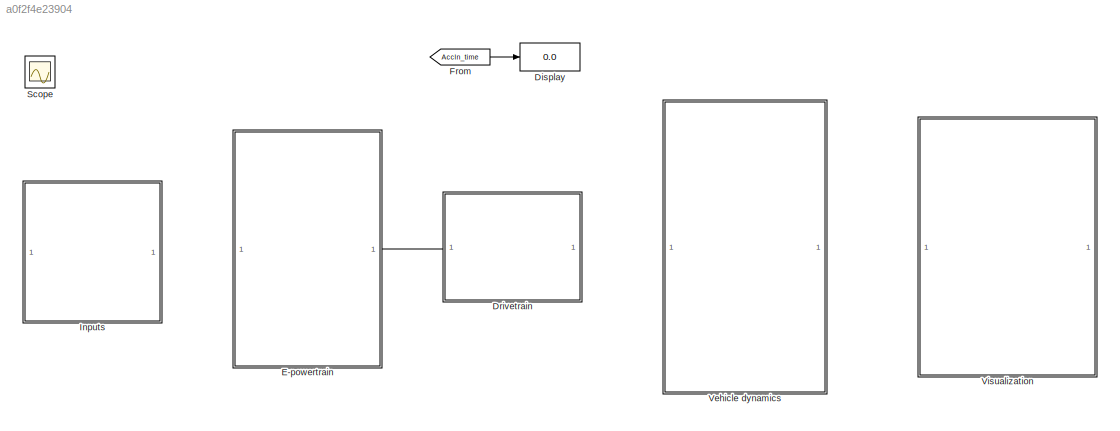
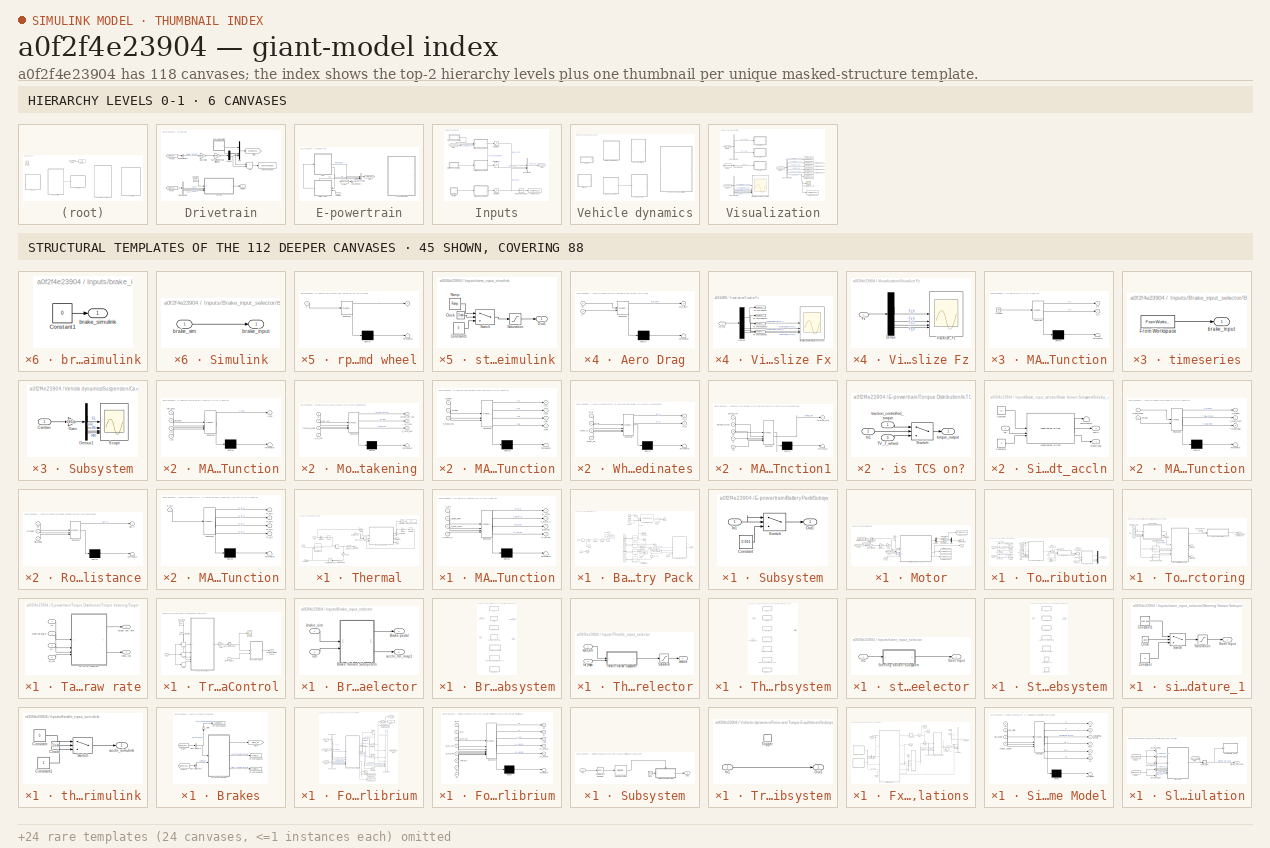
[diagram: thumbnail index - top-2 hierarchy levels (6 canvases) + 45 structural-template representatives of the remaining 112 canvases]
MODEL slx_a0f2f4e23904
KIND model
CONFIG AbsTol = auto
CONFIG EnableMultiTasking = off
CONFIG FixedStep = auto
CONFIG MaxStep = 0.001
CONFIG MinStep = auto
CONFIG RelTol = 1e-3
CONFIG SampleTimeConstraint = Unconstrained
CONFIG SolverName = ode23tb
CONFIG StartTime = 0.0
CONFIG StopTime = 20
BLOCK [Display] Display
  Decimation = 1
BLOCK [SubSystem] Drivetrain
  PortSchema = {"entries":[{"content":{"sides":[{"content":{"connectorIds":["Out1"]},"type":"ConnectorPlacement.EquallySpacedRectSide","uuid":"f91cf200-6219-4a1f-80fc-b884c938b97c"},{"content":{"side":"RIGHT"},"type":"ConnectorPlacement.EquallySpacedRectSide","uuid":"1ef2f2a3-0f7e-4e07-a3c9-4fbc06387d99"},{"content":{"side":"TOP"},"type":"ConnectorPlacement.EquallySpacedRectSide","uuid":"4c772986-3ff5-4393-833e-...<+199ch>
BLOCK [Sum] Drivetrain/Add
  IconShape = rectangular
BLOCK [BusSelector] Drivetrain/Bus Selector
  OutputSignals = SoC,Omega,I_dc
BLOCK [BusSelector] Drivetrain/Bus Selector1
  OutputSignals = Motor_torque
BLOCK [Constant] Drivetrain/Constant
  Value = 298
BLOCK [Demux] Drivetrain/Demux
  Outputs = 2
BLOCK [From] Drivetrain/From
  GotoTag = Motor_bus
  TagVisibility = global
BLOCK [From] Drivetrain/From1
  GotoTag = Motor_bus
  TagVisibility = global
BLOCK [Gain] Drivetrain/Gear Ratio
  Gain = Motor.gear_ratio
  NameLocation = top
BLOCK [Goto] Drivetrain/Goto
  GotoTag = Wheel_torques
  TagVisibility = global
BLOCK [SubSystem] Drivetrain/MATLAB Function
  ErrorFcn = Stateflow.Translate.translate
  PermitHierarchicalResolution = ExplicitOnly
  SFBlockType = MATLAB Function
  TreatAsAtomicUnit = on
BLOCK [Demux] Drivetrain/MATLAB Function/ Demux 
  Outputs = 1
BLOCK [Ground] Drivetrain/MATLAB Function/ Ground 
BLOCK [S-Function] Drivetrain/MATLAB Function/ SFunction 
  EnableBusSupport = off
  FunctionName = sf_sfun
  PortCounts = [1 3]
  SFcnIsStateOwnerBlock = off
  SFunctionDeploymentMode = off
  Tag = Stateflow S-Function 40
BLOCK [Terminator] Drivetrain/MATLAB Function/ Terminator 
BLOCK [Outport] Drivetrain/MATLAB Function/T_fl
BLOCK [Outport] Drivetrain/MATLAB Function/T_fr
  Port = 2
BLOCK [Mux] Drivetrain/Mux
  DisplayOption = bar
BLOCK [Gain] Drivetrain/Overall Powertrain Efficiency
  Gain = Motor.overall_efficiency
BLOCK [Outport] Drivetrain/Temp in K
  NameLocation = top
BLOCK [SubSystem] Drivetrain/Thermal
BLOCK [Lookup_n-D] Drivetrain/Thermal/1-D Lookup Table
  BreakpointsForDimension1 = [0 5000 10000 12500 15000 20000]
  InputPortMap = u0
  InternalRulePriority = Speed
  NumberOfTableDimensions = 1
  RndMeth = Simplest
  Table = [0 105 230 300 310 315]
BLOCK [Gain] Drivetrain/Thermal/1//(Mcp)
  Gain = 1/(2.8*450)
BLOCK [Gain] Drivetrain/Thermal/1//mCp
  Gain = 1/(Battery.Mass_kg*Battery.SpecificHeat)
  NameLocation = left
BLOCK [Inport] Drivetrain/Thermal/Ambient Temp
BLOCK [Integrator] Drivetrain/Thermal/Energy(J)
BLOCK [Gain] Drivetrain/Thermal/Gain
  Gain = sqrt(2)
BLOCK [Goto] Drivetrain/Thermal/Goto
  GotoTag = Kt
  TagVisibility = global
BLOCK [Gain] Drivetrain/Thermal/I per cell
  Gain = 1/Battery.Np
BLOCK [Inport] Drivetrain/Thermal/I_dc
  Port = 4
BLOCK [Integrator] Drivetrain/Thermal/Integrator
BLOCK [Math] Drivetrain/Thermal/Isq
  Operator = square
BLOCK [SubSystem] Drivetrain/Thermal/MATLAB Function
  ErrorFcn = Stateflow.Translate.translate
  PermitHierarchicalResolution = ExplicitOnly
  SFBlockType = MATLAB Function
  TreatAsAtomicUnit = on
BLOCK [Demux] Drivetrain/Thermal/MATLAB Function/ Demux 
  Outputs = 1
BLOCK [S-Function] Drivetrain/Thermal/MATLAB Function/ SFunction 
  EnableBusSupport = off
  FunctionName = sf_sfun
  PortCounts = [4 5]
  SFcnIsStateOwnerBlock = off
  SFunctionDeploymentMode = off
  Tag = Stateflow S-Function 26
BLOCK [Terminator] Drivetrain/Thermal/MATLAB Function/ Terminator 
BLOCK [Inport] Drivetrain/Thermal/MATLAB Function/I_rms
BLOCK [Inport] Drivetrain/Thermal/MATLAB Function/P_iron_rotor
  Port = 3
BLOCK [Outport] Drivetrain/Thermal/MATLAB Function/Q_total
BLOCK [Outport] Drivetrain/Thermal/MATLAB Function/R_actual
  Port = 3
BLOCK [Inport] Drivetrain/Thermal/MATLAB Function/Speed_RPM
  Port = 2
BLOCK [Outport] Drivetrain/Thermal/MATLAB Function/T_motor_C
  Port = 2
BLOCK [Inport] Drivetrain/Thermal/MATLAB Function/T_motor_K
  Port = 4
BLOCK [Outport] Drivetrain/Thermal/MATLAB Function/kt_actual
  Port = 4
BLOCK [Inport] Drivetrain/Thermal/Motor speed
  Port = 3
BLOCK [Product] Drivetrain/Thermal/Qgen
BLOCK [Lookup_n-D] Drivetrain/Thermal/Resistance
  BreakpointsForDimension1 = Battery.SoC_vec
  BreakpointsForDimension2 = Battery.T_vec
  InputPortMap = u0,u1
  InternalRulePriority = Speed
  RndMeth = Simplest
  Table = Battery.R0_map+Battery.R1_map
BLOCK [Inport] Drivetrain/Thermal/SoC
  Port = 2
BLOCK [Outport] Drivetrain/Thermal/Temp in K
BLOCK [Integrator] Drivetrain/Thermal/Temp in K 
  InitialCondition = 293.15
  LimitOutput = on
  LowerSaturationLimit = 293.15
  UpperSaturationLimit = 423.15
BLOCK [Terminator] Drivetrain/Thermal/Terminator
BLOCK [Terminator] Drivetrain/Thermal/Terminator1
BLOCK [Terminator] Drivetrain/Thermal/Terminator2
BLOCK [Display] Drivetrain/Thermal/Total_Heat_Joules
  Decimation = 1
BLOCK [Integrator] Drivetrain/Thermal/motor winding temp
  InitialCondition = 298.15
  InitialConditionSource = external
BLOCK [ToWorkspace] Drivetrain/To Workspace
  FixptAsFi = on
  MaxDataPoints = inf
  SampleTime = -1
  SaveFormat = Timeseries
  VariableName = Total_wheel_torque
BLOCK [SubSystem] E-powertrain
  PortSchema = {"entries":[{"content":{"sides":[{"content":{},"type":"ConnectorPlacement.EquallySpacedRectSide","uuid":"2fbe1a29-d7e0-46b2-8acf-c3c60596dfc1"},{"content":{"connectorIds":["In1"],"side":"RIGHT"},"type":"ConnectorPlacement.EquallySpacedRectSide","uuid":"5e79f07f-e655-4956-8ef7-fa1f6819f89c"},{"content":{"side":"TOP"},"type":"ConnectorPlacement.EquallySpacedRectSide","uuid":"1ad69596-8b46-43d7-b59f-...<+199ch>
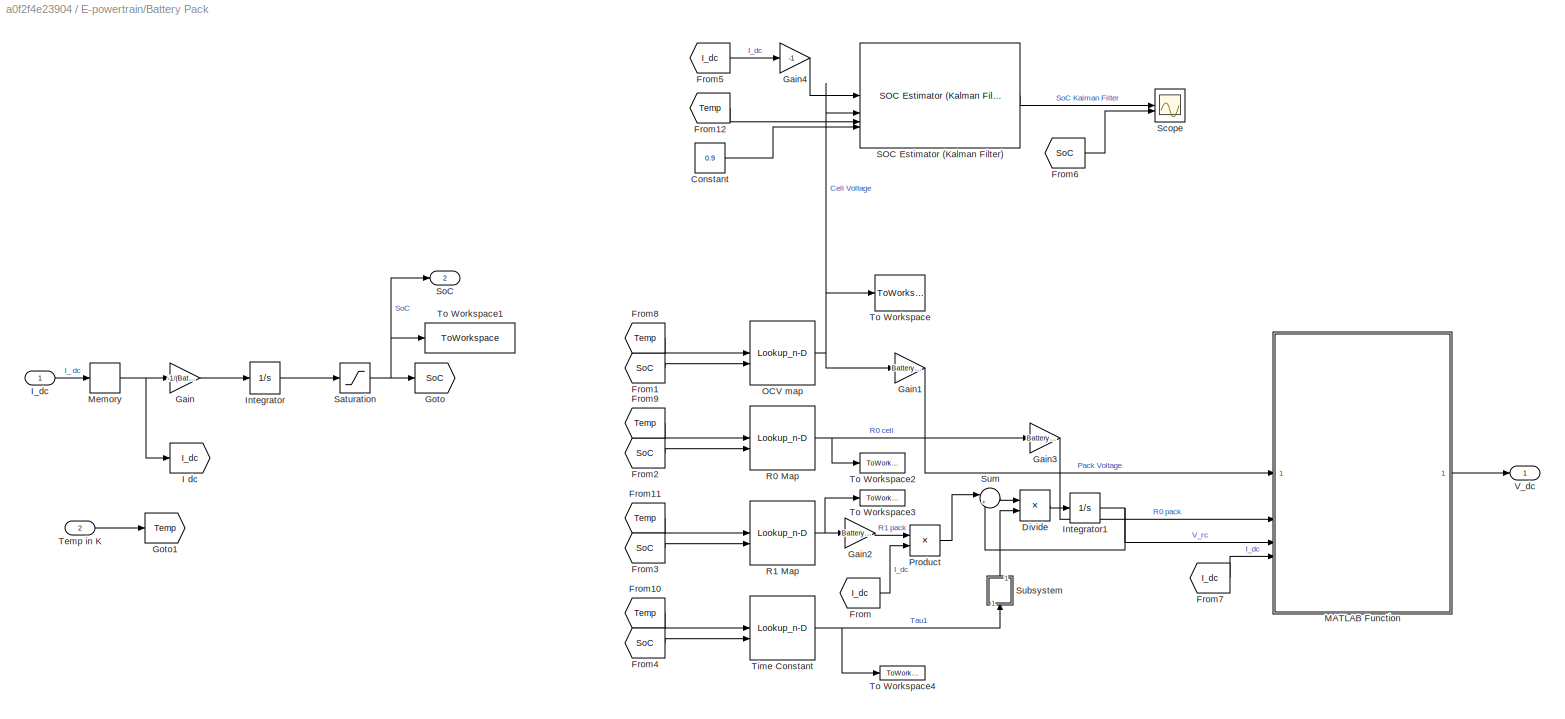
BLOCK [SubSystem] E-powertrain/Battery Pack
  PortSchema = {"entries":[{"content":{"sides":[{"content":{"connectorIds":["In1","Out2","In2"]},"type":"ConnectorPlacement.EquallySpacedRectSide","uuid":"a12b09be-87e3-41a8-9cce-cb6644b5ba86"},{"content":{"connectorIds":["Out1"],"side":"RIGHT"},"type":"ConnectorPlacement.EquallySpacedRectSide","uuid":"19bc61ba-c6fa-40ce-bed9-9c9078ba9fa2"},{"content":{"side":"TOP"},"type":"ConnectorPlacement.EquallySpacedRectSi...<+235ch>
  ShowPortLabels = FromPortBlockName
BLOCK [Constant] E-powertrain/Battery Pack/Constant
  Value = 0.9
BLOCK [Product] E-powertrain/Battery Pack/Divide
  Inputs = */
BLOCK [From] E-powertrain/Battery Pack/From
  GotoTag = I_dc
BLOCK [From] E-powertrain/Battery Pack/From1
  GotoTag = SoC
BLOCK [From] E-powertrain/Battery Pack/From10
  GotoTag = Temp
BLOCK [From] E-powertrain/Battery Pack/From11
  GotoTag = Temp
BLOCK [From] E-powertrain/Battery Pack/From12
  GotoTag = Temp
BLOCK [From] E-powertrain/Battery Pack/From2
  GotoTag = SoC
BLOCK [From] E-powertrain/Battery Pack/From3
  GotoTag = SoC
BLOCK [From] E-powertrain/Battery Pack/From4
  GotoTag = SoC
BLOCK [From] E-powertrain/Battery Pack/From5
  GotoTag = I_dc
BLOCK [From] E-powertrain/Battery Pack/From6
  GotoTag = SoC
BLOCK [From] E-powertrain/Battery Pack/From7
  GotoTag = I_dc
BLOCK [From] E-powertrain/Battery Pack/From8
  GotoTag = Temp
BLOCK [From] E-powertrain/Battery Pack/From9
  GotoTag = Temp
BLOCK [Gain] E-powertrain/Battery Pack/Gain
  Gain = -1/(Battery.Capacity_Ah*Battery.Np*3600)
BLOCK [Gain] E-powertrain/Battery Pack/Gain1
  Gain = Battery.Ns
BLOCK [Gain] E-powertrain/Battery Pack/Gain2
  Gain = Battery.Ns/Battery.Np
BLOCK [Gain] E-powertrain/Battery Pack/Gain3
  Gain = Battery.Ns/Battery.Np
BLOCK [Gain] E-powertrain/Battery Pack/Gain4
  Gain = -1
BLOCK [Goto] E-powertrain/Battery Pack/Goto
  GotoTag = SoC
BLOCK [Goto] E-powertrain/Battery Pack/Goto1
  GotoTag = Temp
BLOCK [Goto] E-powertrain/Battery Pack/I dc
  GotoTag = I_dc
BLOCK [Inport] E-powertrain/Battery Pack/I_dc
BLOCK [Integrator] E-powertrain/Battery Pack/Integrator
  InitialCondition = 1
BLOCK [Integrator] E-powertrain/Battery Pack/Integrator1
BLOCK [SubSystem] E-powertrain/Battery Pack/MATLAB Function
  ErrorFcn = Stateflow.Translate.translate
  PermitHierarchicalResolution = ExplicitOnly
  SFBlockType = MATLAB Function
  TreatAsAtomicUnit = on
BLOCK [Demux] E-powertrain/Battery Pack/MATLAB Function/ Demux 
  Outputs = 1
BLOCK [S-Function] E-powertrain/Battery Pack/MATLAB Function/ SFunction 
  EnableBusSupport = off
  FunctionName = sf_sfun
  PortCounts = [4 2]
  SFcnIsStateOwnerBlock = off
  SFunctionDeploymentMode = off
  Tag = Stateflow S-Function 1
BLOCK [Terminator] E-powertrain/Battery Pack/MATLAB Function/ Terminator 
BLOCK [Inport] E-powertrain/Battery Pack/MATLAB Function/I_dc
  Port = 4
BLOCK [Inport] E-powertrain/Battery Pack/MATLAB Function/R0_pack
  Port = 2
BLOCK [Inport] E-powertrain/Battery Pack/MATLAB Function/V_rc
  Port = 3
BLOCK [Inport] E-powertrain/Battery Pack/MATLAB Function/Voc_pack
BLOCK [Outport] E-powertrain/Battery Pack/MATLAB Function/v_bus
BLOCK [Memory] E-powertrain/Battery Pack/Memory
BLOCK [Lookup_n-D] E-powertrain/Battery Pack/OCV map
  BreakpointsForDimension1 = Battery.T_vec
  BreakpointsForDimension2 = Battery.SoC_vec
  InputPortMap = u0,u1
  InternalRulePriority = Speed
  RndMeth = Simplest
  Table = Battery.OCV_map'
BLOCK [Product] E-powertrain/Battery Pack/Product
BLOCK [Lookup_n-D] E-powertrain/Battery Pack/R0 Map
  BreakpointsForDimension1 = Battery.T_vec
  BreakpointsForDimension2 = Battery.SoC_vec
  InputPortMap = u0,u1
  InternalRulePriority = Speed
  RndMeth = Simplest
  Table = Battery.R0_map'
BLOCK [Lookup_n-D] E-powertrain/Battery Pack/R1 Map
  BreakpointsForDimension1 = Battery.T_vec
  BreakpointsForDimension2 = Battery.SoC_vec
  InputPortMap = u0,u1
  InternalRulePriority = Speed
  RndMeth = Simplest
  Table = Battery.R1_map'
BLOCK [Reference] E-powertrain/Battery Pack/SOC Estimator (Kalman Filter)  REF=BatteryEstimators/SOC Estimator
(Kalman Filter)
  SourceBlock = BatteryEstimators/SOC Estimator\n(Kalman Filter)
  SourceType = SOC Estimator (Kalman Filter)
BLOCK [Saturate] E-powertrain/Battery Pack/Saturation
  LowerLimit = 0
  UpperLimit = 1
BLOCK [Scope] E-powertrain/Battery Pack/Scope
  ActiveDisplayYMaximum = 0.90245265023893717
  ActiveDisplayYMinimum = 0.87799639857607525
  ContainerLayout = {"WindowBounds":[213.33333333333326,149.33333333333326,1280,768],"gridDimensions":{"w":1,"h":1},"tileCount":1,"tileCoverage":1,"columnWeights":1,"rowWeights":1,"tileOccupancy":{}}
  DataLoggingVariableName = ScopeData8
  Floating = off
  GraphicalSettings = {"Style":{"BackgroundColor":[0.12549019607843137,0.12549019607843137,0.12549019607843137],"AxesColor":[0.06666666666666667,0.06666666666666667,0.06666666666666667],"LabelsColor":[0.8509803921568627,0.8509803921568627,0.8509803921568627],"PreserveColors":false,"Visible":[true,true],"LineStyle":["-","-"],"LineWidth":[1.5,1.5],"BarWidth":[0.9,0.9],"LineColor":["auto","auto"],"LineFaceAlpha":[1,1],"Li...<+2359ch>
  LayoutDimensionsString = [2 1]
  MultipleDisplayCache = [{"MaxYLimMag":0.90245265023893717,"MaxYLimReal":0.90245265023893717,"MinYLimMag":0.87799639857607525,"MinYLimReal":0.87799639857607525,"PlotAsMagnitudePhase":false,"ShowGrid":true,"ShowLegend":false,"Title":"%<SignalLabel>","YLabel":""},{"MaxYLimMag":1.0008471829163377,"MaxYLimReal":1.0008471829163377,"MinYLimMag":0.99237535375296027,"MinYLimReal":0.99237535375296027,"PlotAsMagnitudePhase":false,...<+73ch>
  NumInputPorts = 2
  ScopeFrameLocation = window
  WasSavedAsWebScope = on
  WindowPosition = [1.000000,1.000000,1536.000000,841.000000,]
BLOCK [Outport] E-powertrain/Battery Pack/SoC
  Port = 2
BLOCK [SubSystem] E-powertrain/Battery Pack/Subsystem
  NameLocation = right
BLOCK [Constant] E-powertrain/Battery Pack/Subsystem/Constant
  Value = 0.001
BLOCK [Inport] E-powertrain/Battery Pack/Subsystem/In1
BLOCK [Outport] E-powertrain/Battery Pack/Subsystem/Out1
BLOCK [Switch] E-powertrain/Battery Pack/Subsystem/Switch
  Criteria = u2 > Threshold
  InputSameDT = off
  SaturateOnIntegerOverflow = off
BLOCK [Sum] E-powertrain/Battery Pack/Sum
  Inputs = |+-
BLOCK [Inport] E-powertrain/Battery Pack/Temp in K
  Port = 2
BLOCK [Lookup_n-D] E-powertrain/Battery Pack/Time Constant
  BreakpointsForDimension1 = Battery.T_vec
  BreakpointsForDimension2 = Battery.SoC_vec
  InputPortMap = u0,u1
  InternalRulePriority = Speed
  RndMeth = Simplest
  Table = Battery.Tau_map'
BLOCK [ToWorkspace] E-powertrain/Battery Pack/To Workspace
  FixptAsFi = on
  MaxDataPoints = inf
  SampleTime = -1
  SaveFormat = Timeseries
  VariableName = cell_volt
BLOCK [ToWorkspace] E-powertrain/Battery Pack/To Workspace1
  FixptAsFi = on
  MaxDataPoints = inf
  SampleTime = -1
  SaveFormat = Timeseries
  VariableName = SoC
BLOCK [ToWorkspace] E-powertrain/Battery Pack/To Workspace2
  FixptAsFi = on
  MaxDataPoints = inf
  SampleTime = -1
  SaveFormat = Timeseries
  VariableName = R0_cell
BLOCK [ToWorkspace] E-powertrain/Battery Pack/To Workspace3
  FixptAsFi = on
  MaxDataPoints = inf
  SampleTime = -1
  SaveFormat = Timeseries
  VariableName = R1_cell
BLOCK [ToWorkspace] E-powertrain/Battery Pack/To Workspace4
  FixptAsFi = on
  MaxDataPoints = inf
  SampleTime = -1
  SaveFormat = Timeseries
  VariableName = Tou_1
BLOCK [Outport] E-powertrain/Battery Pack/V_dc
BLOCK [BusCreator] E-powertrain/Bus Creator
  DisplayOption = bar
  InheritFromInputs = on
  Inputs = 4
BLOCK [BusSelector] E-powertrain/Bus Selector4
  OutputSignals = Omega
BLOCK [From] E-powertrain/From
  GotoTag = Wheel_bus
  TagVisibility = global
BLOCK [Goto] E-powertrain/Goto
  GotoTag = Motor_bus
  TagVisibility = global
BLOCK [SubSystem] E-powertrain/Motor
  ShowPortLabels = FromPortBlockName
BLOCK [BusSelector] E-powertrain/Motor/Bus Selector
  OutputSignals = Throttle_input
BLOCK [BusSelector] E-powertrain/Motor/Bus Selector1
  OutputSignals = Omega
BLOCK [Demux] E-powertrain/Motor/Demux
  Outputs = 2
BLOCK [Gain] E-powertrain/Motor/Efficiency
  Gain = 0.98
BLOCK [From] E-powertrain/Motor/From
  GotoTag = Kt
  TagVisibility = global
BLOCK [From] E-powertrain/Motor/From1
  GotoTag = Input_bus
  TagVisibility = global
BLOCK [From] E-powertrain/Motor/From2
  GotoTag = Wheel_bus
  TagVisibility = global
BLOCK [Gain] E-powertrain/Motor/Gain
  Gain = 60/(2*pi)
BLOCK [Outport] E-powertrain/Motor/I_dc
  Port = 2
BLOCK [Outport] E-powertrain/Motor/Motor Torque
BLOCK [SubSystem] E-powertrain/Motor/Motor with Field Weakening
  ErrorFcn = Stateflow.Translate.translate
  PermitHierarchicalResolution = ExplicitOnly
  SFBlockType = MATLAB Function
  TreatAsAtomicUnit = on
BLOCK [Demux] E-powertrain/Motor/Motor with Field Weakening/ Demux 
  Outputs = 1
BLOCK [S-Function] E-powertrain/Motor/Motor with Field Weakening/ SFunction 
  EnableBusSupport = off
  FunctionName = sf_sfun
  Parameters = Motor
  PortCounts = [4 4]
  SFcnIsStateOwnerBlock = off
  SFunctionDeploymentMode = off
  Tag = Stateflow S-Function 2
BLOCK [Terminator] E-powertrain/Motor/Motor with Field Weakening/ Terminator 
BLOCK [Outport] E-powertrain/Motor/Motor with Field Weakening/I_dc_total
  Port = 2
BLOCK [Outport] E-powertrain/Motor/Motor with Field Weakening/P_total_sum
  Port = 3
BLOCK [Outport] E-powertrain/Motor/Motor with Field Weakening/Torque_Nm_vec
BLOCK [Inport] E-powertrain/Motor/Motor with Field Weakening/kt
BLOCK [Inport] E-powertrain/Motor/Motor with Field Weakening/rpm_4x1
  Port = 2
BLOCK [Inport] E-powertrain/Motor/Motor with Field Weakening/throttle_scalar
  Port = 3
BLOCK [Inport] E-powertrain/Motor/Motor with Field Weakening/v_dc_bus
  Port = 4
BLOCK [Mux] E-powertrain/Motor/Mux
  DisplayOption = bar
  Inputs = 2
BLOCK [ToWorkspace] E-powertrain/Motor/To Workspace
  FixptAsFi = on
  MaxDataPoints = inf
  SampleTime = -1
  SaveFormat = Timeseries
  VariableName = motor_torque
BLOCK [ToWorkspace] E-powertrain/Motor/To Workspace1
  FixptAsFi = on
  MaxDataPoints = inf
  SampleTime = -1
  SaveFormat = Timeseries
  VariableName = motor_rpm
BLOCK [ToWorkspace] E-powertrain/Motor/To Workspace2
  FixptAsFi = on
  MaxDataPoints = inf
  SampleTime = -1
  SaveFormat = Timeseries
  VariableName = Mechanical_power
BLOCK [ToWorkspace] E-powertrain/Motor/To Workspace3
  FixptAsFi = on
  MaxDataPoints = inf
  SampleTime = -1
  SaveFormat = Timeseries
  VariableName = Motor_current
BLOCK [TransferFcn] E-powertrain/Motor/Transfer Fcn
  Denominator = [Motor.tau_el 1]
BLOCK [TransferFcn] E-powertrain/Motor/Transfer Fcn1
  Denominator = [Motor.tau_el 1]
BLOCK [Gain] E-powertrain/Motor/Wheel to Motor
  Gain = 10.05
BLOCK [SubSystem] E-powertrain/Motor/rpm selection for third wheel
  ErrorFcn = Stateflow.Translate.translate
  NameLocation = top
  PermitHierarchicalResolution = ExplicitOnly
  SFBlockType = MATLAB Function
  TreatAsAtomicUnit = on
BLOCK [Demux] E-powertrain/Motor/rpm selection for third wheel/ Demux 
  Outputs = 1
BLOCK [S-Function] E-powertrain/Motor/rpm selection for third wheel/ SFunction 
  EnableBusSupport = off
  FunctionName = sf_sfun
  PortCounts = [1 2]
  SFcnIsStateOwnerBlock = off
  SFunctionDeploymentMode = off
  Tag = Stateflow S-Function 3
BLOCK [Terminator] E-powertrain/Motor/rpm selection for third wheel/ Terminator 
BLOCK [Inport] E-powertrain/Motor/rpm selection for third wheel/u
BLOCK [Outport] E-powertrain/Motor/rpm selection for third wheel/y
BLOCK [Inport] E-powertrain/Motor/v_dc
BLOCK [Inport] E-powertrain/Temp in K
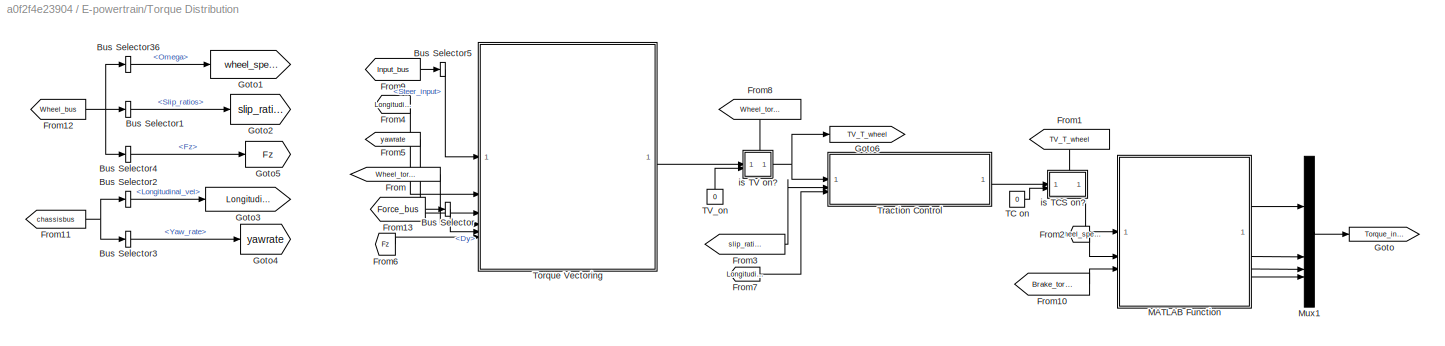
BLOCK [SubSystem] E-powertrain/Torque Distribution
BLOCK [BusSelector] E-powertrain/Torque Distribution/Bus Selector
  OutputSignals = Dy
BLOCK [BusSelector] E-powertrain/Torque Distribution/Bus Selector1
  OutputSignals = Slip_ratios
BLOCK [BusSelector] E-powertrain/Torque Distribution/Bus Selector2
  OutputSignals = Longitudinal_vel
BLOCK [BusSelector] E-powertrain/Torque Distribution/Bus Selector3
  OutputSignals = Yaw_rate
BLOCK [BusSelector] E-powertrain/Torque Distribution/Bus Selector36
  OutputSignals = Omega
BLOCK [BusSelector] E-powertrain/Torque Distribution/Bus Selector4
  OutputSignals = Fz
BLOCK [BusSelector] E-powertrain/Torque Distribution/Bus Selector5
  OutputSignals = Steer_input
BLOCK [From] E-powertrain/Torque Distribution/From
  GotoTag = Wheel_torques
  TagVisibility = global
BLOCK [From] E-powertrain/Torque Distribution/From1
  GotoTag = TV_T_wheel
  NameLocation = right
BLOCK [From] E-powertrain/Torque Distribution/From10
  GotoTag = Brake_torques
  TagVisibility = global
BLOCK [From] E-powertrain/Torque Distribution/From11
  GotoTag = chassisbus
  TagVisibility = global
BLOCK [From] E-powertrain/Torque Distribution/From12
  GotoTag = Wheel_bus
  TagVisibility = global
BLOCK [From] E-powertrain/Torque Distribution/From13
  GotoTag = Force_bus
  TagVisibility = global
BLOCK [From] E-powertrain/Torque Distribution/From2
  GotoTag = wheel_speed
BLOCK [From] E-powertrain/Torque Distribution/From3
  GotoTag = slip_ratios
BLOCK [From] E-powertrain/Torque Distribution/From4
  GotoTag = Longitudinal_vel
BLOCK [From] E-powertrain/Torque Distribution/From5
  GotoTag = yawrate
BLOCK [From] E-powertrain/Torque Distribution/From6
  GotoTag = Fz
BLOCK [From] E-powertrain/Torque Distribution/From7
  GotoTag = Longitudinal_vel
BLOCK [From] E-powertrain/Torque Distribution/From8
  GotoTag = Wheel_torques
  NameLocation = right
  TagVisibility = global
BLOCK [From] E-powertrain/Torque Distribution/From9
  GotoTag = Input_bus
  TagVisibility = global
BLOCK [Goto] E-powertrain/Torque Distribution/Goto
  GotoTag = Torque_inputs
  TagVisibility = global
BLOCK [Goto] E-powertrain/Torque Distribution/Goto1
  GotoTag = wheel_speed
BLOCK [Goto] E-powertrain/Torque Distribution/Goto2
  GotoTag = slip_ratios
BLOCK [Goto] E-powertrain/Torque Distribution/Goto3
  GotoTag = Longitudinal_vel
BLOCK [Goto] E-powertrain/Torque Distribution/Goto4
  GotoTag = yawrate
BLOCK [Goto] E-powertrain/Torque Distribution/Goto5
  GotoTag = Fz
BLOCK [Goto] E-powertrain/Torque Distribution/Goto6
  GotoTag = TV_T_wheel
BLOCK [SubSystem] E-powertrain/Torque Distribution/MATLAB Function
  ErrorFcn = Stateflow.Translate.translate
  PermitHierarchicalResolution = ExplicitOnly
  SFBlockType = MATLAB Function
  TreatAsAtomicUnit = on
BLOCK [Demux] E-powertrain/Torque Distribution/MATLAB Function/ Demux 
  Outputs = 1
BLOCK [S-Function] E-powertrain/Torque Distribution/MATLAB Function/ SFunction 
  EnableBusSupport = off
  FunctionName = sf_sfun
  PortCounts = [3 5]
  SFcnIsStateOwnerBlock = off
  SFunctionDeploymentMode = off
  Tag = Stateflow S-Function 12
BLOCK [Terminator] E-powertrain/Torque Distribution/MATLAB Function/ Terminator 
BLOCK [Outport] E-powertrain/Torque Distribution/MATLAB Function/T_FL
BLOCK [Outport] E-powertrain/Torque Distribution/MATLAB Function/T_FR
  Port = 2
BLOCK [Outport] E-powertrain/Torque Distribution/MATLAB Function/T_RL
  Port = 3
BLOCK [Outport] E-powertrain/Torque Distribution/MATLAB Function/T_RR
  Port = 4
BLOCK [Inport] E-powertrain/Torque Distribution/MATLAB Function/T_brake_vec
  Port = 3
BLOCK [Inport] E-powertrain/Torque Distribution/MATLAB Function/T_wheel
BLOCK [Inport] E-powertrain/Torque Distribution/MATLAB Function/omega
  Port = 2
BLOCK [Mux] E-powertrain/Torque Distribution/Mux1
  DisplayOption = bar
BLOCK [Constant] E-powertrain/Torque Distribution/TC on
  Value = 0
BLOCK [Constant] E-powertrain/Torque Distribution/TV_on
  Value = 0
BLOCK [SubSystem] E-powertrain/Torque Distribution/Torque Vectoring
BLOCK [Lookup_n-D] E-powertrain/Torque Distribution/Torque Vectoring/1-D Lookup Table1
  BreakpointsForDimension1 = vx_breakpoints
  Commented = on
  InputPortMap = u0
  InternalRulePriority = Speed
  NumberOfTableDimensions = 1
  RndMeth = Simplest
  Table = Kp_data
BLOCK [Lookup_n-D] E-powertrain/Torque Distribution/Torque Vectoring/1-D Lookup Table2
  BreakpointsForDimension1 = vx_breakpoints
  Commented = on
  InputPortMap = u0
  InternalRulePriority = Speed
  NumberOfTableDimensions = 1
  RndMeth = Simplest
  Table = Ki_data
BLOCK [Inport] E-powertrain/Torque Distribution/Torque Vectoring/Dy
  NameLocation = left
  Port = 5
BLOCK [Inport] E-powertrain/Torque Distribution/Torque Vectoring/Fz
  NameLocation = left
  Port = 6
BLOCK [SubSystem] E-powertrain/Torque Distribution/Torque Vectoring/MATLAB Function
  ErrorFcn = Stateflow.Translate.translate
  PermitHierarchicalResolution = ExplicitOnly
  SFBlockType = MATLAB Function
  TreatAsAtomicUnit = on
BLOCK [Demux] E-powertrain/Torque Distribution/Torque Vectoring/MATLAB Function/ Demux 
  Outputs = 1
BLOCK [S-Function] E-powertrain/Torque Distribution/Torque Vectoring/MATLAB Function/ SFunction 
  EnableBusSupport = off
  FunctionName = sf_sfun
  Parameters = Motor,Par
  PortCounts = [2 2]
  SFcnIsStateOwnerBlock = off
  SFunctionDeploymentMode = off
  Tag = Stateflow S-Function 13
BLOCK [Terminator] E-powertrain/Torque Distribution/Torque Vectoring/MATLAB Function/ Terminator 
BLOCK [Outport] E-powertrain/Torque Distribution/Torque Vectoring/MATLAB Function/vectored_torques
BLOCK [Inport] E-powertrain/Torque Distribution/Torque Vectoring/MATLAB Function/wheel_torques
BLOCK [Inport] E-powertrain/Torque Distribution/Torque Vectoring/MATLAB Function/yaw_moment
  Port = 2
BLOCK [SubSystem] E-powertrain/Torque Distribution/Torque Vectoring/PID controller in time domain
  ErrorFcn = Stateflow.Translate.translate
  PermitHierarchicalResolution = ExplicitOnly
  SFBlockType = MATLAB Function
  SystemSampleTime = 0.001
  TreatAsAtomicUnit = on
BLOCK [Demux] E-powertrain/Torque Distribution/Torque Vectoring/PID controller in time domain/ Demux 
  Outputs = 1
BLOCK [S-Function] E-powertrain/Torque Distribution/Torque Vectoring/PID controller in time domain/ SFunction 
  EnableBusSupport = off
  FunctionName = sf_sfun
  Parameters = Motor,Par
  PortCounts = [4 4]
  SFcnIsStateOwnerBlock = off
  SFunctionDeploymentMode = off
  Tag = Stateflow S-Function 14
BLOCK [Terminator] E-powertrain/Torque Distribution/Torque Vectoring/PID controller in time domain/ Terminator 
BLOCK [Inport] E-powertrain/Torque Distribution/Torque Vectoring/PID controller in time domain/Ki
  Port = 4
BLOCK [Inport] E-powertrain/Torque Distribution/Torque Vectoring/PID controller in time domain/Kp
  Port = 3
BLOCK [Outport] E-powertrain/Torque Distribution/Torque Vectoring/PID controller in time domain/error
  Port = 3
BLOCK [Inport] E-powertrain/Torque Distribution/Torque Vectoring/PID controller in time domain/ref
BLOCK [Outport] E-powertrain/Torque Distribution/Torque Vectoring/PID controller in time domain/u_unsat
  Port = 2
BLOCK [Inport] E-powertrain/Torque Distribution/Torque Vectoring/PID controller in time domain/y
  Port = 2
BLOCK [Outport] E-powertrain/Torque Distribution/Torque Vectoring/PID controller in time domain/yaw_moment
BLOCK [SubSystem] E-powertrain/Torque Distribution/Torque Vectoring/Target yaw rate
  NameLocation = top
BLOCK [Inport] E-powertrain/Torque Distribution/Torque Vectoring/Target yaw rate/Dy
  Port = 3
BLOCK [Inport] E-powertrain/Torque Distribution/Torque Vectoring/Target yaw rate/Fz_4x1
  Port = 2
BLOCK [SubSystem] E-powertrain/Torque Distribution/Torque Vectoring/Target yaw rate/MATLAB Function
  ErrorFcn = Stateflow.Translate.translate
  PermitHierarchicalResolution = ExplicitOnly
  SFBlockType = MATLAB Function
  TreatAsAtomicUnit = on
BLOCK [Demux] E-powertrain/Torque Distribution/Torque Vectoring/Target yaw rate/MATLAB Function/ Demux 
  Outputs = 1
BLOCK [S-Function] E-powertrain/Torque Distribution/Torque Vectoring/Target yaw rate/MATLAB Function/ SFunction 
  EnableBusSupport = off
  FunctionName = sf_sfun
  Parameters = Par
  PortCounts = [4 3]
  SFcnIsStateOwnerBlock = off
  SFunctionDeploymentMode = off
  Tag = Stateflow S-Function 15
BLOCK [Terminator] E-powertrain/Torque Distribution/Torque Vectoring/Target yaw rate/MATLAB Function/ Terminator 
BLOCK [Inport] E-powertrain/Torque Distribution/Torque Vectoring/Target yaw rate/MATLAB Function/Dy
  Port = 3
BLOCK [Inport] E-powertrain/Torque Distribution/Torque Vectoring/Target yaw rate/MATLAB Function/Fz
  Port = 4
BLOCK [Inport] E-powertrain/Torque Distribution/Torque Vectoring/Target yaw rate/MATLAB Function/delta
  Port = 2
BLOCK [Outport] E-powertrain/Torque Distribution/Torque Vectoring/Target yaw rate/MATLAB Function/ideal_yaw
  Port = 2
BLOCK [Outport] E-powertrain/Torque Distribution/Torque Vectoring/Target yaw rate/MATLAB Function/target_yaw
BLOCK [Inport] E-powertrain/Torque Distribution/Torque Vectoring/Target yaw rate/MATLAB Function/vx
BLOCK [Outport] E-powertrain/Torque Distribution/Torque Vectoring/Target yaw rate/ideal_yaw
  Port = 2
BLOCK [Inport] E-powertrain/Torque Distribution/Torque Vectoring/Target yaw rate/steering angle
BLOCK [Outport] E-powertrain/Torque Distribution/Torque Vectoring/Target yaw rate/target yaw rate
BLOCK [Inport] E-powertrain/Torque Distribution/Torque Vectoring/Target yaw rate/vx
  Port = 4
BLOCK [Terminator] E-powertrain/Torque Distribution/Torque Vectoring/Terminator
BLOCK [Terminator] E-powertrain/Torque Distribution/Torque Vectoring/Terminator1
BLOCK [Terminator] E-powertrain/Torque Distribution/Torque Vectoring/Terminator2
BLOCK [Outport] E-powertrain/Torque Distribution/Torque Vectoring/Vectored Torque Commands
BLOCK [Inport] E-powertrain/Torque Distribution/Torque Vectoring/Wheel Torques
  NameLocation = top
  Port = 4
BLOCK [Inport] E-powertrain/Torque Distribution/Torque Vectoring/real yaw rate
  Port = 3
BLOCK [Inport] E-powertrain/Torque Distribution/Torque Vectoring/steering angle
  NameLocation = left
BLOCK [Inport] E-powertrain/Torque Distribution/Torque Vectoring/vx
  NameLocation = left
  Port = 2
BLOCK [SubSystem] E-powertrain/Torque Distribution/Traction Control
BLOCK [Constant] E-powertrain/Torque Distribution/Traction Control/Constant3
  Value = 0.07
BLOCK [Gain] E-powertrain/Torque Distribution/Traction Control/Gain3
  Gain = Motor.T_peak_limit * Motor.gear_ratio
BLOCK [Lookup_n-D] E-powertrain/Torque Distribution/Traction Control/KD1
  BreakpointsForDimension1 = [0, 55e-10, 0.0045, 2, 8.5,9]
  InputPortMap = u0
  InternalRulePriority = Speed
  NumberOfTableDimensions = 1
  RndMeth = Simplest
  Table = [0, 0, 0.0014, 0.0109,0,0]
BLOCK [Lookup_n-D] E-powertrain/Torque Distribution/Traction Control/KI1
  BreakpointsForDimension1 = [0; 55e-10;0.0045; 2; 8.5]
  InputPortMap = u0
  InternalRulePriority = Speed
  NumberOfTableDimensions = 1
  RndMeth = Simplest
  Table = [0.1; 0.1;700; 500; 450 ]
BLOCK [Lookup_n-D] E-powertrain/Torque Distribution/Traction Control/KP1
  BreakpointsForDimension1 = [0; 55e-10; 0.0045; 2; 8.5]
  InputPortMap = u0
  InternalRulePriority = Speed
  NameLocation = top
  NumberOfTableDimensions = 1
  RndMeth = Simplest
  Table = [ 0.5; 0.5; 2.5; 10; 10]
BLOCK [SubSystem] E-powertrain/Torque Distribution/Traction Control/MATLAB Function
  ErrorFcn = Stateflow.Translate.translate
  PermitHierarchicalResolution = ExplicitOnly
  SFBlockType = MATLAB Function
  TreatAsAtomicUnit = on
BLOCK [Demux] E-powertrain/Torque Distribution/Traction Control/MATLAB Function/ Demux 
  Outputs = 1
BLOCK [S-Function] E-powertrain/Torque Distribution/Traction Control/MATLAB Function/ SFunction 
  EnableBusSupport = off
  FunctionName = sf_sfun
  PortCounts = [1 2]
  SFcnIsStateOwnerBlock = off
  SFunctionDeploymentMode = off
  Tag = Stateflow S-Function 18
BLOCK [Terminator] E-powertrain/Torque Distribution/Traction Control/MATLAB Function/ Terminator 
BLOCK [Inport] E-powertrain/Torque Distribution/Traction Control/MATLAB Function/u
BLOCK [Outport] E-powertrain/Torque Distribution/Traction Control/MATLAB Function/y
BLOCK [SubSystem] E-powertrain/Torque Distribution/Traction Control/MATLAB Function1
  ErrorFcn = Stateflow.Translate.translate
  PermitHierarchicalResolution = ExplicitOnly
  SFBlockType = MATLAB Function
  SystemSampleTime = 0.001
  TreatAsAtomicUnit = on
BLOCK [Demux] E-powertrain/Torque Distribution/Traction Control/MATLAB Function1/ Demux 
  Outputs = 1
BLOCK [S-Function] E-powertrain/Torque Distribution/Traction Control/MATLAB Function1/ SFunction 
  EnableBusSupport = off
  FunctionName = sf_sfun
  PortCounts = [5 2]
  SFcnIsStateOwnerBlock = off
  SFunctionDeploymentMode = off
  Tag = Stateflow S-Function 17
BLOCK [Terminator] E-powertrain/Torque Distribution/Traction Control/MATLAB Function1/ Terminator 
BLOCK [Inport] E-powertrain/Torque Distribution/Traction Control/MATLAB Function1/Kd
  Port = 5
BLOCK [Inport] E-powertrain/Torque Distribution/Traction Control/MATLAB Function1/Ki
  Port = 4
BLOCK [Inport] E-powertrain/Torque Distribution/Traction Control/MATLAB Function1/Kp
  Port = 3
BLOCK [Inport] E-powertrain/Torque Distribution/Traction Control/MATLAB Function1/lambda_actual
  Port = 2
BLOCK [Inport] E-powertrain/Torque Distribution/Traction Control/MATLAB Function1/lambda_ref
BLOCK [Outport] E-powertrain/Torque Distribution/Traction Control/MATLAB Function1/throttle_cmd
BLOCK [SubSystem] E-powertrain/Torque Distribution/Traction Control/MATLAB Function2
  ErrorFcn = Stateflow.Translate.translate
  PermitHierarchicalResolution = ExplicitOnly
  SFBlockType = MATLAB Function
  TreatAsAtomicUnit = on
BLOCK [Demux] E-powertrain/Torque Distribution/Traction Control/MATLAB Function2/ Demux 
  Outputs = 1
BLOCK [S-Function] E-powertrain/Torque Distribution/Traction Control/MATLAB Function2/ SFunction 
  EnableBusSupport = off
  FunctionName = sf_sfun
  PortCounts = [2 2]
  SFcnIsStateOwnerBlock = off
  SFunctionDeploymentMode = off
  Tag = Stateflow S-Function 25
BLOCK [Terminator] E-powertrain/Torque Distribution/Traction Control/MATLAB Function2/ Terminator 
BLOCK [Outport] E-powertrain/Torque Distribution/Traction Control/MATLAB Function2/TC_output
BLOCK [Inport] E-powertrain/Torque Distribution/Traction Control/MATLAB Function2/torque_pid
BLOCK [Inport] E-powertrain/Torque Distribution/Traction Control/MATLAB Function2/torque_wheel
  Port = 2
BLOCK [Scope] E-powertrain/Torque Distribution/Traction Control/Scope1
  ActiveDisplayYMaximum = 1
  ActiveDisplayYMinimum = -1
  DataLoggingVariableName = ScopeData12
  Floating = off
  GraphicalSettings = {"Style":{"BackgroundColor":[0.12941176470588237,0.12941176470588237,0.12941176470588237],"AxesColor":[0.07058823529411765,0.07058823529411765,0.07058823529411765],"LabelsColor":[0.8509803921568627,0.8509803921568627,0.8509803921568627],"PreserveColors":false,"Visible":[true,true,true,true],"LineStyle":["-","-","-","-"],"LineWidth":[1.5,1.5,1.5,1.5],"BarWidth":[0.9,0.9,0.9,0.9],"LineColor":["auto"...<+2327ch>
  MultipleDisplayCache = [{"MaxYLimMag":1,"MaxYLimReal":1,"MinYLimMag":0,"MinYLimReal":-1,"PlotAsMagnitudePhase":false,"ShowGrid":true,"ShowLegend":false,"Title":"%<SignalLabel>","YLabel":""}]
  NumInputPorts = 1
  ScopeFrameLocation = window
  WasSavedAsWebScope = on
  WindowPosition = [1.000000,1.000000,1536.000000,841.000000,]
BLOCK [Inport] E-powertrain/Torque Distribution/Traction Control/Slip Ratios
  Port = 2
BLOCK [Outport] E-powertrain/Torque Distribution/Traction Control/Traction Controlled Torque
BLOCK [Inport] E-powertrain/Torque Distribution/Traction Control/Wheel Torque
  NameLocation = top
BLOCK [Inport] E-powertrain/Torque Distribution/Traction Control/vx
  Port = 3
BLOCK [SubSystem] E-powertrain/Torque Distribution/is TCS on?
  PortSchema = {"entries":[{"content":{"sides":[{"content":{"connectorIds":["In1","In2"]},"type":"ConnectorPlacement.EquallySpacedRectSide","uuid":"dc8df3c8-a53f-4de0-9df1-c7ce6985ad6f"},{"content":{"connectorIds":["Out1"],"side":"RIGHT"},"type":"ConnectorPlacement.EquallySpacedRectSide","uuid":"042501be-c855-4a6a-885a-a96d559db999"},{"content":{"connectorIds":["In3"],"side":"TOP"},"type":"ConnectorPlacement.Equ...<+251ch>
  ShowPortLabels = none
BLOCK [Inport] E-powertrain/Torque Distribution/is TCS on?/In1
  Port = 2
BLOCK [Switch] E-powertrain/Torque Distribution/is TCS on?/Switch
  Criteria = u2 > Threshold
  InputSameDT = off
  SaturateOnIntegerOverflow = off
BLOCK [Inport] E-powertrain/Torque Distribution/is TCS on?/TV_T_wheel
  Port = 3
BLOCK [Outport] E-powertrain/Torque Distribution/is TCS on?/torque_output
BLOCK [Inport] E-powertrain/Torque Distribution/is TCS on?/traction_controlled_torque
  NameLocation = top
BLOCK [SubSystem] E-powertrain/Torque Distribution/is TV on?
  PortSchema = {"entries":[{"content":{"sides":[{"content":{"connectorIds":["In1","In2"]},"type":"ConnectorPlacement.EquallySpacedRectSide","uuid":"dc8df3c8-a53f-4de0-9df1-c7ce6985ad6f"},{"content":{"connectorIds":["Out1"],"side":"RIGHT"},"type":"ConnectorPlacement.EquallySpacedRectSide","uuid":"042501be-c855-4a6a-885a-a96d559db999"},{"content":{"connectorIds":["In3"],"side":"TOP"},"type":"ConnectorPlacement.Equ...<+377ch>
  ShowPortLabels = none
BLOCK [Inport] E-powertrain/Torque Distribution/is TV on?/In1
  Port = 2
BLOCK [Switch] E-powertrain/Torque Distribution/is TV on?/Switch
  Criteria = u2 > Threshold
  InputSameDT = off
  SaturateOnIntegerOverflow = off
BLOCK [Outport] E-powertrain/Torque Distribution/is TV on?/torque_output
BLOCK [Inport] E-powertrain/Torque Distribution/is TV on?/vectored_torque
  NameLocation = top
BLOCK [Inport] E-powertrain/Torque Distribution/is TV on?/wheel_torque
  Port = 3
BLOCK [From] From
  GotoTag = Accln_time
  TagVisibility = global
BLOCK [SubSystem] Inputs
BLOCK [SubSystem] Inputs/Brake_input_selector
  NameLocation = top
  PortSchema = {"entries":[{"content":{"sides":[{"content":{"connectorIds":["In1","In2"]},"type":"ConnectorPlacement.EquallySpacedRectSide","uuid":"eae5282b-8d4e-4a76-acd5-b309529286e8"},{"content":{"connectorIds":["Out1"],"side":"RIGHT"},"type":"ConnectorPlacement.EquallySpacedRectSide","uuid":"e88b1ae5-ebac-4dec-84e3-4990dfef2a20"},{"content":{"side":"TOP"},"type":"ConnectorPlacement.EquallySpacedRectSide","uu...<+378ch>
  ShowPortLabels = none
BLOCK [SubSystem] Inputs/Brake_input_selector/Brake Variant Subsystem
  Variant = on
BLOCK [SubSystem] Inputs/Brake_input_selector/Brake Variant Subsystem/GGV
  VariantControl = Mode_ggv
BLOCK [Constant] Inputs/Brake_input_selector/Brake Variant Subsystem/GGV/Constant
  Value = Brake_Val
BLOCK [Outport] Inputs/Brake_input_selector/Brake Variant Subsystem/GGV/brake_input
BLOCK [SubSystem] Inputs/Brake_input_selector/Brake Variant Subsystem/Sideslip_vs_curvature_cst_accln
  VariantControl = Mode_sideslip_vs_curvature_cst_accln
BLOCK [Constant] Inputs/Brake_input_selector/Brake Variant Subsystem/Sideslip_vs_curvature_cst_accln/Constant
  Value = 10
BLOCK [Constant] Inputs/Brake_input_selector/Brake Variant Subsystem/Sideslip_vs_curvature_cst_accln/Constant3
  Value = 0
BLOCK [Reference] Inputs/Brake_input_selector/Brake Variant Subsystem/Sideslip_vs_curvature_cst_accln/Longitudinal Driver  REF=autolibshared/Longitudinal Driver
  LibrarySourceBlock = vehdynlibdriver/Longitudinal Driver
  SourceBlock = autolibshared/Longitudinal Driver
  SourceType = Longitudinal Driver
BLOCK [Terminator] Inputs/Brake_input_selector/Brake Variant Subsystem/Sideslip_vs_curvature_cst_accln/Terminator1
BLOCK [Outport] Inputs/Brake_input_selector/Brake Variant Subsystem/Sideslip_vs_curvature_cst_accln/accln
  Port = 2
BLOCK [Outport] Inputs/Brake_input_selector/Brake Variant Subsystem/Sideslip_vs_curvature_cst_accln/brake_input
BLOCK [Inport] Inputs/Brake_input_selector/Brake Variant Subsystem/Sideslip_vs_curvature_cst_accln/vel
BLOCK [SubSystem] Inputs/Brake_input_selector/Brake Variant Subsystem/Simulink
  VariantControl = Mode_simulink
BLOCK [Outport] Inputs/Brake_input_selector/Brake Variant Subsystem/Simulink/brake_input
BLOCK [Inport] Inputs/Brake_input_selector/Brake Variant Subsystem/Simulink/brake_sim
BLOCK [Outport] Inputs/Brake_input_selector/Brake Variant Subsystem/accln
  Port = 2
BLOCK [Outport] Inputs/Brake_input_selector/Brake Variant Subsystem/brake_input
BLOCK [Inport] Inputs/Brake_input_selector/Brake Variant Subsystem/brake_sim
BLOCK [SubSystem] Inputs/Brake_input_selector/Brake Variant Subsystem/curvature vs steer_angle
  VariantControl = Mode_curvature_vs_steer
BLOCK [Constant] Inputs/Brake_input_selector/Brake Variant Subsystem/curvature vs steer_angle/Constant
  Value = V_ref
BLOCK [Constant] Inputs/Brake_input_selector/Brake Variant Subsystem/curvature vs steer_angle/Constant3
  Value = 0
BLOCK [Reference] Inputs/Brake_input_selector/Brake Variant Subsystem/curvature vs steer_angle/Longitudinal Driver  REF=autolibshared/Longitudinal Driver
  LibrarySourceBlock = vehdynlibdriver/Longitudinal Driver
  SourceBlock = autolibshared/Longitudinal Driver
  SourceType = Longitudinal Driver
BLOCK [Terminator] Inputs/Brake_input_selector/Brake Variant Subsystem/curvature vs steer_angle/Terminator
BLOCK [Outport] Inputs/Brake_input_selector/Brake Variant Subsystem/curvature vs steer_angle/accln
  Port = 2
BLOCK [Outport] Inputs/Brake_input_selector/Brake Variant Subsystem/curvature vs steer_angle/brake_input
BLOCK [Inport] Inputs/Brake_input_selector/Brake Variant Subsystem/curvature vs steer_angle/vel
BLOCK [SubSystem] Inputs/Brake_input_selector/Brake Variant Subsystem/sideslip_vs_curvature
  VariantControl = Mode_sideslip_vs_curvature
BLOCK [Outport] Inputs/Brake_input_selector/Brake Variant Subsystem/sideslip_vs_curvature/brake_input
BLOCK [Inport] Inputs/Brake_input_selector/Brake Variant Subsystem/sideslip_vs_curvature/brake_sim
BLOCK [SubSystem] Inputs/Brake_input_selector/Brake Variant Subsystem/steerdiff_vs_ay
  VariantControl = Mode_steerdiff_vs_ay
BLOCK [Constant] Inputs/Brake_input_selector/Brake Variant Subsystem/steerdiff_vs_ay/Constant
  Value = 0
BLOCK [Outport] Inputs/Brake_input_selector/Brake Variant Subsystem/steerdiff_vs_ay/brake_input
BLOCK [SubSystem] Inputs/Brake_input_selector/Brake Variant Subsystem/timeseries
  VariantControl = Mode_timeseries
BLOCK [FromWorkspace] Inputs/Brake_input_selector/Brake Variant Subsystem/timeseries/From Workspace
  VariableName = brake_ts
BLOCK [Outport] Inputs/Brake_input_selector/Brake Variant Subsystem/timeseries/brake_input
BLOCK [Inport] Inputs/Brake_input_selector/Brake Variant Subsystem/vel
  Port = 2
BLOCK [Outport] Inputs/Brake_input_selector/Brake pedal
BLOCK [Outport] Inputs/Brake_input_selector/accln_for_map1
  Port = 2
BLOCK [Inport] Inputs/Brake_input_selector/brake_sim
BLOCK [Inport] Inputs/Brake_input_selector/vel
  Port = 2
BLOCK [BusCreator] Inputs/Bus Creator
  DisplayOption = bar
  InheritFromInputs = on
  Inputs = 3
BLOCK [BusSelector] Inputs/Bus Selector39
  OutputSignals = Longitudinal_vel
BLOCK [From] Inputs/From
  GotoTag = chassisbus
  TagVisibility = global
BLOCK [Goto] Inputs/Goto
  GotoTag = Input_bus
  TagVisibility = global
BLOCK [Reference] Inputs/Radians to Degrees  REF=simulink_extras/Transformations/Radians
to Degrees
  SourceBlock = simulink_extras/Transformations/Radians\nto Degrees
  SourceType = RadiansToDegrees
BLOCK [Saturate] Inputs/Saturation
  LowerLimit = -pi/6
  UpperLimit = pi/6
BLOCK [Saturate] Inputs/Saturation1
  LowerLimit = 0
  UpperLimit = 1
BLOCK [Saturate] Inputs/Saturation2
  LowerLimit = 0
  UpperLimit = 1
BLOCK [SubSystem] Inputs/Throttle_input_selector
  PortSchema = {"entries":[{"content":{"sides":[{"content":{"connectorIds":["In1"]},"type":"ConnectorPlacement.EquallySpacedRectSide","uuid":"91e59d49-26fd-4266-b297-7cd1b1ce02c9"},{"content":{"connectorIds":["Out1"],"side":"RIGHT"},"type":"ConnectorPlacement.EquallySpacedRectSide","uuid":"6279f554-8ceb-423b-aff4-2d71feb4a43a"},{"content":{"connectorIds":["In2"],"side":"TOP"},"type":"ConnectorPlacement.EquallySp...<+245ch>
  ShowPortLabels = none
BLOCK [Saturate] Inputs/Throttle_input_selector/Saturation
  LowerLimit = 0
  UpperLimit = 1
BLOCK [SubSystem] Inputs/Throttle_input_selector/Throttle Variant Subsystem
  Variant = on
BLOCK [SubSystem] Inputs/Throttle_input_selector/Throttle Variant Subsystem/GGV
  VariantControl = Mode_ggv
BLOCK [Constant] Inputs/Throttle_input_selector/Throttle Variant Subsystem/GGV/SimInput_Throttle
  NameLocation = left
  Value = Throttle_Val
BLOCK [Outport] Inputs/Throttle_input_selector/Throttle Variant Subsystem/GGV/throttle
BLOCK [SubSystem] Inputs/Throttle_input_selector/Throttle Variant Subsystem/Simulink
  VariantControl = Mode_simulink
BLOCK [Inport] Inputs/Throttle_input_selector/Throttle Variant Subsystem/Simulink/accln
BLOCK [Outport] Inputs/Throttle_input_selector/Throttle Variant Subsystem/Simulink/throttle
BLOCK [SubSystem] Inputs/Throttle_input_selector/Throttle Variant Subsystem/Timeseries
  VariantControl = Mode_timeseries
BLOCK [FromWorkspace] Inputs/Throttle_input_selector/Throttle Variant Subsystem/Timeseries/From Workspace
  VariableName = throttle_ts
BLOCK [Outport] Inputs/Throttle_input_selector/Throttle Variant Subsystem/Timeseries/throttle
BLOCK [Inport] Inputs/Throttle_input_selector/Throttle Variant Subsystem/accln
BLOCK [Inport] Inputs/Throttle_input_selector/Throttle Variant Subsystem/accln_input_for_map1
  Port = 2
BLOCK [SubSystem] Inputs/Throttle_input_selector/Throttle Variant Subsystem/curvature vs steer
  VariantControl = Mode_curvature_vs_steer
BLOCK [Inport] Inputs/Throttle_input_selector/Throttle Variant Subsystem/curvature vs steer/accln_input_for_map1
BLOCK [Outport] Inputs/Throttle_input_selector/Throttle Variant Subsystem/curvature vs steer/throttle
BLOCK [SubSystem] Inputs/Throttle_input_selector/Throttle Variant Subsystem/sideslip_vs_curvature
  VariantControl = Mode_sideslip_vs_curvature
BLOCK [Constant] Inputs/Throttle_input_selector/Throttle Variant Subsystem/sideslip_vs_curvature/Constant
BLOCK [Outport] Inputs/Throttle_input_selector/Throttle Variant Subsystem/sideslip_vs_curvature/throttle
BLOCK [SubSystem] Inputs/Throttle_input_selector/Throttle Variant Subsystem/sideslip_vs_curvature_cst_accln
  VariantControl = Mode_sideslip_vs_curvature_cst_accln
BLOCK [Inport] Inputs/Throttle_input_selector/Throttle Variant Subsystem/sideslip_vs_curvature_cst_accln/accln_input_for_map1
BLOCK [Outport] Inputs/Throttle_input_selector/Throttle Variant Subsystem/sideslip_vs_curvature_cst_accln/throttle
BLOCK [SubSystem] Inputs/Throttle_input_selector/Throttle Variant Subsystem/steerdiff_vs_ay
  VariantControl = Mode_steerdiff_vs_ay
BLOCK [Clock] Inputs/Throttle_input_selector/Throttle Variant Subsystem/steerdiff_vs_ay/Clock
BLOCK [Constant] Inputs/Throttle_input_selector/Throttle Variant Subsystem/steerdiff_vs_ay/Constant1
  Value = 0.25
BLOCK [Reference] Inputs/Throttle_input_selector/Throttle Variant Subsystem/steerdiff_vs_ay/Ramp  REF=simulink/Sources/Ramp
  SourceBlock = simulink/Sources/Ramp
  SourceType = Ramp
BLOCK [Saturate] Inputs/Throttle_input_selector/Throttle Variant Subsystem/steerdiff_vs_ay/Saturation
  LowerLimit = 0
  UpperLimit = 1
BLOCK [Switch] Inputs/Throttle_input_selector/Throttle Variant Subsystem/steerdiff_vs_ay/Switch
  Criteria = u2 > Threshold
  InputSameDT = off
  SaturateOnIntegerOverflow = off
  Threshold = 4
BLOCK [Outport] Inputs/Throttle_input_selector/Throttle Variant Subsystem/steerdiff_vs_ay/throttle
BLOCK [Outport] Inputs/Throttle_input_selector/Throttle Variant Subsystem/throttle
BLOCK [Inport] Inputs/Throttle_input_selector/accln_sim
  NameLocation = top
BLOCK [Inport] Inputs/Throttle_input_selector/for_maps
  Port = 2
BLOCK [Outport] Inputs/Throttle_input_selector/throttle
BLOCK [ToWorkspace] Inputs/To Workspace
  FixptAsFi = on
  MaxDataPoints = inf
  SampleTime = -1
  SaveFormat = Timeseries
  VariableName = Steering_wheel_angle_deg
BLOCK [SubSystem] Inputs/brake_input_simulink
  NameLocation = top
BLOCK [Constant] Inputs/brake_input_simulink/Constant1
  Value = 0
BLOCK [Outport] Inputs/brake_input_simulink/brake_simulink
BLOCK [SubSystem] Inputs/steer_input_selector
  NameLocation = top
BLOCK [Inport] Inputs/steer_input_selector/In1
BLOCK [Outport] Inputs/steer_input_selector/Steer Input
BLOCK [SubSystem] Inputs/steer_input_selector/Steering Variant Subsystem
  Variant = on
BLOCK [SubSystem] Inputs/steer_input_selector/Steering Variant Subsystem/GGV
  VariantControl = Mode_ggv
BLOCK [Constant] Inputs/steer_input_selector/Steering Variant Subsystem/GGV/SimInput_Steer
  Value = Steer_Val
BLOCK [Outport] Inputs/steer_input_selector/Steering Variant Subsystem/GGV/Steer Input
BLOCK [Inport] Inputs/steer_input_selector/Steering Variant Subsystem/In1
BLOCK [SubSystem] Inputs/steer_input_selector/Steering Variant Subsystem/Simulink
  VariantControl = Mode_simulink
BLOCK [Inport] Inputs/steer_input_selector/Steering Variant Subsystem/Simulink/In1
BLOCK [Outport] Inputs/steer_input_selector/Steering Variant Subsystem/Simulink/Steer Input
BLOCK [Outport] Inputs/steer_input_selector/Steering Variant Subsystem/Steer Input
BLOCK [SubSystem] Inputs/steer_input_selector/Steering Variant Subsystem/Timeseries
  VariantControl = Mode_timeseries
BLOCK [FromWorkspace] Inputs/steer_input_selector/Steering Variant Subsystem/Timeseries/From Workspace
  VariableName = steer_ts
BLOCK [Outport] Inputs/steer_input_selector/Steering Variant Subsystem/Timeseries/Steer Input
BLOCK [SubSystem] Inputs/steer_input_selector/Steering Variant Subsystem/curvature_vs_steering_angle
  VariantControl = Mode_curvature_vs_steer
BLOCK [Clock] Inputs/steer_input_selector/Steering Variant Subsystem/curvature_vs_steering_angle/Clock1
BLOCK [Constant] Inputs/steer_input_selector/Steering Variant Subsystem/curvature_vs_steering_angle/Constant1
  Value = 0
BLOCK [Reference] Inputs/steer_input_selector/Steering Variant Subsystem/curvature_vs_steering_angle/Ramp2  REF=simulink/Sources/Ramp
  SourceBlock = simulink/Sources/Ramp
  SourceType = Ramp
BLOCK [Saturate] Inputs/steer_input_selector/Steering Variant Subsystem/curvature_vs_steering_angle/Saturation1
  UpperLimit = pi/6
BLOCK [Outport] Inputs/steer_input_selector/Steering Variant Subsystem/curvature_vs_steering_angle/Steer Input
BLOCK [Switch] Inputs/steer_input_selector/Steering Variant Subsystem/curvature_vs_steering_angle/Switch1
  Criteria = u2 > Threshold
  InputSameDT = off
  SaturateOnIntegerOverflow = off
  Threshold = 10
BLOCK [SubSystem] Inputs/steer_input_selector/Steering Variant Subsystem/sideslip_vs_curvature_1
  VariantControl = Mode_sideslip_vs_curvature
BLOCK [Clock] Inputs/steer_input_selector/Steering Variant Subsystem/sideslip_vs_curvature_1/Clock
  NameLocation = left
BLOCK [Constant] Inputs/steer_input_selector/Steering Variant Subsystem/sideslip_vs_curvature_1/Constant
  Value = 0
BLOCK [Constant] Inputs/steer_input_selector/Steering Variant Subsystem/sideslip_vs_curvature_1/Constant1
  Value = steer_input
BLOCK [Saturate] Inputs/steer_input_selector/Steering Variant Subsystem/sideslip_vs_curvature_1/Saturation
  UpperLimit = pi/20
BLOCK [Outport] Inputs/steer_input_selector/Steering Variant Subsystem/sideslip_vs_curvature_1/Steer Input
BLOCK [Switch] Inputs/steer_input_selector/Steering Variant Subsystem/sideslip_vs_curvature_1/Switch
  Criteria = u2 > Threshold
  InputSameDT = off
  SaturateOnIntegerOverflow = off
  Threshold = 4
BLOCK [SubSystem] Inputs/steer_input_selector/Steering Variant Subsystem/sideslip_vs_curvature_constant_lat_accln
  VariantControl = Mode_sideslip_vs_curvature_cst_accln
BLOCK [Clock] Inputs/steer_input_selector/Steering Variant Subsystem/sideslip_vs_curvature_constant_lat_accln/Clock
  NameLocation = left
BLOCK [Constant] Inputs/steer_input_selector/Steering Variant Subsystem/sideslip_vs_curvature_constant_lat_accln/Constant
  Value = 0
BLOCK [Reference] Inputs/steer_input_selector/Steering Variant Subsystem/sideslip_vs_curvature_constant_lat_accln/Ramp  REF=simulink/Sources/Ramp
  SourceBlock = simulink/Sources/Ramp
  SourceType = Ramp
BLOCK [Saturate] Inputs/steer_input_selector/Steering Variant Subsystem/sideslip_vs_curvature_constant_lat_accln/Saturation
  UpperLimit = pi/20
BLOCK [Outport] Inputs/steer_input_selector/Steering Variant Subsystem/sideslip_vs_curvature_constant_lat_accln/Steer Input
BLOCK [Switch] Inputs/steer_input_selector/Steering Variant Subsystem/sideslip_vs_curvature_constant_lat_accln/Switch
  Criteria = u2 > Threshold
  InputSameDT = off
  SaturateOnIntegerOverflow = off
  Threshold = 4
BLOCK [SubSystem] Inputs/steer_input_selector/Steering Variant Subsystem/steerdiff_vs_ay
  VariantControl = Mode_steerdiff_vs_ay
BLOCK [Clock] Inputs/steer_input_selector/Steering Variant Subsystem/steerdiff_vs_ay/Clock
  NameLocation = left
BLOCK [Constant] Inputs/steer_input_selector/Steering Variant Subsystem/steerdiff_vs_ay/Constant
  Value = 0
BLOCK [Reference] Inputs/steer_input_selector/Steering Variant Subsystem/steerdiff_vs_ay/Ramp  REF=simulink/Sources/Ramp
  SourceBlock = simulink/Sources/Ramp
  SourceType = Ramp
BLOCK [Saturate] Inputs/steer_input_selector/Steering Variant Subsystem/steerdiff_vs_ay/Saturation
  LowerLimit = 0
  UpperLimit = pi/6
BLOCK [Outport] Inputs/steer_input_selector/Steering Variant Subsystem/steerdiff_vs_ay/Steer Input
BLOCK [Switch] Inputs/steer_input_selector/Steering Variant Subsystem/steerdiff_vs_ay/Switch
  Criteria = u2 > Threshold
  InputSameDT = off
  SaturateOnIntegerOverflow = off
  Threshold = 5
BLOCK [SubSystem] Inputs/steer_input_simulink
  NameLocation = top
BLOCK [Clock] Inputs/steer_input_simulink/Clock
BLOCK [Constant] Inputs/steer_input_simulink/Constant1
  Value = 0
BLOCK [Outport] Inputs/steer_input_simulink/Out1
BLOCK [Reference] Inputs/steer_input_simulink/Ramp  REF=simulink/Sources/Ramp
  SourceBlock = simulink/Sources/Ramp
  SourceType = Ramp
BLOCK [Saturate] Inputs/steer_input_simulink/Saturation
  LowerLimit = -pi/6
  UpperLimit = pi/6
BLOCK [Switch] Inputs/steer_input_simulink/Switch
  Criteria = u2 > Threshold
  InputSameDT = off
  SaturateOnIntegerOverflow = off
  Threshold = 5
BLOCK [SubSystem] Inputs/throttle_input_simulink
  NameLocation = top
BLOCK [Clock] Inputs/throttle_input_simulink/Clock
BLOCK [Constant] Inputs/throttle_input_simulink/Constant
  Value = 0
BLOCK [Constant] Inputs/throttle_input_simulink/Constant1
BLOCK [Switch] Inputs/throttle_input_simulink/Switch
  Criteria = u2 > Threshold
  InputSameDT = off
  SaturateOnIntegerOverflow = off
  Threshold = 2
BLOCK [Outport] Inputs/throttle_input_simulink/accln_simulink
BLOCK [Scope] Scope
  ActiveDisplayYMaximum = 105.37451682958529
  ActiveDisplayYMinimum = -11.708339497817349
  DataLoggingVariableName = ScopeData7
  Floating = off
  GraphicalSettings = {"Style":{"BackgroundColor":[0.12941176470588237,0.12941176470588237,0.12941176470588237],"AxesColor":[0.07058823529411765,0.07058823529411765,0.07058823529411765],"LabelsColor":[0.8509803921568627,0.8509803921568627,0.8509803921568627],"PreserveColors":false,"Visible":[true,true,true,true],"LineStyle":["-","-","-","-"],"LineWidth":[1.5,1.5,1.5,1.5],"BarWidth":[0.9,0.9,0.9,0.9],"LineColor":["auto"...<+2359ch>
  IOType = viewer
  MultipleDisplayCache = [{"MaxYLimMag":105.37451682958529,"MaxYLimReal":105.37451682958529,"MinYLimMag":0,"MinYLimReal":-11.708339497817349,"PlotAsMagnitudePhase":false,"ShowGrid":true,"ShowLegend":true,"Title":"%<SignalLabel>","YLabel":""}]
  NumInputPorts = 1
  ScopeFrameLocation = window
  ShowLegend = on
  WasSavedAsWebScope = on
  WindowPosition = [0.000000,12.000000,1536.000000,841.000000,]
BLOCK [SubSystem] Vehicle dynamics
BLOCK [SubSystem] Vehicle dynamics/Brakes
BLOCK [BusSelector] Vehicle dynamics/Brakes/Bus Selector
  OutputSignals = Brake_input
BLOCK [BusSelector] Vehicle dynamics/Brakes/Bus Selector1
  OutputSignals = Omega
BLOCK [From] Vehicle dynamics/Brakes/From
  GotoTag = Input_bus
  TagVisibility = global
BLOCK [From] Vehicle dynamics/Brakes/From1
  GotoTag = Wheel_bus
  TagVisibility = global
BLOCK [Gain] Vehicle dynamics/Brakes/Gain
  Gain = 100
  NameLocation = right
BLOCK [Goto] Vehicle dynamics/Brakes/Goto
  GotoTag = Brake_torques
  TagVisibility = global
BLOCK [SubSystem] Vehicle dynamics/Brakes/MATLAB Function
  ErrorFcn = Stateflow.Translate.translate
  PermitHierarchicalResolution = ExplicitOnly
  SFBlockType = MATLAB Function
  TreatAsAtomicUnit = on
BLOCK [Demux] Vehicle dynamics/Brakes/MATLAB Function/ Demux 
  Outputs = 1
BLOCK [S-Function] Vehicle dynamics/Brakes/MATLAB Function/ SFunction 
  EnableBusSupport = off
  FunctionName = sf_sfun
  Parameters = Brake
  PortCounts = [2 4]
  SFcnIsStateOwnerBlock = off
  SFunctionDeploymentMode = off
  Tag = Stateflow S-Function 20
BLOCK [Terminator] Vehicle dynamics/Brakes/MATLAB Function/ Terminator 
BLOCK [Outport] Vehicle dynamics/Brakes/MATLAB Function/T_brakes
BLOCK [Outport] Vehicle dynamics/Brakes/MATLAB Function/T_mag_Front
  Port = 2
BLOCK [Outport] Vehicle dynamics/Brakes/MATLAB Function/T_mag_Rear
  Port = 3
BLOCK [Inport] Vehicle dynamics/Brakes/MATLAB Function/brake_pedal
BLOCK [Inport] Vehicle dynamics/Brakes/MATLAB Function/omega
  Port = 2
BLOCK [ToWorkspace] Vehicle dynamics/Brakes/To Workspace
  FixptAsFi = on
  MaxDataPoints = inf
  SampleTime = -1
  SaveFormat = Timeseries
  VariableName = Brake_input_percent
BLOCK [ToWorkspace] Vehicle dynamics/Brakes/To Workspace1
  FixptAsFi = on
  MaxDataPoints = inf
  SampleTime = -1
  SaveFormat = Timeseries
  VariableName = Front_braking_torque
BLOCK [ToWorkspace] Vehicle dynamics/Brakes/To Workspace2
  FixptAsFi = on
  MaxDataPoints = inf
  SampleTime = -1
  SaveFormat = Timeseries
  VariableName = Rear_braking_torque
BLOCK [SubSystem] Vehicle dynamics/Force and Torque Equilibrium
BLOCK [BusCreator] Vehicle dynamics/Force and Torque Equilibrium/Bus Creator
  DisplayOption = bar
  InheritFromInputs = on
  Inputs = 7
BLOCK [BusSelector] Vehicle dynamics/Force and Torque Equilibrium/Bus Selector
  OutputSignals = Longitudinal_rolling_resistance,Lateral_rolling_resistance,Aero_drag_force
BLOCK [BusSelector] Vehicle dynamics/Force and Torque Equilibrium/Bus Selector1
  OutputSignals = Fx_body,Fy_body
BLOCK [BusSelector] Vehicle dynamics/Force and Torque Equilibrium/Bus Selector2
  OutputSignals = Yaw_rate,Longitudinal_accln,Lateral_vel
BLOCK [Display] Vehicle dynamics/Force and Torque Equilibrium/Display
  Decimation = 1
BLOCK [SubSystem] Vehicle dynamics/Force and Torque Equilibrium/Force and Torque Equilibrium
  ErrorFcn = Stateflow.Translate.translate
  PermitHierarchicalResolution = ExplicitOnly
  SFBlockType = MATLAB Function
  TreatAsAtomicUnit = on
BLOCK [Demux] Vehicle dynamics/Force and Torque Equilibrium/Force and Torque Equilibrium/ Demux 
  Outputs = 1
BLOCK [S-Function] Vehicle dynamics/Force and Torque Equilibrium/Force and Torque Equilibrium/ SFunction 
  EnableBusSupport = off
  FunctionName = sf_sfun
  Parameters = Par
  PortCounts = [8 6]
  SFcnIsStateOwnerBlock = off
  SFunctionDeploymentMode = off
  Tag = Stateflow S-Function 23
BLOCK [Terminator] Vehicle dynamics/Force and Torque Equilibrium/Force and Torque Equilibrium/ Terminator 
BLOCK [Inport] Vehicle dynamics/Force and Torque Equilibrium/Force and Torque Equilibrium/B_F_drag
  Port = 5
BLOCK [Inport] Vehicle dynamics/Force and Torque Equilibrium/Force and Torque Equilibrium/B_Fx
BLOCK [Inport] Vehicle dynamics/Force and Torque Equilibrium/Force and Torque Equilibrium/B_Fx_roll
  Port = 3
BLOCK [Inport] Vehicle dynamics/Force and Torque Equilibrium/Force and Torque Equilibrium/B_Fy
  Port = 2
BLOCK [Inport] Vehicle dynamics/Force and Torque Equilibrium/Force and Torque Equilibrium/B_Fy_roll
  Port = 4
BLOCK [Outport] Vehicle dynamics/Force and Torque Equilibrium/Force and Torque Equilibrium/ax
BLOCK [Outport] Vehicle dynamics/Force and Torque Equilibrium/Force and Torque Equilibrium/ax_sensor
  Port = 5
BLOCK [Outport] Vehicle dynamics/Force and Torque Equilibrium/Force and Torque Equilibrium/ay
  Port = 2
BLOCK [Outport] Vehicle dynamics/Force and Torque Equilibrium/Force and Torque Equilibrium/ay_sensor
  Port = 4
BLOCK [Outport] Vehicle dynamics/Force and Torque Equilibrium/Force and Torque Equilibrium/r_dot
  Port = 3
BLOCK [Inport] Vehicle dynamics/Force and Torque Equilibrium/Force and Torque Equilibrium/vx
  Port = 7
BLOCK [Inport] Vehicle dynamics/Force and Torque Equilibrium/Force and Torque Equilibrium/vy
  Port = 8
BLOCK [Inport] Vehicle dynamics/Force and Torque Equilibrium/Force and Torque Equilibrium/yawrate
  Port = 6
BLOCK [From] Vehicle dynamics/Force and Torque Equilibrium/From
  GotoTag = Resistive_force_bus
  TagVisibility = global
BLOCK [From] Vehicle dynamics/Force and Torque Equilibrium/From1
  GotoTag = Force_bus
  TagVisibility = global
BLOCK [From] Vehicle dynamics/Force and Torque Equilibrium/From2
  GotoTag = chassisbus
  TagVisibility = global
BLOCK [Goto] Vehicle dynamics/Force and Torque Equilibrium/Goto
  GotoTag = Accln_time
  TagVisibility = global
BLOCK [Goto] Vehicle dynamics/Force and Torque Equilibrium/Goto6
  GotoTag = chassisbus
  TagVisibility = global
BLOCK [Integrator] Vehicle dynamics/Force and Torque Equilibrium/Integrator
  InitialCondition = init_vx
  LimitOutput = on
  LowerSaturationLimit = 0
  UpperSaturationLimit = 1e6
BLOCK [Integrator] Vehicle dynamics/Force and Torque Equilibrium/Integrator1
  InitialCondition = init_vy
  LimitOutput = on
  UpperSaturationLimit = 1e6
BLOCK [Integrator] Vehicle dynamics/Force and Torque Equilibrium/Integrator2
  InitialCondition = init_r
  LimitOutput = on
  UpperSaturationLimit = 1e6
BLOCK [Integrator] Vehicle dynamics/Force and Torque Equilibrium/Integrator3
BLOCK [Memory] Vehicle dynamics/Force and Torque Equilibrium/Memory
BLOCK [Scope] Vehicle dynamics/Force and Torque Equilibrium/Scope
  ActiveDisplayYMaximum = 1
  ActiveDisplayYMinimum = -1
  DataLoggingVariableName = ScopeData10
  Floating = off
  GraphicalSettings = {"Style":{"BackgroundColor":[0.12941176470588237,0.12941176470588237,0.12941176470588237],"AxesColor":[0.07058823529411765,0.07058823529411765,0.07058823529411765],"LabelsColor":[0.8509803921568627,0.8509803921568627,0.8509803921568627],"PreserveColors":false,"Visible":[true],"LineStyle":["-"],"LineWidth":[1.5],"BarWidth":[0.9],"LineColor":["auto"],"LineFaceAlpha":[1],"LineEdgeAlpha":[1],"Marker":...<+1958ch>
  MultipleDisplayCache = [{"MaxYLimMag":1,"MaxYLimReal":1,"MinYLimMag":0,"MinYLimReal":-1,"PlotAsMagnitudePhase":false,"ShowGrid":true,"ShowLegend":false,"Title":"%<SignalLabel>","YLabel":""}]
  NumInputPorts = 1
  ScopeFrameLocation = window
  WasSavedAsWebScope = on
  WindowPosition = [488.000000,222.000000,560.000000,420.000000,]
BLOCK [SubSystem] Vehicle dynamics/Force and Torque Equilibrium/Subsystem
BLOCK [Clock] Vehicle dynamics/Force and Torque Equilibrium/Subsystem/Clock
BLOCK [Reference] Vehicle dynamics/Force and Torque Equilibrium/Subsystem/Compare To Constant  REF=simulink/Logic and Bit
Operations/Compare
To Constant
  SourceBlock = simulink/Logic and Bit\nOperations/Compare\nTo Constant
  SourceType = Compare To Constant
BLOCK [Reference] Vehicle dynamics/Force and Torque Equilibrium/Subsystem/Detect Rise Positive  REF=simulink/Logic and Bit
Operations/Detect Rise
Positive
  SourceBlock = simulink/Logic and Bit\nOperations/Detect Rise\nPositive
  SourceType = Detect Rise Positive
BLOCK [Inport] Vehicle dynamics/Force and Torque Equilibrium/Subsystem/In1
BLOCK [Outport] Vehicle dynamics/Force and Torque Equilibrium/Subsystem/Out1
BLOCK [SubSystem] Vehicle dynamics/Force and Torque Equilibrium/Subsystem/Triggered Subsystem
  TreatAsAtomicUnit = on
BLOCK [Inport] Vehicle dynamics/Force and Torque Equilibrium/Subsystem/Triggered Subsystem/In1
BLOCK [Outport] Vehicle dynamics/Force and Torque Equilibrium/Subsystem/Triggered Subsystem/Out1
BLOCK [TriggerPort] Vehicle dynamics/Force and Torque Equilibrium/Subsystem/Triggered Subsystem/Trigger
  StatesWhenEnabling = held
  VariantControl = (inherit)
BLOCK [ToWorkspace] Vehicle dynamics/Force and Torque Equilibrium/To Workspace
  FixptAsFi = on
  MaxDataPoints = inf
  SampleTime = -1
  SaveFormat = Timeseries
  VariableName = Lateral_accln_sensor
BLOCK [ToWorkspace] Vehicle dynamics/Force and Torque Equilibrium/To Workspace1
  FixptAsFi = on
  MaxDataPoints = inf
  SampleTime = -1
  SaveFormat = Timeseries
  VariableName = Longitudinal_accln_sensor
BLOCK [ToWorkspace] Vehicle dynamics/Force and Torque Equilibrium/To Workspace2
  FixptAsFi = on
  MaxDataPoints = inf
  SampleTime = -1
  SaveFormat = Timeseries
  VariableName = disp
BLOCK [TransferFcn] Vehicle dynamics/Force and Torque Equilibrium/Transfer Fcn
  Denominator = [0.3 10]
BLOCK [TransferFcn] Vehicle dynamics/Force and Torque Equilibrium/Transfer Fcn2
  Denominator = [1 10]
BLOCK [SubSystem] Vehicle dynamics/Fx, Fy calculations
BLOCK [BusCreator] Vehicle dynamics/Fx, Fy calculations/Bus Creator
  DisplayOption = bar
  InheritFromInputs = on
  Inputs = 6
BLOCK [BusCreator] Vehicle dynamics/Fx, Fy calculations/Bus Creator1
  DisplayOption = bar
  InheritFromInputs = on
  Inputs = 2
BLOCK [BusSelector] Vehicle dynamics/Fx, Fy calculations/Bus Selector
  OutputSignals = Fz
BLOCK [BusSelector] Vehicle dynamics/Fx, Fy calculations/Bus Selector1
  OutputSignals = Steer_FL,Steer_FR
BLOCK [From] Vehicle dynamics/Fx, Fy calculations/From
  GotoTag = Fx_tyre
BLOCK [From] Vehicle dynamics/Fx, Fy calculations/From1
  GotoTag = Fy_tyre
BLOCK [From] Vehicle dynamics/Fx, Fy calculations/From12
  GotoTag = Steer_bus
  TagVisibility = global
BLOCK [From] Vehicle dynamics/Fx, Fy calculations/From2
  GotoTag = Mz
BLOCK [From] Vehicle dynamics/Fx, Fy calculations/From3
  GotoTag = Camber_angle
  TagVisibility = global
BLOCK [From] Vehicle dynamics/Fx, Fy calculations/From8
  GotoTag = Wheel_bus
  TagVisibility = global
BLOCK [Gain] Vehicle dynamics/Fx, Fy calculations/Gain1
  Gain = 0.95
BLOCK [Goto] Vehicle dynamics/Fx, Fy calculations/Goto
  GotoTag = Fy_tyre
BLOCK [Goto] Vehicle dynamics/Fx, Fy calculations/Goto1
  GotoTag = Fx_tyre
BLOCK [Goto] Vehicle dynamics/Fx, Fy calculations/Goto2
  GotoTag = Mz
  NameLocation = left
BLOCK [Goto] Vehicle dynamics/Fx, Fy calculations/Goto3
  GotoTag = Force_bus
  TagVisibility = global
BLOCK [Goto] Vehicle dynamics/Fx, Fy calculations/Goto4
  GotoTag = slip_bus
  TagVisibility = global
BLOCK [Scope] Vehicle dynamics/Fx, Fy calculations/Scope
  ActiveDisplayYMaximum = 971.21466215247221
  ActiveDisplayYMinimum = -550.75845210846478
  DataLoggingVariableName = ScopeData6
  Floating = off
  GraphicalSettings = {"Style":{"BackgroundColor":[0.12941176470588237,0.12941176470588237,0.12941176470588237],"AxesColor":[0.07058823529411765,0.07058823529411765,0.07058823529411765],"LabelsColor":[0.8509803921568627,0.8509803921568627,0.8509803921568627],"PreserveColors":false,"Visible":[true,true,true,true],"LineStyle":["-","-","-","-"],"LineWidth":[1.5,1.5,1.5,1.5],"BarWidth":[0.9,0.9,0.9,0.9],"LineColor":["auto"...<+2338ch>
  MultipleDisplayCache = [{"MaxYLimMag":971.21466215247221,"MaxYLimReal":971.21466215247221,"MinYLimMag":0,"MinYLimReal":-550.75845210846478,"PlotAsMagnitudePhase":false,"ShowGrid":true,"ShowLegend":true,"Title":"%<SignalLabel>","YLabel":""}]
  NumInputPorts = 1
  ScopeFrameLocation = window
  ShowLegend = on
  WasSavedAsWebScope = on
  WindowPosition = [488.000000,222.000000,560.000000,420.000000,]
BLOCK [Scope] Vehicle dynamics/Fx, Fy calculations/Scope1
  ActiveDisplayYMaximum = 1
  ActiveDisplayYMinimum = -1
  DataLoggingVariableName = ScopeData9
  Floating = off
  GraphicalSettings = {"Style":{"BackgroundColor":[0.12941176470588237,0.12941176470588237,0.12941176470588237],"AxesColor":[0.07058823529411765,0.07058823529411765,0.07058823529411765],"LabelsColor":[0.8509803921568627,0.8509803921568627,0.8509803921568627],"PreserveColors":false,"Visible":[true,true,true,true],"LineStyle":["-","-","-","-"],"LineWidth":[1.5,1.5,1.5,1.5],"BarWidth":[0.9,0.9,0.9,0.9],"LineColor":["auto"...<+2255ch>
  MultipleDisplayCache = [{"MaxYLimMag":1,"MaxYLimReal":1,"MinYLimMag":0,"MinYLimReal":-1,"PlotAsMagnitudePhase":false,"ShowGrid":true,"ShowLegend":true,"Title":"%<SignalLabel>","YLabel":""}]
  NumInputPorts = 1
  ScopeFrameLocation = window
  ShowLegend = on
  WasSavedAsWebScope = on
  WindowPosition = [1.000000,1.000000,1536.000000,841.000000,]
BLOCK [SubSystem] Vehicle dynamics/Fx, Fy calculations/Simplified Tire Model
  ErrorFcn = Stateflow.Translate.translate
  PermitHierarchicalResolution = ExplicitOnly
  SFBlockType = MATLAB Function
  TreatAsAtomicUnit = on
BLOCK [Demux] Vehicle dynamics/Fx, Fy calculations/Simplified Tire Model/ Demux 
  Outputs = 1
BLOCK [S-Function] Vehicle dynamics/Fx, Fy calculations/Simplified Tire Model/ SFunction 
  EnableBusSupport = off
  FunctionName = sf_sfun
  Parameters = Par,TireData,sus_par
  PortCounts = [4 7]
  SFcnIsStateOwnerBlock = off
  SFunctionDeploymentMode = off
  Tag = Stateflow S-Function 7
BLOCK [Terminator] Vehicle dynamics/Fx, Fy calculations/Simplified Tire Model/ Terminator 
BLOCK [Outport] Vehicle dynamics/Fx, Fy calculations/Simplified Tire Model/Dy
  Port = 6
BLOCK [Outport] Vehicle dynamics/Fx, Fy calculations/Simplified Tire Model/Fx
BLOCK [Outport] Vehicle dynamics/Fx, Fy calculations/Simplified Tire Model/Fy
  Port = 2
BLOCK [Inport] Vehicle dynamics/Fx, Fy calculations/Simplified Tire Model/Fz
BLOCK [Outport] Vehicle dynamics/Fx, Fy calculations/Simplified Tire Model/Mu_x
  Port = 4
BLOCK [Outport] Vehicle dynamics/Fx, Fy calculations/Simplified Tire Model/Mu_y
  Port = 5
BLOCK [Outport] Vehicle dynamics/Fx, Fy calculations/Simplified Tire Model/Self_aligning_torque
  Port = 3
BLOCK [Inport] Vehicle dynamics/Fx, Fy calculations/Simplified Tire Model/camber_angles
  Port = 4
BLOCK [Inport] Vehicle dynamics/Fx, Fy calculations/Simplified Tire Model/slip_angles
  Port = 3
BLOCK [Inport] Vehicle dynamics/Fx, Fy calculations/Simplified Tire Model/slip_ratios
  Port = 2
BLOCK [SubSystem] Vehicle dynamics/Fx, Fy calculations/Slip_angle_calculation
BLOCK [BusSelector] Vehicle dynamics/Fx, Fy calculations/Slip_angle_calculation/Bus Selector25
  OutputSignals = Longitudinal_vel
BLOCK [BusSelector] Vehicle dynamics/Fx, Fy calculations/Slip_angle_calculation/Bus Selector26
  OutputSignals = Lateral_vel
BLOCK [BusSelector] Vehicle dynamics/Fx, Fy calculations/Slip_angle_calculation/Bus Selector27
  OutputSignals = Yaw_rate
BLOCK [BusSelector] Vehicle dynamics/Fx, Fy calculations/Slip_angle_calculation/Bus Selector28
  OutputSignals = Steer_FL
BLOCK [BusSelector] Vehicle dynamics/Fx, Fy calculations/Slip_angle_calculation/Bus Selector29
  OutputSignals = Steer_FR
BLOCK [From] Vehicle dynamics/Fx, Fy calculations/Slip_angle_calculation/From
  GotoTag = Toe_angle
  TagVisibility = global
BLOCK [From] Vehicle dynamics/Fx, Fy calculations/Slip_angle_calculation/From1
  GotoTag = chassisbus
  TagVisibility = global
BLOCK [From] Vehicle dynamics/Fx, Fy calculations/Slip_angle_calculation/From2
  GotoTag = Steer_bus
  TagVisibility = global
BLOCK [SubSystem] Vehicle dynamics/Fx, Fy calculations/Slip_angle_calculation/Slip Angles
  ErrorFcn = Stateflow.Translate.translate
  PermitHierarchicalResolution = ExplicitOnly
  SFBlockType = MATLAB Function
  TreatAsAtomicUnit = on
BLOCK [Demux] Vehicle dynamics/Fx, Fy calculations/Slip_angle_calculation/Slip Angles/ Demux 
  Outputs = 1
BLOCK [S-Function] Vehicle dynamics/Fx, Fy calculations/Slip_angle_calculation/Slip Angles/ SFunction 
  EnableBusSupport = off
  FunctionName = sf_sfun
  Parameters = Par
  PortCounts = [5 2]
  SFcnIsStateOwnerBlock = off
  SFunctionDeploymentMode = off
  Tag = Stateflow S-Function 4
BLOCK [Terminator] Vehicle dynamics/Fx, Fy calculations/Slip_angle_calculation/Slip Angles/ Terminator 
BLOCK [Inport] Vehicle dynamics/Fx, Fy calculations/Slip_angle_calculation/Slip Angles/Lateral_vel
  Port = 2
BLOCK [Inport] Vehicle dynamics/Fx, Fy calculations/Slip_angle_calculation/Slip Angles/Longitudinal_vel
BLOCK [Inport] Vehicle dynamics/Fx, Fy calculations/Slip_angle_calculation/Slip Angles/Steer_FL
  Port = 4
BLOCK [Inport] Vehicle dynamics/Fx, Fy calculations/Slip_angle_calculation/Slip Angles/Steer_FR
  Port = 5
BLOCK [Outport] Vehicle dynamics/Fx, Fy calculations/Slip_angle_calculation/Slip Angles/slip_angles
BLOCK [Inport] Vehicle dynamics/Fx, Fy calculations/Slip_angle_calculation/Slip Angles/yawrate
  Port = 3
BLOCK [SubSystem] Vehicle dynamics/Fx, Fy calculations/Slip_angle_calculation/Subsystem
BLOCK [Sum] Vehicle dynamics/Fx, Fy calculations/Slip_angle_calculation/Subsystem/Subtract
  IconShape = rectangular
  Inputs = +-
BLOCK [Inport] Vehicle dynamics/Fx, Fy calculations/Slip_angle_calculation/Subsystem/slip_angles
  Port = 2
BLOCK [Outport] Vehicle dynamics/Fx, Fy calculations/Slip_angle_calculation/Subsystem/slip_ratio
BLOCK [Inport] Vehicle dynamics/Fx, Fy calculations/Slip_angle_calculation/Subsystem/toe
BLOCK [SubSystem] Vehicle dynamics/Fx, Fy calculations/Slip_angle_calculation/Visualize Slip_angle
BLOCK [Demux] Vehicle dynamics/Fx, Fy calculations/Slip_angle_calculation/Visualize Slip_angle/Demux
BLOCK [ToWorkspace] Vehicle dynamics/Fx, Fy calculations/Slip_angle_calculation/Visualize Slip_angle/To Workspace
  FixptAsFi = on
  MaxDataPoints = inf
  SampleTime = -1
  SaveFormat = Timeseries
  VariableName = slip_angle_fl
BLOCK [ToWorkspace] Vehicle dynamics/Fx, Fy calculations/Slip_angle_calculation/Visualize Slip_angle/To Workspace1
  FixptAsFi = on
  MaxDataPoints = inf
  SampleTime = -1
  SaveFormat = Timeseries
  VariableName = slip_angle_fr
BLOCK [ToWorkspace] Vehicle dynamics/Fx, Fy calculations/Slip_angle_calculation/Visualize Slip_angle/To Workspace2
  FixptAsFi = on
  MaxDataPoints = inf
  SampleTime = -1
  SaveFormat = Timeseries
  VariableName = slip_angle_rl
BLOCK [ToWorkspace] Vehicle dynamics/Fx, Fy calculations/Slip_angle_calculation/Visualize Slip_angle/To Workspace3
  FixptAsFi = on
  MaxDataPoints = inf
  SampleTime = -1
  SaveFormat = Timeseries
  VariableName = slip_angle_rr
BLOCK [Scope] Vehicle dynamics/Fx, Fy calculations/Slip_angle_calculation/Visualize Slip_angle/Visualize_slip_angle
  ActiveDisplayYMaximum = 0.44480179601811975
  ActiveDisplayYMinimum = -0.21602622026058244
  DataLoggingVariableName = ScopeData2
  Floating = off
  GraphicalSettings = {"Style":{"BackgroundColor":[0.12941176470588237,0.12941176470588237,0.12941176470588237],"AxesColor":[0.07058823529411765,0.07058823529411765,0.07058823529411765],"LabelsColor":[0.8509803921568627,0.8509803921568627,0.8509803921568627],"PreserveColors":false,"Visible":[true,true,true,true],"LineStyle":["-","-","-","-"],"LineWidth":[1.5,1.5,1.5,1.5],"BarWidth":[0.9,0.9,0.9,0.9],"LineColor":["auto"...<+3353ch>
  LayoutDimensionsString = [2,2]
  MultipleDisplayCache = [{"MaxYLimMag":0.44480179601811975,"MaxYLimReal":0.44480179601811975,"MinYLimMag":0,"MinYLimReal":-0.21602622026058244,"PlotAsMagnitudePhase":false,"ShowGrid":true,"ShowLegend":false,"Title":"%<SignalLabel>","YLabel":""},{"MaxYLimMag":0.45408766925956562,"MaxYLimReal":0.45408766925956562,"MinYLimMag":0,"MinYLimReal":-0.13798159069891996,"PlotAsMagnitudePhase":false,"ShowGrid":true,"ShowLegend":fal...<+487ch>
  NumInputPorts = 4
  ScopeFrameLocation = window
  WasSavedAsWebScope = on
  WindowPosition = [0.000000,12.000000,1536.000000,841.000000,]
BLOCK [Inport] Vehicle dynamics/Fx, Fy calculations/Slip_angle_calculation/Visualize Slip_angle/slip_angle
BLOCK [Outport] Vehicle dynamics/Fx, Fy calculations/Slip_angle_calculation/effective_slip_angle
BLOCK [SubSystem] Vehicle dynamics/Fx, Fy calculations/Slip_ratio_calculation
BLOCK [BusSelector] Vehicle dynamics/Fx, Fy calculations/Slip_ratio_calculation/Bus Selector21
  OutputSignals = Longitudinal_vel
BLOCK [BusSelector] Vehicle dynamics/Fx, Fy calculations/Slip_ratio_calculation/Bus Selector22
  OutputSignals = Yaw_rate
BLOCK [BusSelector] Vehicle dynamics/Fx, Fy calculations/Slip_ratio_calculation/Bus Selector23
  OutputSignals = Omega
BLOCK [BusSelector] Vehicle dynamics/Fx, Fy calculations/Slip_ratio_calculation/Bus Selector24
  OutputSignals = Lateral_vel
BLOCK [BusSelector] Vehicle dynamics/Fx, Fy calculations/Slip_ratio_calculation/Bus Selector32
  OutputSignals = Steer_FL
BLOCK [BusSelector] Vehicle dynamics/Fx, Fy calculations/Slip_ratio_calculation/Bus Selector33
  OutputSignals = Steer_FR
BLOCK [From] Vehicle dynamics/Fx, Fy calculations/Slip_ratio_calculation/From
  GotoTag = chassisbus
  TagVisibility = global
BLOCK [From] Vehicle dynamics/Fx, Fy calculations/Slip_ratio_calculation/From1
  GotoTag = Wheel_bus
  TagVisibility = global
BLOCK [From] Vehicle dynamics/Fx, Fy calculations/Slip_ratio_calculation/From2
  GotoTag = Steer_bus
  TagVisibility = global
BLOCK [SubSystem] Vehicle dynamics/Fx, Fy calculations/Slip_ratio_calculation/Visualize Slip_ratios
  Commented = on
BLOCK [Demux] Vehicle dynamics/Fx, Fy calculations/Slip_ratio_calculation/Visualize Slip_ratios/Demux
BLOCK [ToWorkspace] Vehicle dynamics/Fx, Fy calculations/Slip_ratio_calculation/Visualize Slip_ratios/To Workspace
  FixptAsFi = on
  MaxDataPoints = inf
  SampleTime = -1
  SaveFormat = Timeseries
  VariableName = slip_ratio_fl
BLOCK [ToWorkspace] Vehicle dynamics/Fx, Fy calculations/Slip_ratio_calculation/Visualize Slip_ratios/To Workspace1
  FixptAsFi = on
  MaxDataPoints = inf
  SampleTime = -1
  SaveFormat = Timeseries
  VariableName = slip_ratio_fr
BLOCK [ToWorkspace] Vehicle dynamics/Fx, Fy calculations/Slip_ratio_calculation/Visualize Slip_ratios/To Workspace2
  FixptAsFi = on
  MaxDataPoints = inf
  SampleTime = -1
  SaveFormat = Timeseries
  VariableName = slip_ratio_rl
BLOCK [ToWorkspace] Vehicle dynamics/Fx, Fy calculations/Slip_ratio_calculation/Visualize Slip_ratios/To Workspace3
  FixptAsFi = on
  MaxDataPoints = inf
  SampleTime = -1
  SaveFormat = Timeseries
  VariableName = slip_ratio_rr
BLOCK [Scope] Vehicle dynamics/Fx, Fy calculations/Slip_ratio_calculation/Visualize Slip_ratios/Visualize_slip_ratio
  ActiveDisplayYMaximum = 0.2451885663654759
  ActiveDisplayYMinimum = -0.089517062786901649
  DataLoggingVariableName = ScopeData2
  Floating = off
  GraphicalSettings = {"Style":{"BackgroundColor":[0.12941176470588237,0.12941176470588237,0.12941176470588237],"AxesColor":[0.07058823529411765,0.07058823529411765,0.07058823529411765],"LabelsColor":[0.8509803921568627,0.8509803921568627,0.8509803921568627],"PreserveColors":false,"Visible":[true,true,true,true],"LineStyle":["-","-","-","-"],"LineWidth":[1.5,1.5,1.5,1.5],"BarWidth":[0.9,0.9,0.9,0.9],"LineColor":["auto"...<+3084ch>
  LayoutDimensionsString = [2,2]
  MultipleDisplayCache = [{"MaxYLimMag":0.2451885663654759,"MaxYLimReal":0.2451885663654759,"MinYLimMag":0,"MinYLimReal":-0.089517062786901649,"PlotAsMagnitudePhase":false,"ShowGrid":true,"ShowLegend":false,"Title":"%<SignalLabel>","YLabel":""},{"MaxYLimMag":0.14440369293584404,"MaxYLimReal":0.14440369293584404,"MinYLimMag":0,"MinYLimReal":-0.071353792373106711,"PlotAsMagnitudePhase":false,"ShowGrid":true,"ShowLegend":fal...<+475ch>
  NumInputPorts = 4
  ScopeFrameLocation = window
  WasSavedAsWebScope = on
  WindowPosition = [0.000000,12.000000,1536.000000,841.000000,]
BLOCK [Inport] Vehicle dynamics/Fx, Fy calculations/Slip_ratio_calculation/Visualize Slip_ratios/slip_ratio
BLOCK [SubSystem] Vehicle dynamics/Fx, Fy calculations/Slip_ratio_calculation/slip ratios
  ErrorFcn = Stateflow.Translate.translate
  NameLocation = top
  PermitHierarchicalResolution = ExplicitOnly
  SFBlockType = MATLAB Function
  TreatAsAtomicUnit = on
BLOCK [Demux] Vehicle dynamics/Fx, Fy calculations/Slip_ratio_calculation/slip ratios/ Demux 
  Outputs = 1
BLOCK [S-Function] Vehicle dynamics/Fx, Fy calculations/Slip_ratio_calculation/slip ratios/ SFunction 
  EnableBusSupport = off
  FunctionName = sf_sfun
  Parameters = Par
  PortCounts = [6 2]
  SFcnIsStateOwnerBlock = off
  SFunctionDeploymentMode = off
  Tag = Stateflow S-Function 5
BLOCK [Terminator] Vehicle dynamics/Fx, Fy calculations/Slip_ratio_calculation/slip ratios/ Terminator 
BLOCK [Inport] Vehicle dynamics/Fx, Fy calculations/Slip_ratio_calculation/slip ratios/Omega
  Port = 4
BLOCK [Inport] Vehicle dynamics/Fx, Fy calculations/Slip_ratio_calculation/slip ratios/Steer_FL
  Port = 5
BLOCK [Inport] Vehicle dynamics/Fx, Fy calculations/Slip_ratio_calculation/slip ratios/Steer_FR
  Port = 6
BLOCK [Inport] Vehicle dynamics/Fx, Fy calculations/Slip_ratio_calculation/slip ratios/Vx
BLOCK [Inport] Vehicle dynamics/Fx, Fy calculations/Slip_ratio_calculation/slip ratios/Vy
  Port = 2
BLOCK [Outport] Vehicle dynamics/Fx, Fy calculations/Slip_ratio_calculation/slip ratios/slip_ratios
BLOCK [Inport] Vehicle dynamics/Fx, Fy calculations/Slip_ratio_calculation/slip ratios/yawrate
  Port = 3
BLOCK [Outport] Vehicle dynamics/Fx, Fy calculations/Slip_ratio_calculation/slip_ratios
BLOCK [SubSystem] Vehicle dynamics/Fx, Fy calculations/Tyre_relaxation
BLOCK [BusSelector] Vehicle dynamics/Fx, Fy calculations/Tyre_relaxation/Bus Selector
  OutputSignals = Longitudinal_vel
BLOCK [From] Vehicle dynamics/Fx, Fy calculations/Tyre_relaxation/From
  GotoTag = chassisbus
  TagVisibility = global
BLOCK [Inport] Vehicle dynamics/Fx, Fy calculations/Tyre_relaxation/Fx_ss
BLOCK [Outport] Vehicle dynamics/Fx, Fy calculations/Tyre_relaxation/Fx_w
BLOCK [Integrator] Vehicle dynamics/Fx, Fy calculations/Tyre_relaxation/Integrator
BLOCK [SubSystem] Vehicle dynamics/Fx, Fy calculations/Tyre_relaxation/MATLAB Function
  ErrorFcn = Stateflow.Translate.translate
  PermitHierarchicalResolution = ExplicitOnly
  SFBlockType = MATLAB Function
  TreatAsAtomicUnit = on
BLOCK [Demux] Vehicle dynamics/Fx, Fy calculations/Tyre_relaxation/MATLAB Function/ Demux 
  Outputs = 1
BLOCK [S-Function] Vehicle dynamics/Fx, Fy calculations/Tyre_relaxation/MATLAB Function/ SFunction 
  EnableBusSupport = off
  FunctionName = sf_sfun
  PortCounts = [3 2]
  SFcnIsStateOwnerBlock = off
  SFunctionDeploymentMode = off
  Tag = Stateflow S-Function 35
BLOCK [Terminator] Vehicle dynamics/Fx, Fy calculations/Tyre_relaxation/MATLAB Function/ Terminator 
BLOCK [Inport] Vehicle dynamics/Fx, Fy calculations/Tyre_relaxation/MATLAB Function/Fx_act
  Port = 2
BLOCK [Outport] Vehicle dynamics/Fx, Fy calculations/Tyre_relaxation/MATLAB Function/Fx_dot
BLOCK [Inport] Vehicle dynamics/Fx, Fy calculations/Tyre_relaxation/MATLAB Function/Fx_ss
BLOCK [Inport] Vehicle dynamics/Fx, Fy calculations/Tyre_relaxation/MATLAB Function/Vx
  Port = 3
BLOCK [SubSystem] Vehicle dynamics/Fx, Fy calculations/Visualise_Fy_B
  Commented = on
BLOCK [Inport] Vehicle dynamics/Fx, Fy calculations/Visualise_Fy_B/Fy_B
BLOCK [SubSystem] Vehicle dynamics/Fx, Fy calculations/Visualise_Fy_B/MATLAB Function
  ErrorFcn = Stateflow.Translate.translate
  PermitHierarchicalResolution = ExplicitOnly
  SFBlockType = MATLAB Function
  TreatAsAtomicUnit = on
BLOCK [Demux] Vehicle dynamics/Fx, Fy calculations/Visualise_Fy_B/MATLAB Function/ Demux 
  Outputs = 1
BLOCK [S-Function] Vehicle dynamics/Fx, Fy calculations/Visualise_Fy_B/MATLAB Function/ SFunction 
  EnableBusSupport = off
  FunctionName = sf_sfun
  PortCounts = [1 5]
  SFcnIsStateOwnerBlock = off
  SFunctionDeploymentMode = off
  Tag = Stateflow S-Function 37
BLOCK [Terminator] Vehicle dynamics/Fx, Fy calculations/Visualise_Fy_B/MATLAB Function/ Terminator 
BLOCK [Outport] Vehicle dynamics/Fx, Fy calculations/Visualise_Fy_B/MATLAB Function/Fy_B_fl
BLOCK [Outport] Vehicle dynamics/Fx, Fy calculations/Visualise_Fy_B/MATLAB Function/Fy_B_fr
  Port = 2
BLOCK [Outport] Vehicle dynamics/Fx, Fy calculations/Visualise_Fy_B/MATLAB Function/Fy_B_rl
  Port = 3
BLOCK [Outport] Vehicle dynamics/Fx, Fy calculations/Visualise_Fy_B/MATLAB Function/Fy_B_rr
  Port = 4
BLOCK [Inport] Vehicle dynamics/Fx, Fy calculations/Visualise_Fy_B/MATLAB Function/Fy_tire
BLOCK [Scope] Vehicle dynamics/Fx, Fy calculations/Visualise_Fy_B/Visualise Fy_B
  Commented = on
  Floating = off
  GraphicalSettings = {"GraphicalSettings":{"LegacySettings":true,"Style":{"Style":{"PlotType":"Auto"}}}}
  NumInputPorts = 4
  WasSavedAsWebScope = on
BLOCK [SubSystem] Vehicle dynamics/Fx, Fy calculations/Visualiser
  Commented = on
BLOCK [Demux] Vehicle dynamics/Fx, Fy calculations/Visualiser/Demux
BLOCK [Demux] Vehicle dynamics/Fx, Fy calculations/Visualiser/Demux1
BLOCK [Demux] Vehicle dynamics/Fx, Fy calculations/Visualiser/Demux2
BLOCK [Scope] Vehicle dynamics/Fx, Fy calculations/Visualiser/Scope
  Floating = off
  GraphicalSettings = {"GraphicalSettings":{"LegacySettings":true,"Style":{"Style":{"PlotType":"Auto"}}}}
  NumInputPorts = 4
  WasSavedAsWebScope = on
BLOCK [Scope] Vehicle dynamics/Fx, Fy calculations/Visualiser/Scope1
  Floating = off
  GraphicalSettings = {"GraphicalSettings":{"LegacySettings":true,"Style":{"Style":{"PlotType":"Auto"}}}}
  NumInputPorts = 4
  WasSavedAsWebScope = on
BLOCK [Scope] Vehicle dynamics/Fx, Fy calculations/Visualiser/Scope2
  Floating = off
  GraphicalSettings = {"GraphicalSettings":{"LegacySettings":true,"Style":{"Style":{"PlotType":"Auto"}}}}
  NumInputPorts = 4
  WasSavedAsWebScope = on
BLOCK [Inport] Vehicle dynamics/Fx, Fy calculations/Visualiser/mu_x
  Port = 2
BLOCK [Inport] Vehicle dynamics/Fx, Fy calculations/Visualiser/mu_y
  Port = 3
BLOCK [Inport] Vehicle dynamics/Fx, Fy calculations/Visualiser/mz
BLOCK [SubSystem] Vehicle dynamics/Fx, Fy calculations/Wheel to Vehicle Coordinates
  ErrorFcn = Stateflow.Translate.translate
  PermitHierarchicalResolution = ExplicitOnly
  SFBlockType = MATLAB Function
  TreatAsAtomicUnit = on
BLOCK [Demux] Vehicle dynamics/Fx, Fy calculations/Wheel to Vehicle Coordinates/ Demux 
  Outputs = 1
BLOCK [S-Function] Vehicle dynamics/Fx, Fy calculations/Wheel to Vehicle Coordinates/ SFunction 
  EnableBusSupport = off
  FunctionName = sf_sfun
  PortCounts = [4 3]
  SFcnIsStateOwnerBlock = off
  SFunctionDeploymentMode = off
  Tag = Stateflow S-Function 8
BLOCK [Terminator] Vehicle dynamics/Fx, Fy calculations/Wheel to Vehicle Coordinates/ Terminator 
BLOCK [Outport] Vehicle dynamics/Fx, Fy calculations/Wheel to Vehicle Coordinates/Fx_b
BLOCK [Inport] Vehicle dynamics/Fx, Fy calculations/Wheel to Vehicle Coordinates/Fx_w
BLOCK [Outport] Vehicle dynamics/Fx, Fy calculations/Wheel to Vehicle Coordinates/Fy_b
  Port = 2
BLOCK [Inport] Vehicle dynamics/Fx, Fy calculations/Wheel to Vehicle Coordinates/Fy_w
  Port = 2
BLOCK [Inport] Vehicle dynamics/Fx, Fy calculations/Wheel to Vehicle Coordinates/Steer_FL
  Port = 3
BLOCK [Inport] Vehicle dynamics/Fx, Fy calculations/Wheel to Vehicle Coordinates/Steer_FR
  Port = 4
BLOCK [SubSystem] Vehicle dynamics/Rolling and Drag forces
BLOCK [SubSystem] Vehicle dynamics/Rolling and Drag forces/Aero Drag
  ErrorFcn = Stateflow.Translate.translate
  PermitHierarchicalResolution = ExplicitOnly
  SFBlockType = MATLAB Function
  TreatAsAtomicUnit = on
BLOCK [Demux] Vehicle dynamics/Rolling and Drag forces/Aero Drag/ Demux 
  Outputs = 1
BLOCK [S-Function] Vehicle dynamics/Rolling and Drag forces/Aero Drag/ SFunction 
  EnableBusSupport = off
  FunctionName = sf_sfun
  Parameters = aero_par
  PortCounts = [2 2]
  SFcnIsStateOwnerBlock = off
  SFunctionDeploymentMode = off
  Tag = Stateflow S-Function 19
BLOCK [Terminator] Vehicle dynamics/Rolling and Drag forces/Aero Drag/ Terminator 
BLOCK [Outport] Vehicle dynamics/Rolling and Drag forces/Aero Drag/B_F_aero
BLOCK [Inport] Vehicle dynamics/Rolling and Drag forces/Aero Drag/vx
BLOCK [Inport] Vehicle dynamics/Rolling and Drag forces/Aero Drag/vy
  Port = 2
BLOCK [BusCreator] Vehicle dynamics/Rolling and Drag forces/Bus Creator
  DisplayOption = bar
  InheritFromInputs = on
  Inputs = 3
BLOCK [BusSelector] Vehicle dynamics/Rolling and Drag forces/Bus Selector
  OutputSignals = Fz
BLOCK [BusSelector] Vehicle dynamics/Rolling and Drag forces/Bus Selector1
  OutputSignals = Steer_FL,Steer_FR
BLOCK [BusSelector] Vehicle dynamics/Rolling and Drag forces/Bus Selector2
  OutputSignals = Longitudinal_vel,Lateral_vel
BLOCK [From] Vehicle dynamics/Rolling and Drag forces/From
  GotoTag = Wheel_bus
  TagVisibility = global
BLOCK [From] Vehicle dynamics/Rolling and Drag forces/From1
  GotoTag = Steer_bus
  TagVisibility = global
BLOCK [From] Vehicle dynamics/Rolling and Drag forces/From2
  GotoTag = chassisbus
  TagVisibility = global
BLOCK [Goto] Vehicle dynamics/Rolling and Drag forces/Goto
  GotoTag = Resistive_force_bus
  TagVisibility = global
BLOCK [SubSystem] Vehicle dynamics/Rolling and Drag forces/MATLAB Function
  ErrorFcn = Stateflow.Translate.translate
  PermitHierarchicalResolution = ExplicitOnly
  SFBlockType = MATLAB Function
  TreatAsAtomicUnit = on
BLOCK [Demux] Vehicle dynamics/Rolling and Drag forces/MATLAB Function/ Demux 
  Outputs = 1
BLOCK [S-Function] Vehicle dynamics/Rolling and Drag forces/MATLAB Function/ SFunction 
  EnableBusSupport = off
  FunctionName = sf_sfun
  PortCounts = [1 2]
  SFcnIsStateOwnerBlock = off
  SFunctionDeploymentMode = off
  Tag = Stateflow S-Function 21
BLOCK [Terminator] Vehicle dynamics/Rolling and Drag forces/MATLAB Function/ Terminator 
BLOCK [Inport] Vehicle dynamics/Rolling and Drag forces/MATLAB Function/u
BLOCK [Outport] Vehicle dynamics/Rolling and Drag forces/MATLAB Function/y
BLOCK [SubSystem] Vehicle dynamics/Rolling and Drag forces/Rolling Forces
  ErrorFcn = Stateflow.Translate.translate
  PermitHierarchicalResolution = ExplicitOnly
  SFBlockType = MATLAB Function
  TreatAsAtomicUnit = on
BLOCK [Demux] Vehicle dynamics/Rolling and Drag forces/Rolling Forces/ Demux 
  Outputs = 1
BLOCK [S-Function] Vehicle dynamics/Rolling and Drag forces/Rolling Forces/ SFunction 
  EnableBusSupport = off
  FunctionName = sf_sfun
  Parameters = Par
  PortCounts = [3 3]
  SFcnIsStateOwnerBlock = off
  SFunctionDeploymentMode = off
  Tag = Stateflow S-Function 22
BLOCK [Terminator] Vehicle dynamics/Rolling and Drag forces/Rolling Forces/ Terminator 
BLOCK [Outport] Vehicle dynamics/Rolling and Drag forces/Rolling Forces/Fx_rr_b
BLOCK [Outport] Vehicle dynamics/Rolling and Drag forces/Rolling Forces/Fy_rr_b
  Port = 2
BLOCK [Inport] Vehicle dynamics/Rolling and Drag forces/Rolling Forces/Fz
BLOCK [Inport] Vehicle dynamics/Rolling and Drag forces/Rolling Forces/Steer_FL
  Port = 2
BLOCK [Inport] Vehicle dynamics/Rolling and Drag forces/Rolling Forces/Steer_FR
  Port = 3
BLOCK [Terminator] Vehicle dynamics/Rolling and Drag forces/Terminator
BLOCK [ToWorkspace] Vehicle dynamics/Rolling and Drag forces/To Workspace
  FixptAsFi = on
  MaxDataPoints = inf
  SampleTime = -1
  SaveFormat = Timeseries
  VariableName = Dragforce
BLOCK [SubSystem] Vehicle dynamics/Steering
BLOCK [BusSelector] Vehicle dynamics/Steering/Bus Selector12
  OutputSignals = Steer_input
BLOCK [Constant] Vehicle dynamics/Steering/Constant1
  Value = sus_par.Acc_pct
BLOCK [From] Vehicle dynamics/Steering/From
  GotoTag = Input_bus
  TagVisibility = global
BLOCK [Goto] Vehicle dynamics/Steering/Goto
  GotoTag = Steer_bus
  TagVisibility = global
BLOCK [SubSystem] Vehicle dynamics/Steering/Steering Kinematics
BLOCK [Inport] Vehicle dynamics/Steering/Steering Kinematics/Ackermann_Pct
  NameLocation = left
  Port = 2
BLOCK [BusCreator] Vehicle dynamics/Steering/Steering Kinematics/Bus Creator1
  DisplayOption = bar
  InheritFromInputs = on
  Inputs = 2
BLOCK [Inport] Vehicle dynamics/Steering/Steering Kinematics/Steer_Input
  NameLocation = left
BLOCK [Outport] Vehicle dynamics/Steering/Steering Kinematics/Steering Angles
BLOCK [SubSystem] Vehicle dynamics/Steering/Steering Kinematics/Steering Kinematics
  ErrorFcn = Stateflow.Translate.translate
  PermitHierarchicalResolution = ExplicitOnly
  SFBlockType = MATLAB Function
  TreatAsAtomicUnit = on
BLOCK [Demux] Vehicle dynamics/Steering/Steering Kinematics/Steering Kinematics/ Demux 
  Outputs = 1
BLOCK [S-Function] Vehicle dynamics/Steering/Steering Kinematics/Steering Kinematics/ SFunction 
  EnableBusSupport = off
  FunctionName = sf_sfun
  Parameters = Par
  PortCounts = [2 3]
  SFcnIsStateOwnerBlock = off
  SFunctionDeploymentMode = off
  Tag = Stateflow S-Function 6
BLOCK [Terminator] Vehicle dynamics/Steering/Steering Kinematics/Steering Kinematics/ Terminator 
BLOCK [Inport] Vehicle dynamics/Steering/Steering Kinematics/Steering Kinematics/Ackermann_Pct
  Port = 2
BLOCK [Outport] Vehicle dynamics/Steering/Steering Kinematics/Steering Kinematics/Steer_FL
BLOCK [Outport] Vehicle dynamics/Steering/Steering Kinematics/Steering Kinematics/Steer_FR
  Port = 2
BLOCK [Inport] Vehicle dynamics/Steering/Steering Kinematics/Steering Kinematics/Steer_Input
BLOCK [ToWorkspace] Vehicle dynamics/Steering/Steering Kinematics/To Workspace
  FixptAsFi = on
  MaxDataPoints = inf
  SampleTime = -1
  SaveFormat = Timeseries
  VariableName = steer_L
BLOCK [ToWorkspace] Vehicle dynamics/Steering/Steering Kinematics/To Workspace1
  FixptAsFi = on
  MaxDataPoints = inf
  SampleTime = -1
  SaveFormat = Timeseries
  VariableName = steer_R
BLOCK [SubSystem] Vehicle dynamics/Suspension
BLOCK [BusCreator] Vehicle dynamics/Suspension/Bus Creator
  DisplayOption = bar
  InheritFromInputs = on
  Inputs = 4
BLOCK [BusSelector] Vehicle dynamics/Suspension/Bus Selector
  OutputSignals = Fy_tyre,Fx_tyre,Mz
BLOCK [BusSelector] Vehicle dynamics/Suspension/Bus Selector1
  OutputSignals = Slip_ratios,Slip_angles
BLOCK [BusSelector] Vehicle dynamics/Suspension/Bus Selector42
  OutputSignals = Longitudinal_accln,Lateral_accln
BLOCK [BusSelector] Vehicle dynamics/Suspension/Bus Selector43
  OutputSignals = Longitudinal_vel
BLOCK [SubSystem] Vehicle dynamics/Suspension/Camber
  NameLocation = top
  PortSchema = {"entries":[{"content":{"sides":[{"content":{},"type":"ConnectorPlacement.EquallySpacedRectSide","uuid":"3195d381-be28-49da-8fb0-abb81acde47d"},{"content":{"connectorIds":["Out1"],"side":"RIGHT"},"type":"ConnectorPlacement.EquallySpacedRectSide","uuid":"ee555968-c3bd-4b66-9d31-d91577019264"},{"content":{"side":"TOP"},"type":"ConnectorPlacement.EquallySpacedRectSide","uuid":"4eacfe39-9434-48f3-a8a4...<+355ch>
BLOCK [SubSystem] Vehicle dynamics/Suspension/Camber/DynamicCamber_FromHP_Zmeters
  ErrorFcn = Stateflow.Translate.translate
  NameLocation = top
  PermitHierarchicalResolution = ExplicitOnly
  SFBlockType = MATLAB Function
  ShowPortLabels = FromPortBlockName
  TreatAsAtomicUnit = on
BLOCK [Demux] Vehicle dynamics/Suspension/Camber/DynamicCamber_FromHP_Zmeters/ Demux 
  Outputs = 1
BLOCK [S-Function] Vehicle dynamics/Suspension/Camber/DynamicCamber_FromHP_Zmeters/ SFunction 
  EnableBusSupport = off
  FunctionName = sf_sfun
  Parameters = HP,sus_par
  PortCounts = [2 4]
  SFcnIsStateOwnerBlock = off
  SFunctionDeploymentMode = off
  Tag = Stateflow S-Function 41
BLOCK [Terminator] Vehicle dynamics/Suspension/Camber/DynamicCamber_FromHP_Zmeters/ Terminator 
BLOCK [Outport] Vehicle dynamics/Suspension/Camber/DynamicCamber_FromHP_Zmeters/Camber
BLOCK [Inport] Vehicle dynamics/Suspension/Camber/DynamicCamber_FromHP_Zmeters/Zs
BLOCK [Inport] Vehicle dynamics/Suspension/Camber/DynamicCamber_FromHP_Zmeters/Zs_static
  Port = 2
BLOCK [Outport] Vehicle dynamics/Suspension/Camber/DynamicCamber_FromHP_Zmeters/dynamic_camber_visualisation
  Port = 2
BLOCK [Outport] Vehicle dynamics/Suspension/Camber/DynamicCamber_FromHP_Zmeters/static_camber_visualisation
  Port = 3
BLOCK [SubSystem] Vehicle dynamics/Suspension/Camber/Subsystem
BLOCK [Inport] Vehicle dynamics/Suspension/Camber/Subsystem/Camber
BLOCK [Demux] Vehicle dynamics/Suspension/Camber/Subsystem/Demux1
BLOCK [Gain] Vehicle dynamics/Suspension/Camber/Subsystem/Gain
  Gain = 180/pi
BLOCK [Scope] Vehicle dynamics/Suspension/Camber/Subsystem/Scope
  ActiveDisplayYMaximum = 0.49315
  ActiveDisplayYMinimum = -0.50156
  DataLoggingVariableName = ScopeData17
  Floating = off
  GraphicalSettings = {"Style":{"BackgroundColor":[0.12549019607843137,0.12549019607843137,0.12549019607843137],"AxesColor":[0.06666666666666667,0.06666666666666667,0.06666666666666667],"LabelsColor":[0.8509803921568627,0.8509803921568627,0.8509803921568627],"PreserveColors":false,"Visible":[true,true,true,true],"LineStyle":["-","-","-","-"],"LineWidth":[1.5,1.5,1.5,1.5],"BarWidth":[0.9,0.9,0.9,0.9],"LineColor":[[1,0.9...<+3224ch>
  LayoutDimensionsString = [2 2]
  MultipleDisplayCache = [{"MaxYLimMag":0.50156,"MaxYLimReal":0.49315,"MinYLimMag":0,"MinYLimReal":-0.50156,"PlotAsMagnitudePhase":false,"ShowGrid":true,"ShowLegend":true,"Title":"%<SignalLabel>","YLabel":""},{"MaxYLimMag":0.6227,"MaxYLimReal":0.50661,"MinYLimMag":0,"MinYLimReal":-0.6227,"PlotAsMagnitudePhase":false,"ShowGrid":true,"ShowLegend":true,"Title":"%<SignalLabel>","YLabel":""},{"MaxYLimMag":0.77528,"MaxYLimReal"...<+331ch>
  NumInputPorts = 4
  ScopeFrameLocation = window
  ShowLegend = on
  WasSavedAsWebScope = on
  WindowPosition = [0.000000,12.000000,1536.000000,841.000000,]
BLOCK [SubSystem] Vehicle dynamics/Suspension/Camber/Subsystem1
  Commented = on
BLOCK [Demux] Vehicle dynamics/Suspension/Camber/Subsystem1/Demux1
BLOCK [Gain] Vehicle dynamics/Suspension/Camber/Subsystem1/Gain
  Gain = 180/pi
BLOCK [Scope] Vehicle dynamics/Suspension/Camber/Subsystem1/Scope
  ActiveDisplayYMaximum = 79.6641
  ActiveDisplayYMinimum = 78.6694
  DataLoggingVariableName = ScopeData17
  Floating = off
  GraphicalSettings = {"GraphicalSettings":{"LegacySettings":true,"Style":{"AxesScalingProperties":{"AlignXAxis":"Center","AlignYAxis":"Center","AutoScaleXAxisLimits":false,"AxesScaling":"Manual","AxesScalingNumUpdates":10,"ScaleAxesLimitsAtStop":true,"XAxisDataRange":100,"YAxisDataRange":80},"Style":{"AxesColor":"[0.0705882352941176 0.0705882352941176 0.0705882352941176]","BackgroundColor":"[0.129411764705882 0.129411...<+1023ch>
  LayoutDimensionsString = [2 2]
  MultipleDisplayCache = [{"MaxYLimMag":79.6641,"MaxYLimReal":79.6641,"MinYLimMag":78.6694,"MinYLimReal":78.6694,"PlotAsMagnitudePhase":false,"ShowGrid":true,"ShowLegend":false,"Title":"%<SignalLabel>","YLabel":""},{"MaxYLimMag":79.6776,"MaxYLimReal":-78.5482,"MinYLimMag":0,"MinYLimReal":-79.6776,"PlotAsMagnitudePhase":false,"ShowGrid":true,"ShowLegend":false,"Title":"%<SignalLabel>","YLabel":""},{"MaxYLimMag":75.4421,"Ma...<+346ch>
  NumInputPorts = 4
  WasSavedAsWebScope = on
  WindowPosition = [0 12 1536 841]
BLOCK [Inport] Vehicle dynamics/Suspension/Camber/Subsystem1/dynamic_camber
BLOCK [SubSystem] Vehicle dynamics/Suspension/Camber/Subsystem2
  Commented = on
BLOCK [Demux] Vehicle dynamics/Suspension/Camber/Subsystem2/Demux1
BLOCK [Gain] Vehicle dynamics/Suspension/Camber/Subsystem2/Gain
  Gain = 180/pi
BLOCK [Scope] Vehicle dynamics/Suspension/Camber/Subsystem2/Scope
  ActiveDisplayYMaximum = 1
  ActiveDisplayYMinimum = -1
  DataLoggingVariableName = ScopeData17
  Floating = off
  GraphicalSettings = {"GraphicalSettings":{"LegacySettings":true,"Style":{"AxesScalingProperties":{"AlignXAxis":"Center","AlignYAxis":"Center","AutoScaleXAxisLimits":false,"AxesScaling":"Manual","AxesScalingNumUpdates":10,"ScaleAxesLimitsAtStop":true,"XAxisDataRange":100,"YAxisDataRange":80},"Style":{"AxesColor":"[0.0705882352941176 0.0705882352941176 0.0705882352941176]","BackgroundColor":"[0.129411764705882 0.129411...<+1023ch>
  LayoutDimensionsString = [2 2]
  MultipleDisplayCache = [{"MaxYLimMag":1,"MaxYLimReal":1,"MinYLimMag":0,"MinYLimReal":-1,"PlotAsMagnitudePhase":false,"ShowGrid":true,"ShowLegend":false,"Title":"%<SignalLabel>","YLabel":""},{"MaxYLimMag":1,"MaxYLimReal":1,"MinYLimMag":0,"MinYLimReal":-1,"PlotAsMagnitudePhase":false,"ShowGrid":true,"ShowLegend":false,"Title":"%<SignalLabel>","YLabel":""},{"MaxYLimMag":1,"MaxYLimReal":1,"MinYLimMag":0,"MinYLimReal":-1,"Pl...<+265ch>  <repeated x4 — deduplicated; at blocks: Scope, Visualize_longitudinal_force_tire, Visualize_lateral_force_tire, Visualize_Fz>
  NumInputPorts = 4
  WasSavedAsWebScope = on
  WindowPosition = [0 12 1536 841]
BLOCK [Inport] Vehicle dynamics/Suspension/Camber/Subsystem2/static_camber
BLOCK [Inport] Vehicle dynamics/Suspension/Camber/Zs
  Port = 2
BLOCK [Inport] Vehicle dynamics/Suspension/Camber/Zs_static
BLOCK [Outport] Vehicle dynamics/Suspension/Camber/camber_angle
BLOCK [From] Vehicle dynamics/Suspension/From
  GotoTag = Force_bus
  TagVisibility = global
BLOCK [From] Vehicle dynamics/Suspension/From1
  GotoTag = slip_bus
  TagVisibility = global
BLOCK [From] Vehicle dynamics/Suspension/From2
  GotoTag = chassisbus
  TagVisibility = global
BLOCK [From] Vehicle dynamics/Suspension/From3
  GotoTag = chassisbus
  TagVisibility = global
BLOCK [Goto] Vehicle dynamics/Suspension/Goto
  GotoTag = Camber_angle
  TagVisibility = global
BLOCK [Goto] Vehicle dynamics/Suspension/Goto1
  GotoTag = Toe_angle
  TagVisibility = global
BLOCK [Goto] Vehicle dynamics/Suspension/Goto3
  GotoTag = Wheel_bus
  TagVisibility = global
BLOCK [Memory] Vehicle dynamics/Suspension/Memory6
  InheritSampleTime = on
BLOCK [SubSystem] Vehicle dynamics/Suspension/Normal_loads1
  NameLocation = top
  PortSchema = {"entries":[{"content":{"sides":[{"content":{"connectorIds":["In1","In2","In3"]},"type":"ConnectorPlacement.EquallySpacedRectSide","uuid":"5b7db607-33bd-4d54-b958-3aa960e46147"},{"content":{"connectorIds":["Out1"],"side":"RIGHT"},"type":"ConnectorPlacement.EquallySpacedRectSide","uuid":"c12df481-c511-4c4c-afb1-8a5812ce44a5"},{"content":{"connectorIds":["Out3","Out4"],"side":"TOP"},"type":"Connecto...<+415ch>
BLOCK [SubSystem] Vehicle dynamics/Suspension/Normal_loads1/ARB
BLOCK [Outport] Vehicle dynamics/Suspension/Normal_loads1/ARB/F_arb
BLOCK [SubSystem] Vehicle dynamics/Suspension/Normal_loads1/ARB/MATLAB Function
  ErrorFcn = Stateflow.Translate.translate
  PermitHierarchicalResolution = ExplicitOnly
  SFBlockType = MATLAB Function
  TreatAsAtomicUnit = on
BLOCK [Demux] Vehicle dynamics/Suspension/Normal_loads1/ARB/MATLAB Function/ Demux 
  Outputs = 1
BLOCK [S-Function] Vehicle dynamics/Suspension/Normal_loads1/ARB/MATLAB Function/ SFunction 
  EnableBusSupport = off
  FunctionName = sf_sfun
  Parameters = sus_par
  PortCounts = [1 2]
  SFcnIsStateOwnerBlock = off
  SFunctionDeploymentMode = off
  Tag = Stateflow S-Function 42
BLOCK [Terminator] Vehicle dynamics/Suspension/Normal_loads1/ARB/MATLAB Function/ Terminator 
BLOCK [Outport] Vehicle dynamics/Suspension/Normal_loads1/ARB/MATLAB Function/F_arb
BLOCK [Inport] Vehicle dynamics/Suspension/Normal_loads1/ARB/MATLAB Function/Zs
BLOCK [SubSystem] Vehicle dynamics/Suspension/Normal_loads1/ARB/Visualise F_arb
BLOCK [Demux] Vehicle dynamics/Suspension/Normal_loads1/ARB/Visualise F_arb/Demux
BLOCK [Inport] Vehicle dynamics/Suspension/Normal_loads1/ARB/Visualise F_arb/F_arb
BLOCK [Scope] Vehicle dynamics/Suspension/Normal_loads1/ARB/Visualise F_arb/Scope
  ActiveDisplayYMaximum = 1
  ActiveDisplayYMinimum = -1
  DataLoggingVariableName = ScopeData11
  Floating = off
  GraphicalSettings = {"Style":{"BackgroundColor":[0.12549019607843137,0.12549019607843137,0.12549019607843137],"AxesColor":[0.06666666666666667,0.06666666666666667,0.06666666666666667],"LabelsColor":[0.8509803921568627,0.8509803921568627,0.8509803921568627],"PreserveColors":false,"Visible":[true,true,true,true],"LineStyle":["-","-","-","-"],"LineWidth":[1.5,1.5,1.5,1.5],"BarWidth":[0.9,0.9,0.9,0.9],"LineColor":["auto"...<+3050ch>
  LayoutDimensionsString = [2 2]
  MultipleDisplayCache = [{"MaxYLimMag":1,"MaxYLimReal":1,"MinYLimMag":0,"MinYLimReal":-1,"PlotAsMagnitudePhase":false,"ShowGrid":true,"ShowLegend":true,"Title":"%<SignalLabel>","YLabel":""},{"MaxYLimMag":1,"MaxYLimReal":1,"MinYLimMag":0,"MinYLimReal":-1,"PlotAsMagnitudePhase":false,"ShowGrid":true,"ShowLegend":true,"Title":"%<SignalLabel>","YLabel":""},{"MaxYLimMag":1,"MaxYLimReal":1,"MinYLimMag":0,"MinYLimReal":-1,"Plot...<+261ch>
  NumInputPorts = 4
  ScopeFrameLocation = window
  ShowLegend = on
  WasSavedAsWebScope = on
  WindowPosition = [0.000000,12.000000,1536.000000,841.000000,]
BLOCK [Inport] Vehicle dynamics/Suspension/Normal_loads1/ARB/Zs
BLOCK [Outport] Vehicle dynamics/Suspension/Normal_loads1/F_aero_down
  Port = 2
BLOCK [Outport] Vehicle dynamics/Suspension/Normal_loads1/Fz
BLOCK [Gain] Vehicle dynamics/Suspension/Normal_loads1/Gain
  Gain = -1
BLOCK [SubSystem] Vehicle dynamics/Suspension/Normal_loads1/MATLAB Function
  ErrorFcn = Stateflow.Translate.translate
  PermitHierarchicalResolution = ExplicitOnly
  SFBlockType = MATLAB Function
  TreatAsAtomicUnit = on
BLOCK [Demux] Vehicle dynamics/Suspension/Normal_loads1/MATLAB Function/ Demux 
  Outputs = 1
BLOCK [S-Function] Vehicle dynamics/Suspension/Normal_loads1/MATLAB Function/ SFunction 
  EnableBusSupport = off
  FunctionName = sf_sfun
  Parameters = Par
  PortCounts = [2 2]
  SFcnIsStateOwnerBlock = off
  SFunctionDeploymentMode = off
  Tag = Stateflow S-Function 43
BLOCK [Terminator] Vehicle dynamics/Suspension/Normal_loads1/MATLAB Function/ Terminator 
BLOCK [Inport] Vehicle dynamics/Suspension/Normal_loads1/MATLAB Function/F_arb
BLOCK [Inport] Vehicle dynamics/Suspension/Normal_loads1/MATLAB Function/F_spring
  Port = 2
BLOCK [Outport] Vehicle dynamics/Suspension/Normal_loads1/MATLAB Function/Fz
BLOCK [SubSystem] Vehicle dynamics/Suspension/Normal_loads1/MATLAB Function1
  ErrorFcn = Stateflow.Translate.translate
  PermitHierarchicalResolution = ExplicitOnly
  SFBlockType = MATLAB Function
  TreatAsAtomicUnit = on
BLOCK [Demux] Vehicle dynamics/Suspension/Normal_loads1/MATLAB Function1/ Demux 
  Outputs = 1
BLOCK [S-Function] Vehicle dynamics/Suspension/Normal_loads1/MATLAB Function1/ SFunction 
  EnableBusSupport = off
  FunctionName = sf_sfun
  Parameters = aero_par
  PortCounts = [1 2]
  SFcnIsStateOwnerBlock = off
  SFunctionDeploymentMode = off
  Tag = Stateflow S-Function 11
BLOCK [Terminator] Vehicle dynamics/Suspension/Normal_loads1/MATLAB Function1/ Terminator 
BLOCK [Outport] Vehicle dynamics/Suspension/Normal_loads1/MATLAB Function1/F_aero_down
BLOCK [Inport] Vehicle dynamics/Suspension/Normal_loads1/MATLAB Function1/v
BLOCK [Memory] Vehicle dynamics/Suspension/Normal_loads1/Memory1
BLOCK [Memory] Vehicle dynamics/Suspension/Normal_loads1/Memory2
BLOCK [SubSystem] Vehicle dynamics/Suspension/Normal_loads1/Spring_forces
  PortSchema = {"entries":[{"content":{"sides":[{"content":{"connectorIds":["In1","In2","In3"]},"type":"ConnectorPlacement.EquallySpacedRectSide","uuid":"355bde33-3e3d-4de3-a05a-1287e2d3eebd"},{"content":{"connectorIds":["Out1","Out2"],"side":"RIGHT"},"type":"ConnectorPlacement.EquallySpacedRectSide","uuid":"644c8213-6936-480f-b4bc-76ae135da058"},{"content":{"connectorIds":["Out3"],"side":"TOP"},"type":"Connecto...<+265ch>
BLOCK [Inport] Vehicle dynamics/Suspension/Normal_loads1/Spring_forces/F_aero
  Port = 3
BLOCK [Outport] Vehicle dynamics/Suspension/Normal_loads1/Spring_forces/F_spring
  Port = 2
BLOCK [SubSystem] Vehicle dynamics/Suspension/Normal_loads1/Spring_forces/MATLAB Function
  ErrorFcn = Stateflow.Translate.translate
  PermitHierarchicalResolution = ExplicitOnly
  SFBlockType = MATLAB Function
  TreatAsAtomicUnit = on
BLOCK [Demux] Vehicle dynamics/Suspension/Normal_loads1/Spring_forces/MATLAB Function/ Demux 
  Outputs = 1
BLOCK [S-Function] Vehicle dynamics/Suspension/Normal_loads1/Spring_forces/MATLAB Function/ SFunction 
  EnableBusSupport = off
  FunctionName = sf_sfun
  Parameters = Par,TireData,aero_par,sus_par
  PortCounts = [3 4]
  SFcnIsStateOwnerBlock = off
  SFunctionDeploymentMode = off
  Tag = Stateflow S-Function 45
BLOCK [Terminator] Vehicle dynamics/Suspension/Normal_loads1/Spring_forces/MATLAB Function/ Terminator 
BLOCK [Inport] Vehicle dynamics/Suspension/Normal_loads1/Spring_forces/MATLAB Function/F_aero_total
  Port = 3
BLOCK [Outport] Vehicle dynamics/Suspension/Normal_loads1/Spring_forces/MATLAB Function/F_spring
  Port = 2
BLOCK [Outport] Vehicle dynamics/Suspension/Normal_loads1/Spring_forces/MATLAB Function/Zs
BLOCK [Outport] Vehicle dynamics/Suspension/Normal_loads1/Spring_forces/MATLAB Function/Zs1
  Port = 3
BLOCK [Inport] Vehicle dynamics/Suspension/Normal_loads1/Spring_forces/MATLAB Function/phi
  Port = 2
BLOCK [Inport] Vehicle dynamics/Suspension/Normal_loads1/Spring_forces/MATLAB Function/theta
BLOCK [Outport] Vehicle dynamics/Suspension/Normal_loads1/Spring_forces/Zs
BLOCK [Outport] Vehicle dynamics/Suspension/Normal_loads1/Spring_forces/Zs1
  Port = 3
BLOCK [Inport] Vehicle dynamics/Suspension/Normal_loads1/Spring_forces/phi
  Port = 2
BLOCK [Inport] Vehicle dynamics/Suspension/Normal_loads1/Spring_forces/theta
BLOCK [SubSystem] Vehicle dynamics/Suspension/Normal_loads1/Visualise F_spring
BLOCK [Demux] Vehicle dynamics/Suspension/Normal_loads1/Visualise F_spring/Demux
BLOCK [Inport] Vehicle dynamics/Suspension/Normal_loads1/Visualise F_spring/F_spring
BLOCK [Scope] Vehicle dynamics/Suspension/Normal_loads1/Visualise F_spring/Scope
  ActiveDisplayYMaximum = 525.6458571446484
  ActiveDisplayYMinimum = 480.58792478811586
  DataLoggingVariableName = ScopeData26
  Floating = off
  GraphicalSettings = {"Style":{"BackgroundColor":[0.12549019607843137,0.12549019607843137,0.12549019607843137],"AxesColor":[0.06666666666666667,0.06666666666666667,0.06666666666666667],"LabelsColor":[0.8509803921568627,0.8509803921568627,0.8509803921568627],"PreserveColors":false,"Visible":[true,true,true,true],"LineStyle":["-","-","-","-"],"LineWidth":[1.5,1.5,1.5,1.5],"BarWidth":[0.9,0.9,0.9,0.9],"LineColor":["auto"...<+3287ch>
  LayoutDimensionsString = [2 2]
  MultipleDisplayCache = [{"MaxYLimMag":525.6458571446484,"MaxYLimReal":525.6458571446484,"MinYLimMag":480.58792478811586,"MinYLimReal":480.58792478811586,"PlotAsMagnitudePhase":false,"ShowGrid":true,"ShowLegend":false,"Title":"%<SignalLabel>","YLabel":""},{"MaxYLimMag":542.66419588531437,"MaxYLimReal":542.66419588531437,"MinYLimMag":478.48302517609761,"MinYLimReal":478.48302517609761,"PlotAsMagnitudePhase":false,"ShowGri...<+531ch>
  NumInputPorts = 4
  ScopeFrameLocation = window
  WasSavedAsWebScope = on
  WindowPosition = [0.000000,12.000000,1536.000000,841.000000,]
BLOCK [SubSystem] Vehicle dynamics/Suspension/Normal_loads1/Visualise Normal_Force
BLOCK [Demux] Vehicle dynamics/Suspension/Normal_loads1/Visualise Normal_Force/Demux
BLOCK [Inport] Vehicle dynamics/Suspension/Normal_loads1/Visualise Normal_Force/F_z
BLOCK [Scope] Vehicle dynamics/Suspension/Normal_loads1/Visualise Normal_Force/Scope
  ActiveDisplayYMaximum = 660.49565359824726
  ActiveDisplayYMinimum = 596.18923674793643
  DataLoggingVariableName = ScopeData26
  Floating = off
  GraphicalSettings = {"Style":{"BackgroundColor":[0.12549019607843137,0.12549019607843137,0.12549019607843137],"AxesColor":[0.06666666666666667,0.06666666666666667,0.06666666666666667],"LabelsColor":[0.8509803921568627,0.8509803921568627,0.8509803921568627],"PreserveColors":false,"Visible":[true,true,true,true],"LineStyle":["-","-","-","-"],"LineWidth":[1.5,1.5,1.5,1.5],"BarWidth":[0.9,0.9,0.9,0.9],"LineColor":[[1,0.9...<+3770ch>
  LayoutDimensionsString = [2 2]
  MultipleDisplayCache = [{"MaxYLimMag":660.49565359824726,"MaxYLimReal":660.49565359824726,"MinYLimMag":596.18923674793643,"MinYLimReal":596.18923674793643,"PlotAsMagnitudePhase":false,"ShowGrid":true,"ShowLegend":true,"Title":"%<SignalLabel>","YLabel":""},{"MaxYLimMag":643.29901535596673,"MaxYLimReal":643.29901535596673,"MinYLimMag":598.31675043696225,"MinYLimReal":598.31675043696225,"PlotAsMagnitudePhase":false,"ShowGr...<+521ch>
  NumInputPorts = 4
  ScopeFrameLocation = window
  ShowLegend = on
  WasSavedAsWebScope = on
  WindowPosition = [0.000000,12.000000,1536.000000,841.000000,]
BLOCK [SubSystem] Vehicle dynamics/Suspension/Normal_loads1/Visualise sus disp
BLOCK [Gain] Vehicle dynamics/Suspension/Normal_loads1/Visualise sus disp/Gain
  Gain = -1000
BLOCK [ToWorkspace] Vehicle dynamics/Suspension/Normal_loads1/Visualise sus disp/To Workspace
  FixptAsFi = on
  MaxDataPoints = inf
  SampleTime = -1
  SaveFormat = Timeseries
  VariableName = FL_wheel_displacement
BLOCK [ToWorkspace] Vehicle dynamics/Suspension/Normal_loads1/Visualise sus disp/To Workspace1
  FixptAsFi = on
  MaxDataPoints = inf
  SampleTime = -1
  SaveFormat = Timeseries
  VariableName = FR_wheel_displacement
BLOCK [ToWorkspace] Vehicle dynamics/Suspension/Normal_loads1/Visualise sus disp/To Workspace2
  FixptAsFi = on
  MaxDataPoints = inf
  SampleTime = -1
  SaveFormat = Timeseries
  VariableName = RL_wheel_displacement
BLOCK [ToWorkspace] Vehicle dynamics/Suspension/Normal_loads1/Visualise sus disp/To Workspace3
  FixptAsFi = on
  MaxDataPoints = inf
  SampleTime = -1
  SaveFormat = Timeseries
  VariableName = RR_wheel_displacement
BLOCK [Inport] Vehicle dynamics/Suspension/Normal_loads1/Visualise sus disp/Zs
BLOCK [SubSystem] Vehicle dynamics/Suspension/Normal_loads1/Visualise sus disp/Zs in mm
  ErrorFcn = Stateflow.Translate.translate
  PermitHierarchicalResolution = ExplicitOnly
  SFBlockType = MATLAB Function
  TreatAsAtomicUnit = on
BLOCK [Demux] Vehicle dynamics/Suspension/Normal_loads1/Visualise sus disp/Zs in mm/ Demux 
  Outputs = 1
BLOCK [S-Function] Vehicle dynamics/Suspension/Normal_loads1/Visualise sus disp/Zs in mm/ SFunction 
  EnableBusSupport = off
  FunctionName = sf_sfun
  PortCounts = [1 5]
  SFcnIsStateOwnerBlock = off
  SFunctionDeploymentMode = off
  Tag = Stateflow S-Function 46
BLOCK [Terminator] Vehicle dynamics/Suspension/Normal_loads1/Visualise sus disp/Zs in mm/ Terminator 
BLOCK [Inport] Vehicle dynamics/Suspension/Normal_loads1/Visualise sus disp/Zs in mm/Zs
BLOCK [Outport] Vehicle dynamics/Suspension/Normal_loads1/Visualise sus disp/Zs in mm/zsfl
BLOCK [Outport] Vehicle dynamics/Suspension/Normal_loads1/Visualise sus disp/Zs in mm/zsfr
  Port = 2
BLOCK [Outport] Vehicle dynamics/Suspension/Normal_loads1/Visualise sus disp/Zs in mm/zsrl
  Port = 3
BLOCK [Outport] Vehicle dynamics/Suspension/Normal_loads1/Visualise sus disp/Zs in mm/zsrr
  Port = 4
BLOCK [Scope] Vehicle dynamics/Suspension/Normal_loads1/Visualise sus disp/Zs_in mm
  ActiveDisplayYMaximum = 1
  ActiveDisplayYMinimum = -1
  DataLoggingVariableName = ScopeData26
  Floating = off
  GraphicalSettings = {"Style":{"BackgroundColor":[0.12156862745098039,0.12156862745098039,0.12156862745098039],"AxesColor":[0.06666666666666667,0.06666666666666667,0.06666666666666667],"LabelsColor":[0.8509803921568627,0.8509803921568627,0.8509803921568627],"PreserveColors":false,"Visible":[true,true,true,true],"LineStyle":["-","-","-","-"],"LineWidth":[1.5,1.5,1.5,1.5],"BarWidth":[0.9,0.9,0.9,0.9],"LineColor":[[1,0.9...<+3526ch>
  LayoutDimensionsString = [2 2]
  MultipleDisplayCache = [{"MaxYLimMag":1,"MaxYLimReal":1,"MinYLimMag":0,"MinYLimReal":-1,"PlotAsMagnitudePhase":false,"ShowGrid":true,"ShowLegend":true,"Title":"%<SignalLabel>","YLabel":""},{"MaxYLimMag":1,"MaxYLimReal":1,"MinYLimMag":0,"MinYLimReal":-1,"PlotAsMagnitudePhase":false,"ShowGrid":true,"ShowLegend":true,"Title":"%<SignalLabel>","YLabel":""},{"MaxYLimMag":1,"MaxYLimReal":1,"MinYLimMag":0,"MinYLimReal":-1,"Plot...<+261ch>
  NumInputPorts = 4
  ScopeFrameLocation = window
  ShowLegend = on
  WasSavedAsWebScope = on
  WindowPosition = [0.000000,12.000000,1536.000000,841.000000,]
BLOCK [Outport] Vehicle dynamics/Suspension/Normal_loads1/Zs
  NameLocation = right
  Port = 4
BLOCK [Outport] Vehicle dynamics/Suspension/Normal_loads1/Zs_static
  NameLocation = right
  Port = 3
BLOCK [Inport] Vehicle dynamics/Suspension/Normal_loads1/phi
  NameLocation = left
BLOCK [Inport] Vehicle dynamics/Suspension/Normal_loads1/theta
  NameLocation = left
  Port = 2
BLOCK [Inport] Vehicle dynamics/Suspension/Normal_loads1/vel
  Port = 3
BLOCK [Inport] Vehicle dynamics/Suspension/Omega
  NameLocation = top
BLOCK [Scope] Vehicle dynamics/Suspension/Scope1
  ActiveDisplayYMaximum = 1
  ActiveDisplayYMinimum = -1
  DataLoggingVariableName = ScopeData5
  Floating = off
  GraphicalSettings = {"Style":{"BackgroundColor":[0.12941176470588237,0.12941176470588237,0.12941176470588237],"AxesColor":[0.07058823529411765,0.07058823529411765,0.07058823529411765],"LabelsColor":[0.8509803921568627,0.8509803921568627,0.8509803921568627],"PreserveColors":false,"Visible":[true,true,true,true],"LineStyle":["-","-","-","-"],"LineWidth":[1.5,1.5,1.5,1.5],"BarWidth":[0.9,0.9,0.9,0.9],"LineColor":["auto"...<+2321ch>
  MultipleDisplayCache = [{"MaxYLimMag":1,"MaxYLimReal":1,"MinYLimMag":0,"MinYLimReal":-1,"PlotAsMagnitudePhase":false,"ShowGrid":true,"ShowLegend":false,"Title":"%<SignalLabel>","YLabel":""}]
  NumInputPorts = 1
  ScopeFrameLocation = window
  WasSavedAsWebScope = on
  WindowPosition = [488.000000,222.000000,560.000000,420.000000,]
BLOCK [ToWorkspace] Vehicle dynamics/Suspension/To Workspace3
  FixptAsFi = on
  MaxDataPoints = inf
  NameLocation = left
  SampleTime = -1
  SaveFormat = Timeseries
  VariableName = Downforce
BLOCK [SubSystem] Vehicle dynamics/Suspension/Toe_calculation
BLOCK [Inport] Vehicle dynamics/Suspension/Toe_calculation/Fx
  NameLocation = left
  Port = 2
BLOCK [Inport] Vehicle dynamics/Suspension/Toe_calculation/Fy
  NameLocation = left
BLOCK [Mux] Vehicle dynamics/Suspension/Toe_calculation/Mux1
  DisplayOption = bar
BLOCK [Inport] Vehicle dynamics/Suspension/Toe_calculation/Mz
  NameLocation = left
  Port = 3
BLOCK [Outport] Vehicle dynamics/Suspension/Toe_calculation/Out2
BLOCK [SubSystem] Vehicle dynamics/Suspension/Toe_calculation/toe_fl1
  ErrorFcn = Stateflow.Translate.translate
  PermitHierarchicalResolution = ExplicitOnly
  SFBlockType = MATLAB Function
  TreatAsAtomicUnit = on
BLOCK [Demux] Vehicle dynamics/Suspension/Toe_calculation/toe_fl1/ Demux 
  Outputs = 1
BLOCK [S-Function] Vehicle dynamics/Suspension/Toe_calculation/toe_fl1/ SFunction 
  EnableBusSupport = off
  FunctionName = sf_sfun
  Parameters = sus_par
  PortCounts = [3 5]
  SFcnIsStateOwnerBlock = off
  SFunctionDeploymentMode = off
  Tag = Stateflow S-Function 16
BLOCK [Terminator] Vehicle dynamics/Suspension/Toe_calculation/toe_fl1/ Terminator 
BLOCK [Inport] Vehicle dynamics/Suspension/Toe_calculation/toe_fl1/Fx_tire
  Port = 2
BLOCK [Inport] Vehicle dynamics/Suspension/Toe_calculation/toe_fl1/Fy_tire
BLOCK [Inport] Vehicle dynamics/Suspension/Toe_calculation/toe_fl1/Mz
  Port = 3
BLOCK [Outport] Vehicle dynamics/Suspension/Toe_calculation/toe_fl1/Toe_fl
BLOCK [Outport] Vehicle dynamics/Suspension/Toe_calculation/toe_fl1/Toe_fr
  Port = 2
BLOCK [Outport] Vehicle dynamics/Suspension/Toe_calculation/toe_fl1/Toe_rl
  Port = 3
BLOCK [Outport] Vehicle dynamics/Suspension/Toe_calculation/toe_fl1/Toe_rr
  Port = 4
BLOCK [SubSystem] Vehicle dynamics/Suspension/roll and pitch angles1
  NameLocation = top
BLOCK [Inport] Vehicle dynamics/Suspension/roll and pitch angles1/F_aero
  Port = 3
BLOCK [SubSystem] Vehicle dynamics/Suspension/roll and pitch angles1/Phi_constants
  ErrorFcn = Stateflow.Translate.translate
  PermitHierarchicalResolution = ExplicitOnly
  SFBlockType = MATLAB Function
  TreatAsAtomicUnit = on
BLOCK [Demux] Vehicle dynamics/Suspension/roll and pitch angles1/Phi_constants/ Demux 
  Outputs = 1
BLOCK [Ground] Vehicle dynamics/Suspension/roll and pitch angles1/Phi_constants/ Ground 
BLOCK [S-Function] Vehicle dynamics/Suspension/roll and pitch angles1/Phi_constants/ SFunction 
  EnableBusSupport = off
  FunctionName = sf_sfun
  Parameters = Par,sus_par
  PortCounts = [1 3]
  SFcnIsStateOwnerBlock = off
  SFunctionDeploymentMode = off
  Tag = Stateflow S-Function 47
BLOCK [Terminator] Vehicle dynamics/Suspension/roll and pitch angles1/Phi_constants/ Terminator 
BLOCK [Outport] Vehicle dynamics/Suspension/roll and pitch angles1/Phi_constants/C_phi
  Port = 2
BLOCK [Outport] Vehicle dynamics/Suspension/roll and pitch angles1/Phi_constants/K_phi
BLOCK [SubSystem] Vehicle dynamics/Suspension/roll and pitch angles1/Pitch
BLOCK [Sum] Vehicle dynamics/Suspension/roll and pitch angles1/Pitch/Add
  IconShape = rectangular
BLOCK [Inport] Vehicle dynamics/Suspension/roll and pitch angles1/Pitch/C_theta
  NameLocation = top
  Port = 2
BLOCK [Constant] Vehicle dynamics/Suspension/roll and pitch angles1/Pitch/Constant
  Value = Par.m*(Par.CG_h - Par.RC_h)
BLOCK [Constant] Vehicle dynamics/Suspension/roll and pitch angles1/Pitch/Constant1
  Value = Par.d_Cg_Cp
BLOCK [Gain] Vehicle dynamics/Suspension/roll and pitch angles1/Pitch/Gain
  Gain = 1/Par.Iy
BLOCK [Gain] Vehicle dynamics/Suspension/roll and pitch angles1/Pitch/Gain1
  Gain = 180/pi
BLOCK [Integrator] Vehicle dynamics/Suspension/roll and pitch angles1/Pitch/Integrator1
BLOCK [Integrator] Vehicle dynamics/Suspension/roll and pitch angles1/Pitch/Integrator2
BLOCK [Inport] Vehicle dynamics/Suspension/roll and pitch angles1/Pitch/K_theta
BLOCK [Memory] Vehicle dynamics/Suspension/roll and pitch angles1/Pitch/Memory
  NameLocation = right
BLOCK [Product] Vehicle dynamics/Suspension/roll and pitch angles1/Pitch/Product
BLOCK [Product] Vehicle dynamics/Suspension/roll and pitch angles1/Pitch/Product1
BLOCK [Product] Vehicle dynamics/Suspension/roll and pitch angles1/Pitch/Product2
BLOCK [Product] Vehicle dynamics/Suspension/roll and pitch angles1/Pitch/Product3
BLOCK [Sum] Vehicle dynamics/Suspension/roll and pitch angles1/Pitch/Subtract
  IconShape = rectangular
  Inputs = -+-
BLOCK [Terminator] Vehicle dynamics/Suspension/roll and pitch angles1/Pitch/Terminator
BLOCK [Outport] Vehicle dynamics/Suspension/roll and pitch angles1/Pitch/Theta
BLOCK [ToWorkspace] Vehicle dynamics/Suspension/roll and pitch angles1/Pitch/To Workspace
  FixptAsFi = on
  MaxDataPoints = inf
  SampleTime = -1
  SaveFormat = Timeseries
  VariableName = Body_pitch_angle
BLOCK [Inport] Vehicle dynamics/Suspension/roll and pitch angles1/Pitch/ax
  NameLocation = top
  Port = 3
BLOCK [Inport] Vehicle dynamics/Suspension/roll and pitch angles1/Pitch/downforce
  Port = 4
BLOCK [SubSystem] Vehicle dynamics/Suspension/roll and pitch angles1/Roll
BLOCK [Sum] Vehicle dynamics/Suspension/roll and pitch angles1/Roll/Add
  IconShape = rectangular
BLOCK [Inport] Vehicle dynamics/Suspension/roll and pitch angles1/Roll/C_phi
  NameLocation = top
  Port = 2
BLOCK [Constant] Vehicle dynamics/Suspension/roll and pitch angles1/Roll/Constant
  Value = Par.m*Par.CG_h
BLOCK [Gain] Vehicle dynamics/Suspension/roll and pitch angles1/Roll/Gain
  Gain = 1/Par.Ix
BLOCK [Gain] Vehicle dynamics/Suspension/roll and pitch angles1/Roll/Gain2
  Gain = 180/pi
BLOCK [Integrator] Vehicle dynamics/Suspension/roll and pitch angles1/Roll/Integrator1
BLOCK [Integrator] Vehicle dynamics/Suspension/roll and pitch angles1/Roll/Integrator2
BLOCK [Inport] Vehicle dynamics/Suspension/roll and pitch angles1/Roll/K_phi
BLOCK [Memory] Vehicle dynamics/Suspension/roll and pitch angles1/Roll/Memory
  NameLocation = right
BLOCK [Product] Vehicle dynamics/Suspension/roll and pitch angles1/Roll/Product
BLOCK [Product] Vehicle dynamics/Suspension/roll and pitch angles1/Roll/Product1
BLOCK [Product] Vehicle dynamics/Suspension/roll and pitch angles1/Roll/Product2
BLOCK [Sum] Vehicle dynamics/Suspension/roll and pitch angles1/Roll/Subtract
  IconShape = rectangular
  Inputs = +-
BLOCK [Terminator] Vehicle dynamics/Suspension/roll and pitch angles1/Roll/Terminator
BLOCK [ToWorkspace] Vehicle dynamics/Suspension/roll and pitch angles1/Roll/To Workspace
  FixptAsFi = on
  MaxDataPoints = inf
  SampleTime = -1
  SaveFormat = Timeseries
  VariableName = Body_roll_angle
BLOCK [Inport] Vehicle dynamics/Suspension/roll and pitch angles1/Roll/ay
  NameLocation = top
  Port = 3
BLOCK [Outport] Vehicle dynamics/Suspension/roll and pitch angles1/Roll/phi
BLOCK [Scope] Vehicle dynamics/Suspension/roll and pitch angles1/Scope
  ActiveDisplayYMaximum = 1
  ActiveDisplayYMinimum = -1
  Floating = off
  GraphicalSettings = {"Style":{"BackgroundColor":[0.12941176470588237,0.12941176470588237,0.12941176470588237],"AxesColor":[0.07058823529411765,0.07058823529411765,0.07058823529411765],"LabelsColor":[0.8509803921568627,0.8509803921568627,0.8509803921568627],"PreserveColors":false,"Visible":[true,true],"LineStyle":["-","-"],"LineWidth":[1.5,1.5],"BarWidth":[0.9,0.9],"LineColor":["auto","auto"],"LineFaceAlpha":[1,1],"Li...<+2115ch>
  MultipleDisplayCache = [{"MaxYLimMag":1,"MaxYLimReal":1,"MinYLimMag":0,"MinYLimReal":-1,"PlotAsMagnitudePhase":false,"ShowGrid":true,"ShowLegend":false,"Title":"%<SignalLabel>","YLabel":""}]
  NumInputPorts = 2
  ScopeFrameLocation = window
  WasSavedAsWebScope = on
  WindowPosition = [339.000000,247.000000,560.000000,420.000000,]
BLOCK [Outport] Vehicle dynamics/Suspension/roll and pitch angles1/Theta
  Port = 2
BLOCK [Inport] Vehicle dynamics/Suspension/roll and pitch angles1/ax
BLOCK [Inport] Vehicle dynamics/Suspension/roll and pitch angles1/ay
  Port = 2
BLOCK [Outport] Vehicle dynamics/Suspension/roll and pitch angles1/phi
BLOCK [SubSystem] Vehicle dynamics/Suspension/roll and pitch angles1/theta_constants
  ErrorFcn = Stateflow.Translate.translate
  PermitHierarchicalResolution = ExplicitOnly
  SFBlockType = MATLAB Function
  TreatAsAtomicUnit = on
BLOCK [Demux] Vehicle dynamics/Suspension/roll and pitch angles1/theta_constants/ Demux 
  Outputs = 1
BLOCK [Ground] Vehicle dynamics/Suspension/roll and pitch angles1/theta_constants/ Ground 
BLOCK [S-Function] Vehicle dynamics/Suspension/roll and pitch angles1/theta_constants/ SFunction 
  EnableBusSupport = off
  FunctionName = sf_sfun
  Parameters = Par,sus_par
  PortCounts = [1 3]
  SFcnIsStateOwnerBlock = off
  SFunctionDeploymentMode = off
  Tag = Stateflow S-Function 48
BLOCK [Terminator] Vehicle dynamics/Suspension/roll and pitch angles1/theta_constants/ Terminator 
BLOCK [Outport] Vehicle dynamics/Suspension/roll and pitch angles1/theta_constants/C_theta
  Port = 2
BLOCK [Outport] Vehicle dynamics/Suspension/roll and pitch angles1/theta_constants/K_theta
BLOCK [SubSystem] Vehicle dynamics/Wheel_dynamics
BLOCK [BusSelector] Vehicle dynamics/Wheel_dynamics/Bus Selector13
  OutputSignals = Fz
BLOCK [BusSelector] Vehicle dynamics/Wheel_dynamics/Bus Selector14
  OutputSignals = Slip_angles
BLOCK [BusSelector] Vehicle dynamics/Wheel_dynamics/Bus Selector30
  OutputSignals = Omega
BLOCK [From] Vehicle dynamics/Wheel_dynamics/From
  GotoTag = Wheel_bus
  TagVisibility = global
BLOCK [Outport] Vehicle dynamics/Wheel_dynamics/Out1
BLOCK [SubSystem] Vehicle dynamics/Wheel_dynamics/Rolling Resistance
  ErrorFcn = Stateflow.Translate.translate
  PermitHierarchicalResolution = ExplicitOnly
  SFBlockType = MATLAB Function
  TreatAsAtomicUnit = on
BLOCK [Demux] Vehicle dynamics/Wheel_dynamics/Rolling Resistance/ Demux 
  Outputs = 1
BLOCK [S-Function] Vehicle dynamics/Wheel_dynamics/Rolling Resistance/ SFunction 
  EnableBusSupport = off
  FunctionName = sf_sfun
  Parameters = Par
  PortCounts = [3 2]
  SFcnIsStateOwnerBlock = off
  SFunctionDeploymentMode = off
  Tag = Stateflow S-Function 9
BLOCK [Terminator] Vehicle dynamics/Wheel_dynamics/Rolling Resistance/ Terminator 
BLOCK [Inport] Vehicle dynamics/Wheel_dynamics/Rolling Resistance/Fz
BLOCK [Inport] Vehicle dynamics/Wheel_dynamics/Rolling Resistance/Omega
  Port = 2
BLOCK [Inport] Vehicle dynamics/Wheel_dynamics/Rolling Resistance/slip_angles
  Port = 3
BLOCK [Outport] Vehicle dynamics/Wheel_dynamics/Rolling Resistance/wFx_rr
BLOCK [SubSystem] Vehicle dynamics/Wheel_dynamics/Wheel Dynamics
  NameLocation = top
BLOCK [BusSelector] Vehicle dynamics/Wheel_dynamics/Wheel Dynamics/Bus Selector8
  OutputSignals = Fx_tyre
BLOCK [From] Vehicle dynamics/Wheel_dynamics/Wheel Dynamics/From
  GotoTag = Torque_inputs
  TagVisibility = global
BLOCK [From] Vehicle dynamics/Wheel_dynamics/Wheel Dynamics/From2
  GotoTag = Force_bus
  TagVisibility = global
BLOCK [Inport] Vehicle dynamics/Wheel_dynamics/Wheel Dynamics/Fx_rr
BLOCK [Integrator] Vehicle dynamics/Wheel_dynamics/Wheel Dynamics/Integrator
  InitialCondition = init_vx/Par.R0
  LimitOutput = on
  UpperSaturationLimit = 1e6
BLOCK [SubSystem] Vehicle dynamics/Wheel_dynamics/Wheel Dynamics/MATLAB Function
  ErrorFcn = Stateflow.Translate.translate
  PermitHierarchicalResolution = ExplicitOnly
  SFBlockType = MATLAB Function
  TreatAsAtomicUnit = on
BLOCK [Demux] Vehicle dynamics/Wheel_dynamics/Wheel Dynamics/MATLAB Function/ Demux 
  Outputs = 1
BLOCK [S-Function] Vehicle dynamics/Wheel_dynamics/Wheel Dynamics/MATLAB Function/ SFunction 
  EnableBusSupport = off
  FunctionName = sf_sfun
  Parameters = Motor,Par
  PortCounts = [4 2]
  SFcnIsStateOwnerBlock = off
  SFunctionDeploymentMode = off
  Tag = Stateflow S-Function 10
BLOCK [Terminator] Vehicle dynamics/Wheel_dynamics/Wheel Dynamics/MATLAB Function/ Terminator 
BLOCK [Inport] Vehicle dynamics/Wheel_dynamics/Wheel Dynamics/MATLAB Function/Fx_rr
  Port = 2
BLOCK [Inport] Vehicle dynamics/Wheel_dynamics/Wheel Dynamics/MATLAB Function/Fx_tire
  Port = 3
BLOCK [Inport] Vehicle dynamics/Wheel_dynamics/Wheel Dynamics/MATLAB Function/Omega
  Port = 4
BLOCK [Outport] Vehicle dynamics/Wheel_dynamics/Wheel Dynamics/MATLAB Function/Omega_dot
BLOCK [Inport] Vehicle dynamics/Wheel_dynamics/Wheel Dynamics/MATLAB Function/T_in
BLOCK [Outport] Vehicle dynamics/Wheel_dynamics/Wheel Dynamics/Omega
BLOCK [Scope] Vehicle dynamics/Wheel_dynamics/Wheel Dynamics/Scope
  ActiveDisplayYMaximum = 1
  ActiveDisplayYMinimum = -1
  DataLoggingVariableName = ScopeData3
  Floating = off
  GraphicalSettings = {"Style":{"BackgroundColor":[0.12941176470588237,0.12941176470588237,0.12941176470588237],"AxesColor":[0.07058823529411765,0.07058823529411765,0.07058823529411765],"LabelsColor":[0.8509803921568627,0.8509803921568627,0.8509803921568627],"PreserveColors":false,"Visible":[true,true,true,true],"LineStyle":["-","-","-","-"],"LineWidth":[1.5,1.5,1.5,1.5],"BarWidth":[0.9,0.9,0.9,0.9],"LineColor":["auto"...<+2281ch>
  MultipleDisplayCache = [{"MaxYLimMag":1,"MaxYLimReal":1,"MinYLimMag":0,"MinYLimReal":-1,"PlotAsMagnitudePhase":false,"ShowGrid":true,"ShowLegend":true,"Title":"%<SignalLabel>","YLabel":""}]
  NumInputPorts = 1
  ScopeFrameLocation = window
  ShowLegend = on
  WasSavedAsWebScope = on
  WindowPosition = [1.000000,1.000000,1536.000000,841.000000,]
BLOCK [SubSystem] Visualization
BLOCK [BusSelector] Visualization/Bus Selector
  OutputSignals = Fx_tyre,Fy_tyre
BLOCK [BusSelector] Visualization/Bus Selector1
  OutputSignals = Longitudinal_accln,Longitudinal_vel,Lateral_accln,Lateral_vel,Yaw_accln,Yaw_rate
BLOCK [BusSelector] Visualization/Bus Selector2
  OutputSignals = Fz
BLOCK [BusSelector] Visualization/Bus Selector3
  OutputSignals = Longitudinal_accln,Longitudinal_vel,Lateral_accln,Lateral_vel,Yaw_accln,Yaw_rate
BLOCK [From] Visualization/From
  GotoTag = chassisbus
  TagVisibility = global
BLOCK [From] Visualization/From1
  GotoTag = Force_bus
  TagVisibility = global
BLOCK [From] Visualization/From2
  GotoTag = Wheel_bus
  TagVisibility = global
BLOCK [From] Visualization/From3
  GotoTag = chassisbus
  TagVisibility = global
BLOCK [ToWorkspace] Visualization/To Workspace
  FixptAsFi = on
  MaxDataPoints = inf
  SampleTime = -1
  SaveFormat = Timeseries
  VariableName = Longitudinal_accln
BLOCK [ToWorkspace] Visualization/To Workspace1
  FixptAsFi = on
  MaxDataPoints = inf
  SampleTime = -1
  SaveFormat = Timeseries
  VariableName = Longitudinal_vel
BLOCK [ToWorkspace] Visualization/To Workspace2
  FixptAsFi = on
  MaxDataPoints = inf
  SampleTime = -1
  SaveFormat = Timeseries
  VariableName = Lateral_accln
BLOCK [ToWorkspace] Visualization/To Workspace3
  FixptAsFi = on
  MaxDataPoints = inf
  SampleTime = -1
  SaveFormat = Timeseries
  VariableName = Lateral_vel
BLOCK [ToWorkspace] Visualization/To Workspace4
  FixptAsFi = on
  MaxDataPoints = inf
  SampleTime = -1
  SaveFormat = Timeseries
  VariableName = Yaw_accln
BLOCK [ToWorkspace] Visualization/To Workspace5
  FixptAsFi = on
  MaxDataPoints = inf
  SampleTime = -1
  SaveFormat = Timeseries
  VariableName = Yaw_rate
BLOCK [ToWorkspace] Visualization/To Workspace6
  FixptAsFi = on
  MaxDataPoints = inf
  SampleTime = -1
  SaveFormat = Timeseries
  VariableName = Yaw_rate_no_tv
BLOCK [SubSystem] Visualization/Visualize Fx
BLOCK [Demux] Visualization/Visualize Fx/Demux
BLOCK [Inport] Visualization/Visualize Fx/Fx_tire
BLOCK [ToWorkspace] Visualization/Visualize Fx/To Workspace
  FixptAsFi = on
  MaxDataPoints = inf
  SampleTime = -1
  SaveFormat = Timeseries
  VariableName = Longitudinal_force_fl
BLOCK [ToWorkspace] Visualization/Visualize Fx/To Workspace1
  FixptAsFi = on
  MaxDataPoints = inf
  SampleTime = -1
  SaveFormat = Timeseries
  VariableName = Longitudinal_force_fr
BLOCK [ToWorkspace] Visualization/Visualize Fx/To Workspace2
  FixptAsFi = on
  MaxDataPoints = inf
  SampleTime = -1
  SaveFormat = Timeseries
  VariableName = Longitudinal_force_rl
BLOCK [ToWorkspace] Visualization/Visualize Fx/To Workspace3
  FixptAsFi = on
  MaxDataPoints = inf
  SampleTime = -1
  SaveFormat = Timeseries
  VariableName = Longitudinal_force_rr
BLOCK [Scope] Visualization/Visualize Fx/Visualize_longitudinal_force_tire
  ActiveDisplayYMaximum = 1
  ActiveDisplayYMinimum = -1
  DataLoggingVariableName = ScopeData2
  Floating = off
  GraphicalSettings = {"Style":{"BackgroundColor":[0.12941176470588237,0.12941176470588237,0.12941176470588237],"AxesColor":[0.07058823529411765,0.07058823529411765,0.07058823529411765],"LabelsColor":[0.8509803921568627,0.8509803921568627,0.8509803921568627],"PreserveColors":false,"Visible":[true,true,true,true],"LineStyle":["-","-","-","-"],"LineWidth":[1.5,1.5,1.5,1.5],"BarWidth":[0.9,0.9,0.9,0.9],"LineColor":["auto"...<+3260ch>
  LayoutDimensionsString = [2,2]
  NumInputPorts = 4
  ScopeFrameLocation = window
  WasSavedAsWebScope = on
  WindowPosition = [1.000000,1.000000,1536.000000,841.000000,]
BLOCK [SubSystem] Visualization/Visualize Fy
BLOCK [Demux] Visualization/Visualize Fy/Demux
BLOCK [Inport] Visualization/Visualize Fy/Fy_tire
BLOCK [ToWorkspace] Visualization/Visualize Fy/To Workspace1
  FixptAsFi = on
  MaxDataPoints = inf
  SampleTime = -1
  SaveFormat = Timeseries
  VariableName = Lateral_force_fl
BLOCK [ToWorkspace] Visualization/Visualize Fy/To Workspace2
  FixptAsFi = on
  MaxDataPoints = inf
  SampleTime = -1
  SaveFormat = Timeseries
  VariableName = Lateral_force_fr
BLOCK [ToWorkspace] Visualization/Visualize Fy/To Workspace3
  FixptAsFi = on
  MaxDataPoints = inf
  SampleTime = -1
  SaveFormat = Timeseries
  VariableName = Lateral_force_rl
BLOCK [ToWorkspace] Visualization/Visualize Fy/To Workspace4
  FixptAsFi = on
  MaxDataPoints = inf
  SampleTime = -1
  SaveFormat = Timeseries
  VariableName = Lateral_force_rr
BLOCK [Scope] Visualization/Visualize Fy/Visualize_lateral_force_tire
  ActiveDisplayYMaximum = 1
  ActiveDisplayYMinimum = -1
  DataLoggingVariableName = ScopeData2
  Floating = off
  GraphicalSettings = {"Style":{"BackgroundColor":[0.12941176470588237,0.12941176470588237,0.12941176470588237],"AxesColor":[0.07058823529411765,0.07058823529411765,0.07058823529411765],"LabelsColor":[0.8509803921568627,0.8509803921568627,0.8509803921568627],"PreserveColors":false,"Visible":[true,true,true,true],"LineStyle":["-","-","-","-"],"LineWidth":[1.5,1.5,1.5,1.5],"BarWidth":[0.9,0.9,0.9,0.9],"LineColor":["auto"...<+3275ch>
  LayoutDimensionsString = [2,2]
  NumInputPorts = 4
  ScopeFrameLocation = window
  WasSavedAsWebScope = on
  WindowPosition = [1.000000,1.000000,1536.000000,841.000000,]
BLOCK [SubSystem] Visualization/Visualize Fz
BLOCK [Demux] Visualization/Visualize Fz/Demux
BLOCK [Inport] Visualization/Visualize Fz/Fz
BLOCK [Scope] Visualization/Visualize Fz/Visualize_Fz
  ActiveDisplayYMaximum = 1
  ActiveDisplayYMinimum = -1
  DataLoggingVariableName = ScopeData2
  Floating = off
  GraphicalSettings = {"Style":{"BackgroundColor":[0.12941176470588237,0.12941176470588237,0.12941176470588237],"AxesColor":[0.07058823529411765,0.07058823529411765,0.07058823529411765],"LabelsColor":[0.8509803921568627,0.8509803921568627,0.8509803921568627],"PreserveColors":false,"Visible":[true,true,true,true],"LineStyle":["-","-","-","-"],"LineWidth":[1.5,1.5,1.5,1.5],"BarWidth":[0.9,0.9,0.9,0.9],"LineColor":["auto"...<+3335ch>
  LayoutDimensionsString = [2,2]
  NumInputPorts = 4
  ScopeFrameLocation = window
  WasSavedAsWebScope = on
  WindowPosition = [1.000000,1.000000,1536.000000,841.000000,]
BLOCK [Scope] Visualization/Visualize vehicle dynamics
  ActiveDisplayYMaximum = 6.282359827533786
  ActiveDisplayYMinimum = -4.7842565507707562
  DataLoggingVariableName = ScopeData1
  Floating = off
  GraphicalSettings = {"Style":{"BackgroundColor":[0.12941176470588237,0.12941176470588237,0.12941176470588237],"AxesColor":[0.07058823529411765,0.07058823529411765,0.07058823529411765],"LabelsColor":[0.8509803921568627,0.8509803921568627,0.8509803921568627],"PreserveColors":false,"Visible":[true,true,true,true,true,true],"LineStyle":["-","-","-","-","-","-"],"LineWidth":[1.5,1.5,1.5,1.5,1.5,1.5],"BarWidth":[0.9,0.9,0....<+4235ch>
  LayoutDimensionsString = [3,2]
  MultipleDisplayCache = [{"MaxYLimMag":6.282359827533786,"MaxYLimReal":6.282359827533786,"MinYLimMag":0,"MinYLimReal":-4.7842565507707562,"PlotAsMagnitudePhase":false,"ShowGrid":true,"ShowLegend":false,"Title":"%<SignalLabel>","YLabel":""},{"MaxYLimMag":24.222869473728338,"MaxYLimReal":24.222869473728338,"MinYLimMag":0,"MinYLimReal":-2.6914299415253704,"PlotAsMagnitudePhase":false,"ShowGrid":true,"ShowLegend":false,"Titl...<+901ch>
  NumInputPorts = 6
  ScopeFrameLocation = window
  WasSavedAsWebScope = on
  WindowPosition = [0.000000,12.000000,1536.000000,841.000000,]
BLOCK [Scope] Visualization/Yaw_rate_no_tv
  ActiveDisplayYMaximum = 3.470399575055068
  ActiveDisplayYMinimum = -0.38560019956164815
  DataLoggingVariableName = ScopeData4
  Floating = off
  GraphicalSettings = {"Style":{"BackgroundColor":[0.12941176470588237,0.12941176470588237,0.12941176470588237],"AxesColor":[0.07058823529411765,0.07058823529411765,0.07058823529411765],"LabelsColor":[0.8509803921568627,0.8509803921568627,0.8509803921568627],"PreserveColors":false,"Visible":[true],"LineStyle":["-"],"LineWidth":[1.5],"BarWidth":[0.9],"LineColor":["auto"],"LineFaceAlpha":[1],"LineEdgeAlpha":[1],"Marker":...<+2002ch>
  MultipleDisplayCache = [{"MaxYLimMag":3.470399575055068,"MaxYLimReal":3.470399575055068,"MinYLimMag":0,"MinYLimReal":-0.38560019956164815,"PlotAsMagnitudePhase":false,"ShowGrid":true,"ShowLegend":false,"Title":"%<SignalLabel>","YLabel":""}]
  NumInputPorts = 1
  ScopeFrameLocation = window
  WasSavedAsWebScope = on
  WindowPosition = [2.000000,434.000000,766.000000,401.000000,]
ANNOTATION Vehicle dynamics/Suspension/roll and pitch angles1/Pitch: assumption that COP lies behind CG
LINE Drivetrain/Add:1 -> Drivetrain/To Workspace:1
LINE Drivetrain/Bus Selector1:1 -> Drivetrain/Gear Ratio:1
LINE Drivetrain/Bus Selector:1 -> Drivetrain/Thermal:2
LINE Drivetrain/Bus Selector:2 -> Drivetrain/Thermal:3
LINE Drivetrain/Bus Selector:3 -> Drivetrain/Thermal:4
LINE Drivetrain/Constant:1 -> Drivetrain/Thermal:1
NET Drivetrain/Demux:1 -> Drivetrain/Add:1, Drivetrain/Mux:3
NET Drivetrain/Demux:2 -> Drivetrain/Add:2, Drivetrain/Mux:4
LINE Drivetrain/From1:1 -> Drivetrain/Bus Selector1:1
LINE Drivetrain/From:1 -> Drivetrain/Bus Selector:1
LINE Drivetrain/Gear Ratio:1 -> Drivetrain/Overall Powertrain Efficiency:1
LINE Drivetrain/MATLAB Function:1 -> Drivetrain/Mux:1
LINE Drivetrain/MATLAB Function:2 -> Drivetrain/Mux:2
LINE Drivetrain/Mux:1 -> Drivetrain/Goto:1
LINE Drivetrain/Overall Powertrain Efficiency:1 -> Drivetrain/Demux:1
LINE Drivetrain/Thermal/1-D Lookup Table:1 -> Drivetrain/Thermal/MATLAB Function:3
LINE Drivetrain/Thermal/1//(Mcp):1 -> Drivetrain/Thermal/Temp in K :1
LINE Drivetrain/Thermal/1//mCp:1 -> Drivetrain/Thermal/motor winding temp:1
LINE Drivetrain/Thermal/Ambient Temp:1 -> Drivetrain/Thermal/motor winding temp:2
LINE Drivetrain/Thermal/Energy(J):1 -> Drivetrain/Thermal/Terminator2:1
LINE Drivetrain/Thermal/Gain:1 -> Drivetrain/Thermal/MATLAB Function:1
LINE Drivetrain/Thermal/I per cell:1 -> Drivetrain/Thermal/Isq:1
NET Drivetrain/Thermal/I_dc:1 -> Drivetrain/Thermal/Gain:1, Drivetrain/Thermal/I per cell:1
LINE Drivetrain/Thermal/Integrator:1 -> Drivetrain/Thermal/Total_Heat_Joules:1
LINE Drivetrain/Thermal/Isq:1 -> Drivetrain/Thermal/Qgen:1
NET Drivetrain/Thermal/MATLAB Function:1 -> Drivetrain/Thermal/1//(Mcp):1, Drivetrain/Thermal/Integrator:1
LINE Drivetrain/Thermal/MATLAB Function:2 -> Drivetrain/Thermal/Terminator:1
LINE Drivetrain/Thermal/MATLAB Function:3 -> Drivetrain/Thermal/Terminator1:1
LINE Drivetrain/Thermal/MATLAB Function:4 -> Drivetrain/Thermal/Goto:1
NET Drivetrain/Thermal/Motor speed:1 -> Drivetrain/Thermal/1-D Lookup Table:1, Drivetrain/Thermal/MATLAB Function:2
NET Drivetrain/Thermal/Qgen:1 -> Drivetrain/Thermal/1//mCp:1, Drivetrain/Thermal/Energy(J):1
LINE Drivetrain/Thermal/Resistance:1 -> Drivetrain/Thermal/Qgen:2
LINE Drivetrain/Thermal/SoC:1 -> Drivetrain/Thermal/Resistance:1
LINE Drivetrain/Thermal/Temp in K :1 -> Drivetrain/Thermal/MATLAB Function:4
NET Drivetrain/Thermal/motor winding temp:1 -> Drivetrain/Thermal/Resistance:2, Drivetrain/Thermal/Temp in K:1
LINE Drivetrain/Thermal:1 -> Drivetrain/Temp in K:1
LINE Drivetrain:1 -> E-powertrain:1
LINE E-powertrain/Battery Pack/Constant:1 -> E-powertrain/Battery Pack/SOC Estimator (Kalman Filter):4
LINE E-powertrain/Battery Pack/Divide:1 -> E-powertrain/Battery Pack/Integrator1:1
LINE E-powertrain/Battery Pack/From10:1 -> E-powertrain/Battery Pack/Time Constant:1
LINE E-powertrain/Battery Pack/From11:1 -> E-powertrain/Battery Pack/R1 Map:1
LINE E-powertrain/Battery Pack/From12:1 -> E-powertrain/Battery Pack/SOC Estimator (Kalman Filter):3
LINE E-powertrain/Battery Pack/From1:1 -> E-powertrain/Battery Pack/OCV map:2
LINE E-powertrain/Battery Pack/From2:1 -> E-powertrain/Battery Pack/R0 Map:2
LINE E-powertrain/Battery Pack/From3:1 -> E-powertrain/Battery Pack/R1 Map:2
LINE E-powertrain/Battery Pack/From4:1 -> E-powertrain/Battery Pack/Time Constant:2
LINE E-powertrain/Battery Pack/From5:1 -> E-powertrain/Battery Pack/Gain4:1
LINE E-powertrain/Battery Pack/From6:1 -> E-powertrain/Battery Pack/Scope:2
LINE E-powertrain/Battery Pack/From7:1 -> E-powertrain/Battery Pack/MATLAB Function:4
LINE E-powertrain/Battery Pack/From8:1 -> E-powertrain/Battery Pack/OCV map:1
LINE E-powertrain/Battery Pack/From9:1 -> E-powertrain/Battery Pack/R0 Map:1
LINE E-powertrain/Battery Pack/From:1 -> E-powertrain/Battery Pack/Product:2
LINE E-powertrain/Battery Pack/Gain1:1 -> E-powertrain/Battery Pack/MATLAB Function:1
LINE E-powertrain/Battery Pack/Gain2:1 -> E-powertrain/Battery Pack/Product:1
LINE E-powertrain/Battery Pack/Gain3:1 -> E-powertrain/Battery Pack/MATLAB Function:2
LINE E-powertrain/Battery Pack/Gain4:1 -> E-powertrain/Battery Pack/SOC Estimator (Kalman Filter):1
LINE E-powertrain/Battery Pack/Gain:1 -> E-powertrain/Battery Pack/Integrator:1
LINE E-powertrain/Battery Pack/I_dc:1 -> E-powertrain/Battery Pack/Memory:1
NET E-powertrain/Battery Pack/Integrator1:1 -> E-powertrain/Battery Pack/MATLAB Function:3, E-powertrain/Battery Pack/Sum:2
LINE E-powertrain/Battery Pack/Integrator:1 -> E-powertrain/Battery Pack/Saturation:1
LINE E-powertrain/Battery Pack/MATLAB Function:1 -> E-powertrain/Battery Pack/V_dc:1
NET E-powertrain/Battery Pack/Memory:1 -> E-powertrain/Battery Pack/Gain:1, E-powertrain/Battery Pack/I dc:1
NET E-powertrain/Battery Pack/OCV map:1 -> E-powertrain/Battery Pack/Gain1:1, E-powertrain/Battery Pack/SOC Estimator (Kalman Filter):2, E-powertrain/Battery Pack/To Workspace:1
LINE E-powertrain/Battery Pack/Product:1 -> E-powertrain/Battery Pack/Sum:1
NET E-powertrain/Battery Pack/R0 Map:1 -> E-powertrain/Battery Pack/Gain3:1, E-powertrain/Battery Pack/To Workspace2:1
NET E-powertrain/Battery Pack/R1 Map:1 -> E-powertrain/Battery Pack/Gain2:1, E-powertrain/Battery Pack/To Workspace3:1
LINE E-powertrain/Battery Pack/SOC Estimator (Kalman Filter):1 -> E-powertrain/Battery Pack/Scope:1
NET E-powertrain/Battery Pack/Saturation:1 -> E-powertrain/Battery Pack/Goto:1, E-powertrain/Battery Pack/SoC:1, E-powertrain/Battery Pack/To Workspace1:1
LINE E-powertrain/Battery Pack/Subsystem/Constant:1 -> E-powertrain/Battery Pack/Subsystem/Switch:3
NET E-powertrain/Battery Pack/Subsystem/In1:1 -> E-powertrain/Battery Pack/Subsystem/Switch:1, E-powertrain/Battery Pack/Subsystem/Switch:2
LINE E-powertrain/Battery Pack/Subsystem/Switch:1 -> E-powertrain/Battery Pack/Subsystem/Out1:1
LINE E-powertrain/Battery Pack/Subsystem:1 -> E-powertrain/Battery Pack/Divide:2
LINE E-powertrain/Battery Pack/Sum:1 -> E-powertrain/Battery Pack/Divide:1
LINE E-powertrain/Battery Pack/Temp in K:1 -> E-powertrain/Battery Pack/Goto1:1
NET E-powertrain/Battery Pack/Time Constant:1 -> E-powertrain/Battery Pack/Subsystem:1, E-powertrain/Battery Pack/To Workspace4:1
LINE E-powertrain/Battery Pack:1 -> E-powertrain/Motor:1
LINE E-powertrain/Battery Pack:2 -> E-powertrain/Bus Creator:3
LINE E-powertrain/Bus Creator:1 -> E-powertrain/Goto:1
LINE E-powertrain/Bus Selector4:1 -> E-powertrain/Bus Creator:4
LINE E-powertrain/From:1 -> E-powertrain/Bus Selector4:1
LINE E-powertrain/Motor/Bus Selector1:1 -> E-powertrain/Motor/Wheel to Motor:1
LINE E-powertrain/Motor/Bus Selector:1 -> E-powertrain/Motor/Motor with Field Weakening:3
LINE E-powertrain/Motor/Demux:1 -> E-powertrain/Motor/Transfer Fcn:1
LINE E-powertrain/Motor/Demux:2 -> E-powertrain/Motor/Transfer Fcn1:1
LINE E-powertrain/Motor/Efficiency:1 -> E-powertrain/Motor/Gain:1
LINE E-powertrain/Motor/From1:1 -> E-powertrain/Motor/Bus Selector:1
LINE E-powertrain/Motor/From2:1 -> E-powertrain/Motor/Bus Selector1:1
LINE E-powertrain/Motor/From:1 -> E-powertrain/Motor/Motor with Field Weakening:1
NET E-powertrain/Motor/Gain:1 -> E-powertrain/Motor/Motor with Field Weakening:2, E-powertrain/Motor/rpm selection for third wheel:1
LINE E-powertrain/Motor/Motor with Field Weakening:1 -> E-powertrain/Motor/Demux:1
NET E-powertrain/Motor/Motor with Field Weakening:2 -> E-powertrain/Motor/I_dc:1, E-powertrain/Motor/To Workspace3:1
LINE E-powertrain/Motor/Motor with Field Weakening:3 -> E-powertrain/Motor/To Workspace2:1
LINE E-powertrain/Motor/Mux:1 -> E-powertrain/Motor/Motor Torque:1
LINE E-powertrain/Motor/Transfer Fcn1:1 -> E-powertrain/Motor/Mux:2
NET E-powertrain/Motor/Transfer Fcn:1 -> E-powertrain/Motor/Mux:1, E-powertrain/Motor/To Workspace:1
LINE E-powertrain/Motor/Wheel to Motor:1 -> E-powertrain/Motor/Efficiency:1
LINE E-powertrain/Motor/rpm selection for third wheel:1 -> E-powertrain/Motor/To Workspace1:1
LINE E-powertrain/Motor/v_dc:1 -> E-powertrain/Motor/Motor with Field Weakening:4
LINE E-powertrain/Motor:1 -> E-powertrain/Bus Creator:1
NET E-powertrain/Motor:2 -> E-powertrain/Battery Pack:1, E-powertrain/Bus Creator:2
LINE E-powertrain/Temp in K:1 -> E-powertrain/Battery Pack:2
LINE E-powertrain/Torque Distribution/Bus Selector1:1 -> E-powertrain/Torque Distribution/Goto2:1
LINE E-powertrain/Torque Distribution/Bus Selector2:1 -> E-powertrain/Torque Distribution/Goto3:1
LINE E-powertrain/Torque Distribution/Bus Selector36:1 -> E-powertrain/Torque Distribution/Goto1:1
LINE E-powertrain/Torque Distribution/Bus Selector3:1 -> E-powertrain/Torque Distribution/Goto4:1
LINE E-powertrain/Torque Distribution/Bus Selector4:1 -> E-powertrain/Torque Distribution/Goto5:1
LINE E-powertrain/Torque Distribution/Bus Selector5:1 -> E-powertrain/Torque Distribution/Torque Vectoring:1
LINE E-powertrain/Torque Distribution/Bus Selector:1 -> E-powertrain/Torque Distribution/Torque Vectoring:5
LINE E-powertrain/Torque Distribution/From10:1 -> E-powertrain/Torque Distribution/MATLAB Function:3
NET E-powertrain/Torque Distribution/From11:1 -> E-powertrain/Torque Distribution/Bus Selector2:1, E-powertrain/Torque Distribution/Bus Selector3:1
NET E-powertrain/Torque Distribution/From12:1 -> E-powertrain/Torque Distribution/Bus Selector1:1, E-powertrain/Torque Distribution/Bus Selector36:1, E-powertrain/Torque Distribution/Bus Selector4:1
LINE E-powertrain/Torque Distribution/From13:1 -> E-powertrain/Torque Distribution/Bus Selector:1
LINE E-powertrain/Torque Distribution/From1:1 -> E-powertrain/Torque Distribution/is TCS on?:3
LINE E-powertrain/Torque Distribution/From2:1 -> E-powertrain/Torque Distribution/MATLAB Function:2
LINE E-powertrain/Torque Distribution/From3:1 -> E-powertrain/Torque Distribution/Traction Control:2
LINE E-powertrain/Torque Distribution/From4:1 -> E-powertrain/Torque Distribution/Torque Vectoring:2
LINE E-powertrain/Torque Distribution/From5:1 -> E-powertrain/Torque Distribution/Torque Vectoring:3
LINE E-powertrain/Torque Distribution/From6:1 -> E-powertrain/Torque Distribution/Torque Vectoring:6
LINE E-powertrain/Torque Distribution/From7:1 -> E-powertrain/Torque Distribution/Traction Control:3
LINE E-powertrain/Torque Distribution/From8:1 -> E-powertrain/Torque Distribution/is TV on?:3
LINE E-powertrain/Torque Distribution/From9:1 -> E-powertrain/Torque Distribution/Bus Selector5:1
LINE E-powertrain/Torque Distribution/From:1 -> E-powertrain/Torque Distribution/Torque Vectoring:4
LINE E-powertrain/Torque Distribution/MATLAB Function:1 -> E-powertrain/Torque Distribution/Mux1:1
LINE E-powertrain/Torque Distribution/MATLAB Function:2 -> E-powertrain/Torque Distribution/Mux1:2
LINE E-powertrain/Torque Distribution/MATLAB Function:3 -> E-powertrain/Torque Distribution/Mux1:3
LINE E-powertrain/Torque Distribution/MATLAB Function:4 -> E-powertrain/Torque Distribution/Mux1:4
LINE E-powertrain/Torque Distribution/Mux1:1 -> E-powertrain/Torque Distribution/Goto:1
LINE E-powertrain/Torque Distribution/TC on:1 -> E-powertrain/Torque Distribution/is TCS on?:2
LINE E-powertrain/Torque Distribution/TV_on:1 -> E-powertrain/Torque Distribution/is TV on?:2
LINE E-powertrain/Torque Distribution/Torque Vectoring/1-D Lookup Table1:1 -> E-powertrain/Torque Distribution/Torque Vectoring/PID controller in time domain:3
LINE E-powertrain/Torque Distribution/Torque Vectoring/1-D Lookup Table2:1 -> E-powertrain/Torque Distribution/Torque Vectoring/PID controller in time domain:4
LINE E-powertrain/Torque Distribution/Torque Vectoring/Dy:1 -> E-powertrain/Torque Distribution/Torque Vectoring/Target yaw rate:3
LINE E-powertrain/Torque Distribution/Torque Vectoring/Fz:1 -> E-powertrain/Torque Distribution/Torque Vectoring/Target yaw rate:2
LINE E-powertrain/Torque Distribution/Torque Vectoring/MATLAB Function:1 -> E-powertrain/Torque Distribution/Torque Vectoring/Vectored Torque Commands:1
LINE E-powertrain/Torque Distribution/Torque Vectoring/PID controller in time domain:1 -> E-powertrain/Torque Distribution/Torque Vectoring/MATLAB Function:2
LINE E-powertrain/Torque Distribution/Torque Vectoring/PID controller in time domain:2 -> E-powertrain/Torque Distribution/Torque Vectoring/Terminator:1
LINE E-powertrain/Torque Distribution/Torque Vectoring/PID controller in time domain:3 -> E-powertrain/Torque Distribution/Torque Vectoring/Terminator1:1
LINE E-powertrain/Torque Distribution/Torque Vectoring/Target yaw rate/Dy:1 -> E-powertrain/Torque Distribution/Torque Vectoring/Target yaw rate/MATLAB Function:3
LINE E-powertrain/Torque Distribution/Torque Vectoring/Target yaw rate/Fz_4x1:1 -> E-powertrain/Torque Distribution/Torque Vectoring/Target yaw rate/MATLAB Function:4
LINE E-powertrain/Torque Distribution/Torque Vectoring/Target yaw rate/MATLAB Function:1 -> E-powertrain/Torque Distribution/Torque Vectoring/Target yaw rate/target yaw rate:1
LINE E-powertrain/Torque Distribution/Torque Vectoring/Target yaw rate/MATLAB Function:2 -> E-powertrain/Torque Distribution/Torque Vectoring/Target yaw rate/ideal_yaw:1
LINE E-powertrain/Torque Distribution/Torque Vectoring/Target yaw rate/steering angle:1 -> E-powertrain/Torque Distribution/Torque Vectoring/Target yaw rate/MATLAB Function:2
LINE E-powertrain/Torque Distribution/Torque Vectoring/Target yaw rate/vx:1 -> E-powertrain/Torque Distribution/Torque Vectoring/Target yaw rate/MATLAB Function:1
LINE E-powertrain/Torque Distribution/Torque Vectoring/Target yaw rate:1 -> E-powertrain/Torque Distribution/Torque Vectoring/PID controller in time domain:1
LINE E-powertrain/Torque Distribution/Torque Vectoring/Target yaw rate:2 -> E-powertrain/Torque Distribution/Torque Vectoring/Terminator2:1
LINE E-powertrain/Torque Distribution/Torque Vectoring/Wheel Torques:1 -> E-powertrain/Torque Distribution/Torque Vectoring/MATLAB Function:1
LINE E-powertrain/Torque Distribution/Torque Vectoring/real yaw rate:1 -> E-powertrain/Torque Distribution/Torque Vectoring/PID controller in time domain:2
LINE E-powertrain/Torque Distribution/Torque Vectoring/steering angle:1 -> E-powertrain/Torque Distribution/Torque Vectoring/Target yaw rate:1
NET E-powertrain/Torque Distribution/Torque Vectoring/vx:1 -> E-powertrain/Torque Distribution/Torque Vectoring/1-D Lookup Table1:1, E-powertrain/Torque Distribution/Torque Vectoring/1-D Lookup Table2:1, E-powertrain/Torque Distribution/Torque Vectoring/Target yaw rate:4
LINE E-powertrain/Torque Distribution/Torque Vectoring:1 -> E-powertrain/Torque Distribution/is TV on?:1
LINE E-powertrain/Torque Distribution/Traction Control/Constant3:1 -> E-powertrain/Torque Distribution/Traction Control/MATLAB Function1:1
LINE E-powertrain/Torque Distribution/Traction Control/Gain3:1 -> E-powertrain/Torque Distribution/Traction Control/MATLAB Function:1
LINE E-powertrain/Torque Distribution/Traction Control/KD1:1 -> E-powertrain/Torque Distribution/Traction Control/MATLAB Function1:5
LINE E-powertrain/Torque Distribution/Traction Control/KI1:1 -> E-powertrain/Torque Distribution/Traction Control/MATLAB Function1:4
LINE E-powertrain/Torque Distribution/Traction Control/KP1:1 -> E-powertrain/Torque Distribution/Traction Control/MATLAB Function1:3
LINE E-powertrain/Torque Distribution/Traction Control/MATLAB Function1:1 -> E-powertrain/Torque Distribution/Traction Control/Gain3:1
LINE E-powertrain/Torque Distribution/Traction Control/MATLAB Function2:1 -> E-powertrain/Torque Distribution/Traction Control/Traction Controlled Torque:1
NET E-powertrain/Torque Distribution/Traction Control/MATLAB Function:1 -> E-powertrain/Torque Distribution/Traction Control/MATLAB Function2:1, E-powertrain/Torque Distribution/Traction Control/Scope1:1
LINE E-powertrain/Torque Distribution/Traction Control/Slip Ratios:1 -> E-powertrain/Torque Distribution/Traction Control/MATLAB Function1:2
LINE E-powertrain/Torque Distribution/Traction Control/Wheel Torque:1 -> E-powertrain/Torque Distribution/Traction Control/MATLAB Function2:2
NET E-powertrain/Torque Distribution/Traction Control/vx:1 -> E-powertrain/Torque Distribution/Traction Control/KD1:1, E-powertrain/Torque Distribution/Traction Control/KI1:1, E-powertrain/Torque Distribution/Traction Control/KP1:1
LINE E-powertrain/Torque Distribution/Traction Control:1 -> E-powertrain/Torque Distribution/is TCS on?:1
LINE E-powertrain/Torque Distribution/is TCS on?/In1:1 -> E-powertrain/Torque Distribution/is TCS on?/Switch:2
LINE E-powertrain/Torque Distribution/is TCS on?/Switch:1 -> E-powertrain/Torque Distribution/is TCS on?/torque_output:1
LINE E-powertrain/Torque Distribution/is TCS on?/TV_T_wheel:1 -> E-powertrain/Torque Distribution/is TCS on?/Switch:3
LINE E-powertrain/Torque Distribution/is TCS on?/traction_controlled_torque:1 -> E-powertrain/Torque Distribution/is TCS on?/Switch:1
LINE E-powertrain/Torque Distribution/is TCS on?:1 -> E-powertrain/Torque Distribution/MATLAB Function:1
LINE E-powertrain/Torque Distribution/is TV on?/In1:1 -> E-powertrain/Torque Distribution/is TV on?/Switch:2
LINE E-powertrain/Torque Distribution/is TV on?/Switch:1 -> E-powertrain/Torque Distribution/is TV on?/torque_output:1
LINE E-powertrain/Torque Distribution/is TV on?/vectored_torque:1 -> E-powertrain/Torque Distribution/is TV on?/Switch:1
LINE E-powertrain/Torque Distribution/is TV on?/wheel_torque:1 -> E-powertrain/Torque Distribution/is TV on?/Switch:3
NET E-powertrain/Torque Distribution/is TV on?:1 -> E-powertrain/Torque Distribution/Goto6:1, E-powertrain/Torque Distribution/Traction Control:1
LINE From:1 -> Display:1
LINE Inputs/Brake_input_selector/Brake Variant Subsystem/GGV/Constant:1 -> Inputs/Brake_input_selector/Brake Variant Subsystem/GGV/brake_input:1
LINE Inputs/Brake_input_selector/Brake Variant Subsystem/Sideslip_vs_curvature_cst_accln/Constant3:1 -> Inputs/Brake_input_selector/Brake Variant Subsystem/Sideslip_vs_curvature_cst_accln/Longitudinal Driver:3
LINE Inputs/Brake_input_selector/Brake Variant Subsystem/Sideslip_vs_curvature_cst_accln/Constant:1 -> Inputs/Brake_input_selector/Brake Variant Subsystem/Sideslip_vs_curvature_cst_accln/Longitudinal Driver:1
LINE Inputs/Brake_input_selector/Brake Variant Subsystem/Sideslip_vs_curvature_cst_accln/Longitudinal Driver:1 -> Inputs/Brake_input_selector/Brake Variant Subsystem/Sideslip_vs_curvature_cst_accln/Terminator1:1
LINE Inputs/Brake_input_selector/Brake Variant Subsystem/Sideslip_vs_curvature_cst_accln/Longitudinal Driver:2 -> Inputs/Brake_input_selector/Brake Variant Subsystem/Sideslip_vs_curvature_cst_accln/accln:1
LINE Inputs/Brake_input_selector/Brake Variant Subsystem/Sideslip_vs_curvature_cst_accln/Longitudinal Driver:3 -> Inputs/Brake_input_selector/Brake Variant Subsystem/Sideslip_vs_curvature_cst_accln/brake_input:1
LINE Inputs/Brake_input_selector/Brake Variant Subsystem/Sideslip_vs_curvature_cst_accln/vel:1 -> Inputs/Brake_input_selector/Brake Variant Subsystem/Sideslip_vs_curvature_cst_accln/Longitudinal Driver:2
LINE Inputs/Brake_input_selector/Brake Variant Subsystem/Simulink/brake_sim:1 -> Inputs/Brake_input_selector/Brake Variant Subsystem/Simulink/brake_input:1
LINE Inputs/Brake_input_selector/Brake Variant Subsystem/curvature vs steer_angle/Constant3:1 -> Inputs/Brake_input_selector/Brake Variant Subsystem/curvature vs steer_angle/Longitudinal Driver:3
LINE Inputs/Brake_input_selector/Brake Variant Subsystem/curvature vs steer_angle/Constant:1 -> Inputs/Brake_input_selector/Brake Variant Subsystem/curvature vs steer_angle/Longitudinal Driver:1
LINE Inputs/Brake_input_selector/Brake Variant Subsystem/curvature vs steer_angle/Longitudinal Driver:1 -> Inputs/Brake_input_selector/Brake Variant Subsystem/curvature vs steer_angle/Terminator:1
LINE Inputs/Brake_input_selector/Brake Variant Subsystem/curvature vs steer_angle/Longitudinal Driver:2 -> Inputs/Brake_input_selector/Brake Variant Subsystem/curvature vs steer_angle/accln:1
LINE Inputs/Brake_input_selector/Brake Variant Subsystem/curvature vs steer_angle/Longitudinal Driver:3 -> Inputs/Brake_input_selector/Brake Variant Subsystem/curvature vs steer_angle/brake_input:1
LINE Inputs/Brake_input_selector/Brake Variant Subsystem/curvature vs steer_angle/vel:1 -> Inputs/Brake_input_selector/Brake Variant Subsystem/curvature vs steer_angle/Longitudinal Driver:2
LINE Inputs/Brake_input_selector/Brake Variant Subsystem/sideslip_vs_curvature/brake_sim:1 -> Inputs/Brake_input_selector/Brake Variant Subsystem/sideslip_vs_curvature/brake_input:1
LINE Inputs/Brake_input_selector/Brake Variant Subsystem/steerdiff_vs_ay/Constant:1 -> Inputs/Brake_input_selector/Brake Variant Subsystem/steerdiff_vs_ay/brake_input:1
LINE Inputs/Brake_input_selector/Brake Variant Subsystem/timeseries/From Workspace:1 -> Inputs/Brake_input_selector/Brake Variant Subsystem/timeseries/brake_input:1
LINE Inputs/Brake_input_selector/Brake Variant Subsystem:1 -> Inputs/Brake_input_selector/Brake pedal:1
LINE Inputs/Brake_input_selector/Brake Variant Subsystem:2 -> Inputs/Brake_input_selector/accln_for_map1:1
LINE Inputs/Brake_input_selector/brake_sim:1 -> Inputs/Brake_input_selector/Brake Variant Subsystem:1
LINE Inputs/Brake_input_selector/vel:1 -> Inputs/Brake_input_selector/Brake Variant Subsystem:2
LINE Inputs/Brake_input_selector:1 -> Inputs/Saturation1:1
LINE Inputs/Brake_input_selector:2 -> Inputs/Throttle_input_selector:2
LINE Inputs/Bus Creator:1 -> Inputs/Goto:1
LINE Inputs/Bus Selector39:1 -> Inputs/Brake_input_selector:2
LINE Inputs/From:1 -> Inputs/Bus Selector39:1
LINE Inputs/Radians to Degrees:1 -> Inputs/To Workspace:1
LINE Inputs/Saturation1:1 -> Inputs/Bus Creator:1
LINE Inputs/Saturation2:1 -> Inputs/Bus Creator:2
NET Inputs/Saturation:1 -> Inputs/Bus Creator:3, Inputs/Radians to Degrees:1
LINE Inputs/Throttle_input_selector/Saturation:1 -> Inputs/Throttle_input_selector/throttle:1
LINE Inputs/Throttle_input_selector/Throttle Variant Subsystem/GGV/SimInput_Throttle:1 -> Inputs/Throttle_input_selector/Throttle Variant Subsystem/GGV/throttle:1
LINE Inputs/Throttle_input_selector/Throttle Variant Subsystem/Simulink/accln:1 -> Inputs/Throttle_input_selector/Throttle Variant Subsystem/Simulink/throttle:1
LINE Inputs/Throttle_input_selector/Throttle Variant Subsystem/Timeseries/From Workspace:1 -> Inputs/Throttle_input_selector/Throttle Variant Subsystem/Timeseries/throttle:1
LINE Inputs/Throttle_input_selector/Throttle Variant Subsystem/curvature vs steer/accln_input_for_map1:1 -> Inputs/Throttle_input_selector/Throttle Variant Subsystem/curvature vs steer/throttle:1
LINE Inputs/Throttle_input_selector/Throttle Variant Subsystem/sideslip_vs_curvature/Constant:1 -> Inputs/Throttle_input_selector/Throttle Variant Subsystem/sideslip_vs_curvature/throttle:1
LINE Inputs/Throttle_input_selector/Throttle Variant Subsystem/sideslip_vs_curvature_cst_accln/accln_input_for_map1:1 -> Inputs/Throttle_input_selector/Throttle Variant Subsystem/sideslip_vs_curvature_cst_accln/throttle:1
LINE Inputs/Throttle_input_selector/Throttle Variant Subsystem/steerdiff_vs_ay/Clock:1 -> Inputs/Throttle_input_selector/Throttle Variant Subsystem/steerdiff_vs_ay/Switch:2
LINE Inputs/Throttle_input_selector/Throttle Variant Subsystem/steerdiff_vs_ay/Constant1:1 -> Inputs/Throttle_input_selector/Throttle Variant Subsystem/steerdiff_vs_ay/Switch:1
LINE Inputs/Throttle_input_selector/Throttle Variant Subsystem/steerdiff_vs_ay/Ramp:1 -> Inputs/Throttle_input_selector/Throttle Variant Subsystem/steerdiff_vs_ay/Switch:3
LINE Inputs/Throttle_input_selector/Throttle Variant Subsystem/steerdiff_vs_ay/Saturation:1 -> Inputs/Throttle_input_selector/Throttle Variant Subsystem/steerdiff_vs_ay/throttle:1
LINE Inputs/Throttle_input_selector/Throttle Variant Subsystem/steerdiff_vs_ay/Switch:1 -> Inputs/Throttle_input_selector/Throttle Variant Subsystem/steerdiff_vs_ay/Saturation:1
LINE Inputs/Throttle_input_selector/Throttle Variant Subsystem:1 -> Inputs/Throttle_input_selector/Saturation:1
LINE Inputs/Throttle_input_selector/accln_sim:1 -> Inputs/Throttle_input_selector/Throttle Variant Subsystem:1
LINE Inputs/Throttle_input_selector/for_maps:1 -> Inputs/Throttle_input_selector/Throttle Variant Subsystem:2
LINE Inputs/Throttle_input_selector:1 -> Inputs/Saturation2:1
LINE Inputs/brake_input_simulink/Constant1:1 -> Inputs/brake_input_simulink/brake_simulink:1
LINE Inputs/brake_input_simulink:1 -> Inputs/Brake_input_selector:1
LINE Inputs/steer_input_selector/In1:1 -> Inputs/steer_input_selector/Steering Variant Subsystem:1
LINE Inputs/steer_input_selector/Steering Variant Subsystem/GGV/SimInput_Steer:1 -> Inputs/steer_input_selector/Steering Variant Subsystem/GGV/Steer Input:1
LINE Inputs/steer_input_selector/Steering Variant Subsystem/Simulink/In1:1 -> Inputs/steer_input_selector/Steering Variant Subsystem/Simulink/Steer Input:1
LINE Inputs/steer_input_selector/Steering Variant Subsystem/Timeseries/From Workspace:1 -> Inputs/steer_input_selector/Steering Variant Subsystem/Timeseries/Steer Input:1
LINE Inputs/steer_input_selector/Steering Variant Subsystem/curvature_vs_steering_angle/Clock1:1 -> Inputs/steer_input_selector/Steering Variant Subsystem/curvature_vs_steering_angle/Switch1:2
LINE Inputs/steer_input_selector/Steering Variant Subsystem/curvature_vs_steering_angle/Constant1:1 -> Inputs/steer_input_selector/Steering Variant Subsystem/curvature_vs_steering_angle/Switch1:3
LINE Inputs/steer_input_selector/Steering Variant Subsystem/curvature_vs_steering_angle/Ramp2:1 -> Inputs/steer_input_selector/Steering Variant Subsystem/curvature_vs_steering_angle/Switch1:1
LINE Inputs/steer_input_selector/Steering Variant Subsystem/curvature_vs_steering_angle/Saturation1:1 -> Inputs/steer_input_selector/Steering Variant Subsystem/curvature_vs_steering_angle/Steer Input:1
LINE Inputs/steer_input_selector/Steering Variant Subsystem/curvature_vs_steering_angle/Switch1:1 -> Inputs/steer_input_selector/Steering Variant Subsystem/curvature_vs_steering_angle/Saturation1:1
LINE Inputs/steer_input_selector/Steering Variant Subsystem/sideslip_vs_curvature_1/Clock:1 -> Inputs/steer_input_selector/Steering Variant Subsystem/sideslip_vs_curvature_1/Switch:2
LINE Inputs/steer_input_selector/Steering Variant Subsystem/sideslip_vs_curvature_1/Constant1:1 -> Inputs/steer_input_selector/Steering Variant Subsystem/sideslip_vs_curvature_1/Switch:1
LINE Inputs/steer_input_selector/Steering Variant Subsystem/sideslip_vs_curvature_1/Constant:1 -> Inputs/steer_input_selector/Steering Variant Subsystem/sideslip_vs_curvature_1/Switch:3
LINE Inputs/steer_input_selector/Steering Variant Subsystem/sideslip_vs_curvature_1/Saturation:1 -> Inputs/steer_input_selector/Steering Variant Subsystem/sideslip_vs_curvature_1/Steer Input:1
LINE Inputs/steer_input_selector/Steering Variant Subsystem/sideslip_vs_curvature_1/Switch:1 -> Inputs/steer_input_selector/Steering Variant Subsystem/sideslip_vs_curvature_1/Saturation:1
LINE Inputs/steer_input_selector/Steering Variant Subsystem/sideslip_vs_curvature_constant_lat_accln/Clock:1 -> Inputs/steer_input_selector/Steering Variant Subsystem/sideslip_vs_curvature_constant_lat_accln/Switch:2
LINE Inputs/steer_input_selector/Steering Variant Subsystem/sideslip_vs_curvature_constant_lat_accln/Constant:1 -> Inputs/steer_input_selector/Steering Variant Subsystem/sideslip_vs_curvature_constant_lat_accln/Switch:3
LINE Inputs/steer_input_selector/Steering Variant Subsystem/sideslip_vs_curvature_constant_lat_accln/Ramp:1 -> Inputs/steer_input_selector/Steering Variant Subsystem/sideslip_vs_curvature_constant_lat_accln/Switch:1
LINE Inputs/steer_input_selector/Steering Variant Subsystem/sideslip_vs_curvature_constant_lat_accln/Saturation:1 -> Inputs/steer_input_selector/Steering Variant Subsystem/sideslip_vs_curvature_constant_lat_accln/Steer Input:1
LINE Inputs/steer_input_selector/Steering Variant Subsystem/sideslip_vs_curvature_constant_lat_accln/Switch:1 -> Inputs/steer_input_selector/Steering Variant Subsystem/sideslip_vs_curvature_constant_lat_accln/Saturation:1
LINE Inputs/steer_input_selector/Steering Variant Subsystem/steerdiff_vs_ay/Clock:1 -> Inputs/steer_input_selector/Steering Variant Subsystem/steerdiff_vs_ay/Switch:2
LINE Inputs/steer_input_selector/Steering Variant Subsystem/steerdiff_vs_ay/Constant:1 -> Inputs/steer_input_selector/Steering Variant Subsystem/steerdiff_vs_ay/Switch:3
LINE Inputs/steer_input_selector/Steering Variant Subsystem/steerdiff_vs_ay/Ramp:1 -> Inputs/steer_input_selector/Steering Variant Subsystem/steerdiff_vs_ay/Switch:1
LINE Inputs/steer_input_selector/Steering Variant Subsystem/steerdiff_vs_ay/Saturation:1 -> Inputs/steer_input_selector/Steering Variant Subsystem/steerdiff_vs_ay/Steer Input:1
LINE Inputs/steer_input_selector/Steering Variant Subsystem/steerdiff_vs_ay/Switch:1 -> Inputs/steer_input_selector/Steering Variant Subsystem/steerdiff_vs_ay/Saturation:1
LINE Inputs/steer_input_selector/Steering Variant Subsystem:1 -> Inputs/steer_input_selector/Steer Input:1
LINE Inputs/steer_input_selector:1 -> Inputs/Saturation:1
LINE Inputs/steer_input_simulink/Clock:1 -> Inputs/steer_input_simulink/Switch:2
LINE Inputs/steer_input_simulink/Constant1:1 -> Inputs/steer_input_simulink/Switch:3
LINE Inputs/steer_input_simulink/Ramp:1 -> Inputs/steer_input_simulink/Switch:1
LINE Inputs/steer_input_simulink/Saturation:1 -> Inputs/steer_input_simulink/Out1:1
LINE Inputs/steer_input_simulink/Switch:1 -> Inputs/steer_input_simulink/Saturation:1
LINE Inputs/steer_input_simulink:1 -> Inputs/steer_input_selector:1
LINE Inputs/throttle_input_simulink/Clock:1 -> Inputs/throttle_input_simulink/Switch:2
LINE Inputs/throttle_input_simulink/Constant1:1 -> Inputs/throttle_input_simulink/Switch:3
LINE Inputs/throttle_input_simulink/Constant:1 -> Inputs/throttle_input_simulink/Switch:1
LINE Inputs/throttle_input_simulink/Switch:1 -> Inputs/throttle_input_simulink/accln_simulink:1
LINE Inputs/throttle_input_simulink:1 -> Inputs/Throttle_input_selector:1
LINE Vehicle dynamics/Brakes/Bus Selector1:1 -> Vehicle dynamics/Brakes/MATLAB Function:2
NET Vehicle dynamics/Brakes/Bus Selector:1 -> Vehicle dynamics/Brakes/Gain:1, Vehicle dynamics/Brakes/MATLAB Function:1
LINE Vehicle dynamics/Brakes/From1:1 -> Vehicle dynamics/Brakes/Bus Selector1:1
LINE Vehicle dynamics/Brakes/From:1 -> Vehicle dynamics/Brakes/Bus Selector:1
LINE Vehicle dynamics/Brakes/Gain:1 -> Vehicle dynamics/Brakes/To Workspace:1
LINE Vehicle dynamics/Brakes/MATLAB Function:1 -> Vehicle dynamics/Brakes/Goto:1
LINE Vehicle dynamics/Brakes/MATLAB Function:2 -> Vehicle dynamics/Brakes/To Workspace1:1
LINE Vehicle dynamics/Brakes/MATLAB Function:3 -> Vehicle dynamics/Brakes/To Workspace2:1
LINE Vehicle dynamics/Force and Torque Equilibrium/Bus Creator:1 -> Vehicle dynamics/Force and Torque Equilibrium/Goto6:1
LINE Vehicle dynamics/Force and Torque Equilibrium/Bus Selector1:1 -> Vehicle dynamics/Force and Torque Equilibrium/Force and Torque Equilibrium:1
LINE Vehicle dynamics/Force and Torque Equilibrium/Bus Selector1:2 -> Vehicle dynamics/Force and Torque Equilibrium/Force and Torque Equilibrium:2
LINE Vehicle dynamics/Force and Torque Equilibrium/Bus Selector2:1 -> Vehicle dynamics/Force and Torque Equilibrium/Force and Torque Equilibrium:6
LINE Vehicle dynamics/Force and Torque Equilibrium/Bus Selector2:2 -> Vehicle dynamics/Force and Torque Equilibrium/Force and Torque Equilibrium:7
LINE Vehicle dynamics/Force and Torque Equilibrium/Bus Selector2:3 -> Vehicle dynamics/Force and Torque Equilibrium/Force and Torque Equilibrium:8
LINE Vehicle dynamics/Force and Torque Equilibrium/Bus Selector:1 -> Vehicle dynamics/Force and Torque Equilibrium/Force and Torque Equilibrium:3
LINE Vehicle dynamics/Force and Torque Equilibrium/Bus Selector:2 -> Vehicle dynamics/Force and Torque Equilibrium/Force and Torque Equilibrium:4
LINE Vehicle dynamics/Force and Torque Equilibrium/Bus Selector:3 -> Vehicle dynamics/Force and Torque Equilibrium/Force and Torque Equilibrium:5
NET Vehicle dynamics/Force and Torque Equilibrium/Force and Torque Equilibrium:1 -> Vehicle dynamics/Force and Torque Equilibrium/Integrator:1, Vehicle dynamics/Force and Torque Equilibrium/Memory:1
LINE Vehicle dynamics/Force and Torque Equilibrium/Force and Torque Equilibrium:2 -> Vehicle dynamics/Force and Torque Equilibrium/Transfer Fcn2:1
LINE Vehicle dynamics/Force and Torque Equilibrium/Force and Torque Equilibrium:3 -> Vehicle dynamics/Force and Torque Equilibrium/Transfer Fcn:1
NET Vehicle dynamics/Force and Torque Equilibrium/Force and Torque Equilibrium:4 -> Vehicle dynamics/Force and Torque Equilibrium/Scope:1, Vehicle dynamics/Force and Torque Equilibrium/To Workspace:1
LINE Vehicle dynamics/Force and Torque Equilibrium/Force and Torque Equilibrium:5 -> Vehicle dynamics/Force and Torque Equilibrium/To Workspace1:1
LINE Vehicle dynamics/Force and Torque Equilibrium/From1:1 -> Vehicle dynamics/Force and Torque Equilibrium/Bus Selector1:1
LINE Vehicle dynamics/Force and Torque Equilibrium/From2:1 -> Vehicle dynamics/Force and Torque Equilibrium/Bus Selector2:1
LINE Vehicle dynamics/Force and Torque Equilibrium/From:1 -> Vehicle dynamics/Force and Torque Equilibrium/Bus Selector:1
LINE Vehicle dynamics/Force and Torque Equilibrium/Integrator1:1 -> Vehicle dynamics/Force and Torque Equilibrium/Bus Creator:5
LINE Vehicle dynamics/Force and Torque Equilibrium/Integrator2:1 -> Vehicle dynamics/Force and Torque Equilibrium/Bus Creator:7
NET Vehicle dynamics/Force and Torque Equilibrium/Integrator3:1 -> Vehicle dynamics/Force and Torque Equilibrium/Bus Creator:3, Vehicle dynamics/Force and Torque Equilibrium/Subsystem:1, Vehicle dynamics/Force and Torque Equilibrium/To Workspace2:1
NET Vehicle dynamics/Force and Torque Equilibrium/Integrator:1 -> Vehicle dynamics/Force and Torque Equilibrium/Bus Creator:2, Vehicle dynamics/Force and Torque Equilibrium/Integrator3:1
LINE Vehicle dynamics/Force and Torque Equilibrium/Memory:1 -> Vehicle dynamics/Force and Torque Equilibrium/Bus Creator:1
LINE Vehicle dynamics/Force and Torque Equilibrium/Subsystem/Clock:1 -> Vehicle dynamics/Force and Torque Equilibrium/Subsystem/Triggered Subsystem:1
LINE Vehicle dynamics/Force and Torque Equilibrium/Subsystem/Compare To Constant:1 -> Vehicle dynamics/Force and Torque Equilibrium/Subsystem/Detect Rise Positive:1
LINE Vehicle dynamics/Force and Torque Equilibrium/Subsystem/Detect Rise Positive:1 -> Vehicle dynamics/Force and Torque Equilibrium/Subsystem/Triggered Subsystem:trigger
LINE Vehicle dynamics/Force and Torque Equilibrium/Subsystem/In1:1 -> Vehicle dynamics/Force and Torque Equilibrium/Subsystem/Compare To Constant:1
LINE Vehicle dynamics/Force and Torque Equilibrium/Subsystem/Triggered Subsystem/In1:1 -> Vehicle dynamics/Force and Torque Equilibrium/Subsystem/Triggered Subsystem/Out1:1
LINE Vehicle dynamics/Force and Torque Equilibrium/Subsystem/Triggered Subsystem:1 -> Vehicle dynamics/Force and Torque Equilibrium/Subsystem/Out1:1
NET Vehicle dynamics/Force and Torque Equilibrium/Subsystem:1 -> Vehicle dynamics/Force and Torque Equilibrium/Display:1, Vehicle dynamics/Force and Torque Equilibrium/Goto:1
NET Vehicle dynamics/Force and Torque Equilibrium/Transfer Fcn2:1 -> Vehicle dynamics/Force and Torque Equilibrium/Bus Creator:4, Vehicle dynamics/Force and Torque Equilibrium/Integrator1:1
NET Vehicle dynamics/Force and Torque Equilibrium/Transfer Fcn:1 -> Vehicle dynamics/Force and Torque Equilibrium/Bus Creator:6, Vehicle dynamics/Force and Torque Equilibrium/Integrator2:1
LINE Vehicle dynamics/Fx, Fy calculations/Bus Creator1:1 -> Vehicle dynamics/Fx, Fy calculations/Goto4:1
LINE Vehicle dynamics/Fx, Fy calculations/Bus Creator:1 -> Vehicle dynamics/Fx, Fy calculations/Goto3:1
LINE Vehicle dynamics/Fx, Fy calculations/Bus Selector1:1 -> Vehicle dynamics/Fx, Fy calculations/Wheel to Vehicle Coordinates:3
LINE Vehicle dynamics/Fx, Fy calculations/Bus Selector1:2 -> Vehicle dynamics/Fx, Fy calculations/Wheel to Vehicle Coordinates:4
LINE Vehicle dynamics/Fx, Fy calculations/Bus Selector:1 -> Vehicle dynamics/Fx, Fy calculations/Simplified Tire Model:1
LINE Vehicle dynamics/Fx, Fy calculations/From12:1 -> Vehicle dynamics/Fx, Fy calculations/Bus Selector1:1
LINE Vehicle dynamics/Fx, Fy calculations/From1:1 -> Vehicle dynamics/Fx, Fy calculations/Bus Creator:2
LINE Vehicle dynamics/Fx, Fy calculations/From2:1 -> Vehicle dynamics/Fx, Fy calculations/Bus Creator:5
LINE Vehicle dynamics/Fx, Fy calculations/From3:1 -> Vehicle dynamics/Fx, Fy calculations/Simplified Tire Model:4
LINE Vehicle dynamics/Fx, Fy calculations/From8:1 -> Vehicle dynamics/Fx, Fy calculations/Bus Selector:1
LINE Vehicle dynamics/Fx, Fy calculations/From:1 -> Vehicle dynamics/Fx, Fy calculations/Bus Creator:1
NET Vehicle dynamics/Fx, Fy calculations/Gain1:1 -> Vehicle dynamics/Fx, Fy calculations/Goto1:1, Vehicle dynamics/Fx, Fy calculations/Scope:1, Vehicle dynamics/Fx, Fy calculations/Wheel to Vehicle Coordinates:1
LINE Vehicle dynamics/Fx, Fy calculations/Simplified Tire Model:1 -> Vehicle dynamics/Fx, Fy calculations/Tyre_relaxation:1
NET Vehicle dynamics/Fx, Fy calculations/Simplified Tire Model:2 -> Vehicle dynamics/Fx, Fy calculations/Goto:1, Vehicle dynamics/Fx, Fy calculations/Scope1:1, Vehicle dynamics/Fx, Fy calculations/Wheel to Vehicle Coordinates:2
NET Vehicle dynamics/Fx, Fy calculations/Simplified Tire Model:3 -> Vehicle dynamics/Fx, Fy calculations/Goto2:1, Vehicle dynamics/Fx, Fy calculations/Visualiser:1
LINE Vehicle dynamics/Fx, Fy calculations/Simplified Tire Model:4 -> Vehicle dynamics/Fx, Fy calculations/Visualiser:2
LINE Vehicle dynamics/Fx, Fy calculations/Simplified Tire Model:5 -> Vehicle dynamics/Fx, Fy calculations/Visualiser:3
LINE Vehicle dynamics/Fx, Fy calculations/Simplified Tire Model:6 -> Vehicle dynamics/Fx, Fy calculations/Bus Creator:6
LINE Vehicle dynamics/Fx, Fy calculations/Slip_angle_calculation/Bus Selector25:1 -> Vehicle dynamics/Fx, Fy calculations/Slip_angle_calculation/Slip Angles:1
LINE Vehicle dynamics/Fx, Fy calculations/Slip_angle_calculation/Bus Selector26:1 -> Vehicle dynamics/Fx, Fy calculations/Slip_angle_calculation/Slip Angles:2
LINE Vehicle dynamics/Fx, Fy calculations/Slip_angle_calculation/Bus Selector27:1 -> Vehicle dynamics/Fx, Fy calculations/Slip_angle_calculation/Slip Angles:3
LINE Vehicle dynamics/Fx, Fy calculations/Slip_angle_calculation/Bus Selector28:1 -> Vehicle dynamics/Fx, Fy calculations/Slip_angle_calculation/Slip Angles:4
LINE Vehicle dynamics/Fx, Fy calculations/Slip_angle_calculation/Bus Selector29:1 -> Vehicle dynamics/Fx, Fy calculations/Slip_angle_calculation/Slip Angles:5
NET Vehicle dynamics/Fx, Fy calculations/Slip_angle_calculation/From1:1 -> Vehicle dynamics/Fx, Fy calculations/Slip_angle_calculation/Bus Selector25:1, Vehicle dynamics/Fx, Fy calculations/Slip_angle_calculation/Bus Selector26:1, Vehicle dynamics/Fx, Fy calculations/Slip_angle_calculation/Bus Selector27:1
NET Vehicle dynamics/Fx, Fy calculations/Slip_angle_calculation/From2:1 -> Vehicle dynamics/Fx, Fy calculations/Slip_angle_calculation/Bus Selector28:1, Vehicle dynamics/Fx, Fy calculations/Slip_angle_calculation/Bus Selector29:1
LINE Vehicle dynamics/Fx, Fy calculations/Slip_angle_calculation/From:1 -> Vehicle dynamics/Fx, Fy calculations/Slip_angle_calculation/Subsystem:1
LINE Vehicle dynamics/Fx, Fy calculations/Slip_angle_calculation/Slip Angles:1 -> Vehicle dynamics/Fx, Fy calculations/Slip_angle_calculation/Subsystem:2
LINE Vehicle dynamics/Fx, Fy calculations/Slip_angle_calculation/Subsystem/Subtract:1 -> Vehicle dynamics/Fx, Fy calculations/Slip_angle_calculation/Subsystem/slip_ratio:1
LINE Vehicle dynamics/Fx, Fy calculations/Slip_angle_calculation/Subsystem/slip_angles:1 -> Vehicle dynamics/Fx, Fy calculations/Slip_angle_calculation/Subsystem/Subtract:1
LINE Vehicle dynamics/Fx, Fy calculations/Slip_angle_calculation/Subsystem/toe:1 -> Vehicle dynamics/Fx, Fy calculations/Slip_angle_calculation/Subsystem/Subtract:2
NET Vehicle dynamics/Fx, Fy calculations/Slip_angle_calculation/Subsystem:1 -> Vehicle dynamics/Fx, Fy calculations/Slip_angle_calculation/Visualize Slip_angle:1, Vehicle dynamics/Fx, Fy calculations/Slip_angle_calculation/effective_slip_angle:1
NET Vehicle dynamics/Fx, Fy calculations/Slip_angle_calculation/Visualize Slip_angle/Demux:1 -> Vehicle dynamics/Fx, Fy calculations/Slip_angle_calculation/Visualize Slip_angle/To Workspace:1, Vehicle dynamics/Fx, Fy calculations/Slip_angle_calculation/Visualize Slip_angle/Visualize_slip_angle:1
NET Vehicle dynamics/Fx, Fy calculations/Slip_angle_calculation/Visualize Slip_angle/Demux:2 -> Vehicle dynamics/Fx, Fy calculations/Slip_angle_calculation/Visualize Slip_angle/To Workspace1:1, Vehicle dynamics/Fx, Fy calculations/Slip_angle_calculation/Visualize Slip_angle/Visualize_slip_angle:2
NET Vehicle dynamics/Fx, Fy calculations/Slip_angle_calculation/Visualize Slip_angle/Demux:3 -> Vehicle dynamics/Fx, Fy calculations/Slip_angle_calculation/Visualize Slip_angle/To Workspace2:1, Vehicle dynamics/Fx, Fy calculations/Slip_angle_calculation/Visualize Slip_angle/Visualize_slip_angle:3
NET Vehicle dynamics/Fx, Fy calculations/Slip_angle_calculation/Visualize Slip_angle/Demux:4 -> Vehicle dynamics/Fx, Fy calculations/Slip_angle_calculation/Visualize Slip_angle/To Workspace3:1, Vehicle dynamics/Fx, Fy calculations/Slip_angle_calculation/Visualize Slip_angle/Visualize_slip_angle:4
LINE Vehicle dynamics/Fx, Fy calculations/Slip_angle_calculation/Visualize Slip_angle/slip_angle:1 -> Vehicle dynamics/Fx, Fy calculations/Slip_angle_calculation/Visualize Slip_angle/Demux:1
NET Vehicle dynamics/Fx, Fy calculations/Slip_angle_calculation:1 -> Vehicle dynamics/Fx, Fy calculations/Bus Creator1:2, Vehicle dynamics/Fx, Fy calculations/Simplified Tire Model:3
LINE Vehicle dynamics/Fx, Fy calculations/Slip_ratio_calculation/Bus Selector21:1 -> Vehicle dynamics/Fx, Fy calculations/Slip_ratio_calculation/slip ratios:1
LINE Vehicle dynamics/Fx, Fy calculations/Slip_ratio_calculation/Bus Selector22:1 -> Vehicle dynamics/Fx, Fy calculations/Slip_ratio_calculation/slip ratios:3
LINE Vehicle dynamics/Fx, Fy calculations/Slip_ratio_calculation/Bus Selector23:1 -> Vehicle dynamics/Fx, Fy calculations/Slip_ratio_calculation/slip ratios:4
LINE Vehicle dynamics/Fx, Fy calculations/Slip_ratio_calculation/Bus Selector24:1 -> Vehicle dynamics/Fx, Fy calculations/Slip_ratio_calculation/slip ratios:2
LINE Vehicle dynamics/Fx, Fy calculations/Slip_ratio_calculation/Bus Selector32:1 -> Vehicle dynamics/Fx, Fy calculations/Slip_ratio_calculation/slip ratios:5
LINE Vehicle dynamics/Fx, Fy calculations/Slip_ratio_calculation/Bus Selector33:1 -> Vehicle dynamics/Fx, Fy calculations/Slip_ratio_calculation/slip ratios:6
LINE Vehicle dynamics/Fx, Fy calculations/Slip_ratio_calculation/From1:1 -> Vehicle dynamics/Fx, Fy calculations/Slip_ratio_calculation/Bus Selector23:1
NET Vehicle dynamics/Fx, Fy calculations/Slip_ratio_calculation/From2:1 -> Vehicle dynamics/Fx, Fy calculations/Slip_ratio_calculation/Bus Selector32:1, Vehicle dynamics/Fx, Fy calculations/Slip_ratio_calculation/Bus Selector33:1
NET Vehicle dynamics/Fx, Fy calculations/Slip_ratio_calculation/From:1 -> Vehicle dynamics/Fx, Fy calculations/Slip_ratio_calculation/Bus Selector21:1, Vehicle dynamics/Fx, Fy calculations/Slip_ratio_calculation/Bus Selector22:1, Vehicle dynamics/Fx, Fy calculations/Slip_ratio_calculation/Bus Selector24:1
NET Vehicle dynamics/Fx, Fy calculations/Slip_ratio_calculation/Visualize Slip_ratios/Demux:1 -> Vehicle dynamics/Fx, Fy calculations/Slip_ratio_calculation/Visualize Slip_ratios/To Workspace:1, Vehicle dynamics/Fx, Fy calculations/Slip_ratio_calculation/Visualize Slip_ratios/Visualize_slip_ratio:1
NET Vehicle dynamics/Fx, Fy calculations/Slip_ratio_calculation/Visualize Slip_ratios/Demux:2 -> Vehicle dynamics/Fx, Fy calculations/Slip_ratio_calculation/Visualize Slip_ratios/To Workspace1:1, Vehicle dynamics/Fx, Fy calculations/Slip_ratio_calculation/Visualize Slip_ratios/Visualize_slip_ratio:2
NET Vehicle dynamics/Fx, Fy calculations/Slip_ratio_calculation/Visualize Slip_ratios/Demux:3 -> Vehicle dynamics/Fx, Fy calculations/Slip_ratio_calculation/Visualize Slip_ratios/To Workspace2:1, Vehicle dynamics/Fx, Fy calculations/Slip_ratio_calculation/Visualize Slip_ratios/Visualize_slip_ratio:3
NET Vehicle dynamics/Fx, Fy calculations/Slip_ratio_calculation/Visualize Slip_ratios/Demux:4 -> Vehicle dynamics/Fx, Fy calculations/Slip_ratio_calculation/Visualize Slip_ratios/To Workspace3:1, Vehicle dynamics/Fx, Fy calculations/Slip_ratio_calculation/Visualize Slip_ratios/Visualize_slip_ratio:4
LINE Vehicle dynamics/Fx, Fy calculations/Slip_ratio_calculation/Visualize Slip_ratios/slip_ratio:1 -> Vehicle dynamics/Fx, Fy calculations/Slip_ratio_calculation/Visualize Slip_ratios/Demux:1
NET Vehicle dynamics/Fx, Fy calculations/Slip_ratio_calculation/slip ratios:1 -> Vehicle dynamics/Fx, Fy calculations/Slip_ratio_calculation/Visualize Slip_ratios:1, Vehicle dynamics/Fx, Fy calculations/Slip_ratio_calculation/slip_ratios:1
NET Vehicle dynamics/Fx, Fy calculations/Slip_ratio_calculation:1 -> Vehicle dynamics/Fx, Fy calculations/Bus Creator1:1, Vehicle dynamics/Fx, Fy calculations/Simplified Tire Model:2
LINE Vehicle dynamics/Fx, Fy calculations/Tyre_relaxation/Bus Selector:1 -> Vehicle dynamics/Fx, Fy calculations/Tyre_relaxation/MATLAB Function:3
LINE Vehicle dynamics/Fx, Fy calculations/Tyre_relaxation/From:1 -> Vehicle dynamics/Fx, Fy calculations/Tyre_relaxation/Bus Selector:1
LINE Vehicle dynamics/Fx, Fy calculations/Tyre_relaxation/Fx_ss:1 -> Vehicle dynamics/Fx, Fy calculations/Tyre_relaxation/MATLAB Function:1
NET Vehicle dynamics/Fx, Fy calculations/Tyre_relaxation/Integrator:1 -> Vehicle dynamics/Fx, Fy calculations/Tyre_relaxation/Fx_w:1, Vehicle dynamics/Fx, Fy calculations/Tyre_relaxation/MATLAB Function:2
LINE Vehicle dynamics/Fx, Fy calculations/Tyre_relaxation/MATLAB Function:1 -> Vehicle dynamics/Fx, Fy calculations/Tyre_relaxation/Integrator:1
LINE Vehicle dynamics/Fx, Fy calculations/Tyre_relaxation:1 -> Vehicle dynamics/Fx, Fy calculations/Gain1:1
LINE Vehicle dynamics/Fx, Fy calculations/Visualise_Fy_B/Fy_B:1 -> Vehicle dynamics/Fx, Fy calculations/Visualise_Fy_B/MATLAB Function:1
LINE Vehicle dynamics/Fx, Fy calculations/Visualise_Fy_B/MATLAB Function:1 -> Vehicle dynamics/Fx, Fy calculations/Visualise_Fy_B/Visualise Fy_B:1
LINE Vehicle dynamics/Fx, Fy calculations/Visualise_Fy_B/MATLAB Function:2 -> Vehicle dynamics/Fx, Fy calculations/Visualise_Fy_B/Visualise Fy_B:2
LINE Vehicle dynamics/Fx, Fy calculations/Visualise_Fy_B/MATLAB Function:3 -> Vehicle dynamics/Fx, Fy calculations/Visualise_Fy_B/Visualise Fy_B:3
LINE Vehicle dynamics/Fx, Fy calculations/Visualise_Fy_B/MATLAB Function:4 -> Vehicle dynamics/Fx, Fy calculations/Visualise_Fy_B/Visualise Fy_B:4
LINE Vehicle dynamics/Fx, Fy calculations/Visualiser/Demux1:1 -> Vehicle dynamics/Fx, Fy calculations/Visualiser/Scope1:1
LINE Vehicle dynamics/Fx, Fy calculations/Visualiser/Demux1:2 -> Vehicle dynamics/Fx, Fy calculations/Visualiser/Scope1:2
LINE Vehicle dynamics/Fx, Fy calculations/Visualiser/Demux1:3 -> Vehicle dynamics/Fx, Fy calculations/Visualiser/Scope1:3
LINE Vehicle dynamics/Fx, Fy calculations/Visualiser/Demux1:4 -> Vehicle dynamics/Fx, Fy calculations/Visualiser/Scope1:4
LINE Vehicle dynamics/Fx, Fy calculations/Visualiser/Demux2:1 -> Vehicle dynamics/Fx, Fy calculations/Visualiser/Scope2:1
LINE Vehicle dynamics/Fx, Fy calculations/Visualiser/Demux2:2 -> Vehicle dynamics/Fx, Fy calculations/Visualiser/Scope2:2
LINE Vehicle dynamics/Fx, Fy calculations/Visualiser/Demux2:3 -> Vehicle dynamics/Fx, Fy calculations/Visualiser/Scope2:3
LINE Vehicle dynamics/Fx, Fy calculations/Visualiser/Demux2:4 -> Vehicle dynamics/Fx, Fy calculations/Visualiser/Scope2:4
LINE Vehicle dynamics/Fx, Fy calculations/Visualiser/Demux:1 -> Vehicle dynamics/Fx, Fy calculations/Visualiser/Scope:1
LINE Vehicle dynamics/Fx, Fy calculations/Visualiser/Demux:2 -> Vehicle dynamics/Fx, Fy calculations/Visualiser/Scope:2
LINE Vehicle dynamics/Fx, Fy calculations/Visualiser/Demux:3 -> Vehicle dynamics/Fx, Fy calculations/Visualiser/Scope:3
LINE Vehicle dynamics/Fx, Fy calculations/Visualiser/Demux:4 -> Vehicle dynamics/Fx, Fy calculations/Visualiser/Scope:4
LINE Vehicle dynamics/Fx, Fy calculations/Visualiser/mu_x:1 -> Vehicle dynamics/Fx, Fy calculations/Visualiser/Demux1:1
LINE Vehicle dynamics/Fx, Fy calculations/Visualiser/mu_y:1 -> Vehicle dynamics/Fx, Fy calculations/Visualiser/Demux2:1
LINE Vehicle dynamics/Fx, Fy calculations/Visualiser/mz:1 -> Vehicle dynamics/Fx, Fy calculations/Visualiser/Demux:1
LINE Vehicle dynamics/Fx, Fy calculations/Wheel to Vehicle Coordinates:1 -> Vehicle dynamics/Fx, Fy calculations/Bus Creator:3
NET Vehicle dynamics/Fx, Fy calculations/Wheel to Vehicle Coordinates:2 -> Vehicle dynamics/Fx, Fy calculations/Bus Creator:4, Vehicle dynamics/Fx, Fy calculations/Visualise_Fy_B:1
NET Vehicle dynamics/Rolling and Drag forces/Aero Drag:1 -> Vehicle dynamics/Rolling and Drag forces/Bus Creator:3, Vehicle dynamics/Rolling and Drag forces/MATLAB Function:1
LINE Vehicle dynamics/Rolling and Drag forces/Bus Creator:1 -> Vehicle dynamics/Rolling and Drag forces/Goto:1
LINE Vehicle dynamics/Rolling and Drag forces/Bus Selector1:1 -> Vehicle dynamics/Rolling and Drag forces/Rolling Forces:2
LINE Vehicle dynamics/Rolling and Drag forces/Bus Selector1:2 -> Vehicle dynamics/Rolling and Drag forces/Rolling Forces:3
LINE Vehicle dynamics/Rolling and Drag forces/Bus Selector2:1 -> Vehicle dynamics/Rolling and Drag forces/Aero Drag:1
LINE Vehicle dynamics/Rolling and Drag forces/Bus Selector2:2 -> Vehicle dynamics/Rolling and Drag forces/Aero Drag:2
LINE Vehicle dynamics/Rolling and Drag forces/Bus Selector:1 -> Vehicle dynamics/Rolling and Drag forces/Rolling Forces:1
LINE Vehicle dynamics/Rolling and Drag forces/From1:1 -> Vehicle dynamics/Rolling and Drag forces/Bus Selector1:1
LINE Vehicle dynamics/Rolling and Drag forces/From2:1 -> Vehicle dynamics/Rolling and Drag forces/Bus Selector2:1
LINE Vehicle dynamics/Rolling and Drag forces/From:1 -> Vehicle dynamics/Rolling and Drag forces/Bus Selector:1
NET Vehicle dynamics/Rolling and Drag forces/MATLAB Function:1 -> Vehicle dynamics/Rolling and Drag forces/Terminator:1, Vehicle dynamics/Rolling and Drag forces/To Workspace:1
LINE Vehicle dynamics/Rolling and Drag forces/Rolling Forces:1 -> Vehicle dynamics/Rolling and Drag forces/Bus Creator:1
LINE Vehicle dynamics/Rolling and Drag forces/Rolling Forces:2 -> Vehicle dynamics/Rolling and Drag forces/Bus Creator:2
LINE Vehicle dynamics/Steering/Bus Selector12:1 -> Vehicle dynamics/Steering/Steering Kinematics:1
LINE Vehicle dynamics/Steering/Constant1:1 -> Vehicle dynamics/Steering/Steering Kinematics:2
LINE Vehicle dynamics/Steering/From:1 -> Vehicle dynamics/Steering/Bus Selector12:1
LINE Vehicle dynamics/Steering/Steering Kinematics/Ackermann_Pct:1 -> Vehicle dynamics/Steering/Steering Kinematics/Steering Kinematics:2
LINE Vehicle dynamics/Steering/Steering Kinematics/Bus Creator1:1 -> Vehicle dynamics/Steering/Steering Kinematics/Steering Angles:1
LINE Vehicle dynamics/Steering/Steering Kinematics/Steer_Input:1 -> Vehicle dynamics/Steering/Steering Kinematics/Steering Kinematics:1
NET Vehicle dynamics/Steering/Steering Kinematics/Steering Kinematics:1 -> Vehicle dynamics/Steering/Steering Kinematics/Bus Creator1:1, Vehicle dynamics/Steering/Steering Kinematics/To Workspace:1
NET Vehicle dynamics/Steering/Steering Kinematics/Steering Kinematics:2 -> Vehicle dynamics/Steering/Steering Kinematics/Bus Creator1:2, Vehicle dynamics/Steering/Steering Kinematics/To Workspace1:1
LINE Vehicle dynamics/Steering/Steering Kinematics:1 -> Vehicle dynamics/Steering/Goto:1
LINE Vehicle dynamics/Suspension/Bus Creator:1 -> Vehicle dynamics/Suspension/Goto3:1
LINE Vehicle dynamics/Suspension/Bus Selector1:1 -> Vehicle dynamics/Suspension/Bus Creator:2
LINE Vehicle dynamics/Suspension/Bus Selector1:2 -> Vehicle dynamics/Suspension/Bus Creator:3
LINE Vehicle dynamics/Suspension/Bus Selector42:1 -> Vehicle dynamics/Suspension/roll and pitch angles1:1
LINE Vehicle dynamics/Suspension/Bus Selector42:2 -> Vehicle dynamics/Suspension/roll and pitch angles1:2
LINE Vehicle dynamics/Suspension/Bus Selector43:1 -> Vehicle dynamics/Suspension/Normal_loads1:3
LINE Vehicle dynamics/Suspension/Bus Selector:1 -> Vehicle dynamics/Suspension/Toe_calculation:1
LINE Vehicle dynamics/Suspension/Bus Selector:2 -> Vehicle dynamics/Suspension/Toe_calculation:2
LINE Vehicle dynamics/Suspension/Bus Selector:3 -> Vehicle dynamics/Suspension/Toe_calculation:3
NET Vehicle dynamics/Suspension/Camber/DynamicCamber_FromHP_Zmeters:1 -> Vehicle dynamics/Suspension/Camber/Subsystem:1, Vehicle dynamics/Suspension/Camber/camber_angle:1
LINE Vehicle dynamics/Suspension/Camber/DynamicCamber_FromHP_Zmeters:2 -> Vehicle dynamics/Suspension/Camber/Subsystem1:1
LINE Vehicle dynamics/Suspension/Camber/DynamicCamber_FromHP_Zmeters:3 -> Vehicle dynamics/Suspension/Camber/Subsystem2:1
LINE Vehicle dynamics/Suspension/Camber/Subsystem/Camber:1 -> Vehicle dynamics/Suspension/Camber/Subsystem/Gain:1
LINE Vehicle dynamics/Suspension/Camber/Subsystem/Demux1:1 -> Vehicle dynamics/Suspension/Camber/Subsystem/Scope:1
LINE Vehicle dynamics/Suspension/Camber/Subsystem/Demux1:2 -> Vehicle dynamics/Suspension/Camber/Subsystem/Scope:2
LINE Vehicle dynamics/Suspension/Camber/Subsystem/Demux1:3 -> Vehicle dynamics/Suspension/Camber/Subsystem/Scope:3
LINE Vehicle dynamics/Suspension/Camber/Subsystem/Demux1:4 -> Vehicle dynamics/Suspension/Camber/Subsystem/Scope:4
LINE Vehicle dynamics/Suspension/Camber/Subsystem/Gain:1 -> Vehicle dynamics/Suspension/Camber/Subsystem/Demux1:1
LINE Vehicle dynamics/Suspension/Camber/Subsystem1/Demux1:1 -> Vehicle dynamics/Suspension/Camber/Subsystem1/Scope:1
LINE Vehicle dynamics/Suspension/Camber/Subsystem1/Demux1:2 -> Vehicle dynamics/Suspension/Camber/Subsystem1/Scope:2
LINE Vehicle dynamics/Suspension/Camber/Subsystem1/Demux1:3 -> Vehicle dynamics/Suspension/Camber/Subsystem1/Scope:3
LINE Vehicle dynamics/Suspension/Camber/Subsystem1/Demux1:4 -> Vehicle dynamics/Suspension/Camber/Subsystem1/Scope:4
LINE Vehicle dynamics/Suspension/Camber/Subsystem1/Gain:1 -> Vehicle dynamics/Suspension/Camber/Subsystem1/Demux1:1
LINE Vehicle dynamics/Suspension/Camber/Subsystem1/dynamic_camber:1 -> Vehicle dynamics/Suspension/Camber/Subsystem1/Gain:1
LINE Vehicle dynamics/Suspension/Camber/Subsystem2/Demux1:1 -> Vehicle dynamics/Suspension/Camber/Subsystem2/Scope:1
LINE Vehicle dynamics/Suspension/Camber/Subsystem2/Demux1:2 -> Vehicle dynamics/Suspension/Camber/Subsystem2/Scope:2
LINE Vehicle dynamics/Suspension/Camber/Subsystem2/Demux1:3 -> Vehicle dynamics/Suspension/Camber/Subsystem2/Scope:3
LINE Vehicle dynamics/Suspension/Camber/Subsystem2/Demux1:4 -> Vehicle dynamics/Suspension/Camber/Subsystem2/Scope:4
LINE Vehicle dynamics/Suspension/Camber/Subsystem2/Gain:1 -> Vehicle dynamics/Suspension/Camber/Subsystem2/Demux1:1
LINE Vehicle dynamics/Suspension/Camber/Subsystem2/static_camber:1 -> Vehicle dynamics/Suspension/Camber/Subsystem2/Gain:1
LINE Vehicle dynamics/Suspension/Camber/Zs:1 -> Vehicle dynamics/Suspension/Camber/DynamicCamber_FromHP_Zmeters:1
LINE Vehicle dynamics/Suspension/Camber/Zs_static:1 -> Vehicle dynamics/Suspension/Camber/DynamicCamber_FromHP_Zmeters:2
LINE Vehicle dynamics/Suspension/Camber:1 -> Vehicle dynamics/Suspension/Goto:1
LINE Vehicle dynamics/Suspension/From1:1 -> Vehicle dynamics/Suspension/Bus Selector1:1
LINE Vehicle dynamics/Suspension/From2:1 -> Vehicle dynamics/Suspension/Bus Selector42:1
LINE Vehicle dynamics/Suspension/From3:1 -> Vehicle dynamics/Suspension/Bus Selector43:1
LINE Vehicle dynamics/Suspension/From:1 -> Vehicle dynamics/Suspension/Bus Selector:1
LINE Vehicle dynamics/Suspension/Memory6:1 -> Vehicle dynamics/Suspension/roll and pitch angles1:3
NET Vehicle dynamics/Suspension/Normal_loads1/ARB/MATLAB Function:1 -> Vehicle dynamics/Suspension/Normal_loads1/ARB/F_arb:1, Vehicle dynamics/Suspension/Normal_loads1/ARB/Visualise F_arb:1
LINE Vehicle dynamics/Suspension/Normal_loads1/ARB/Visualise F_arb/Demux:1 -> Vehicle dynamics/Suspension/Normal_loads1/ARB/Visualise F_arb/Scope:1
LINE Vehicle dynamics/Suspension/Normal_loads1/ARB/Visualise F_arb/Demux:2 -> Vehicle dynamics/Suspension/Normal_loads1/ARB/Visualise F_arb/Scope:2
LINE Vehicle dynamics/Suspension/Normal_loads1/ARB/Visualise F_arb/Demux:3 -> Vehicle dynamics/Suspension/Normal_loads1/ARB/Visualise F_arb/Scope:3
LINE Vehicle dynamics/Suspension/Normal_loads1/ARB/Visualise F_arb/Demux:4 -> Vehicle dynamics/Suspension/Normal_loads1/ARB/Visualise F_arb/Scope:4
LINE Vehicle dynamics/Suspension/Normal_loads1/ARB/Visualise F_arb/F_arb:1 -> Vehicle dynamics/Suspension/Normal_loads1/ARB/Visualise F_arb/Demux:1
LINE Vehicle dynamics/Suspension/Normal_loads1/ARB/Zs:1 -> Vehicle dynamics/Suspension/Normal_loads1/ARB/MATLAB Function:1
LINE Vehicle dynamics/Suspension/Normal_loads1/ARB:1 -> Vehicle dynamics/Suspension/Normal_loads1/MATLAB Function:1
LINE Vehicle dynamics/Suspension/Normal_loads1/Gain:1 -> Vehicle dynamics/Suspension/Normal_loads1/Visualise F_spring:1
NET Vehicle dynamics/Suspension/Normal_loads1/MATLAB Function1:1 -> Vehicle dynamics/Suspension/Normal_loads1/F_aero_down:1, Vehicle dynamics/Suspension/Normal_loads1/Spring_forces:3
NET Vehicle dynamics/Suspension/Normal_loads1/MATLAB Function:1 -> Vehicle dynamics/Suspension/Normal_loads1/Fz:1, Vehicle dynamics/Suspension/Normal_loads1/Visualise Normal_Force:1
LINE Vehicle dynamics/Suspension/Normal_loads1/Memory1:1 -> Vehicle dynamics/Suspension/Normal_loads1/Spring_forces:1
LINE Vehicle dynamics/Suspension/Normal_loads1/Memory2:1 -> Vehicle dynamics/Suspension/Normal_loads1/Spring_forces:2
LINE Vehicle dynamics/Suspension/Normal_loads1/Spring_forces/F_aero:1 -> Vehicle dynamics/Suspension/Normal_loads1/Spring_forces/MATLAB Function:3
LINE Vehicle dynamics/Suspension/Normal_loads1/Spring_forces/MATLAB Function:1 -> Vehicle dynamics/Suspension/Normal_loads1/Spring_forces/Zs:1
LINE Vehicle dynamics/Suspension/Normal_loads1/Spring_forces/MATLAB Function:2 -> Vehicle dynamics/Suspension/Normal_loads1/Spring_forces/F_spring:1
LINE Vehicle dynamics/Suspension/Normal_loads1/Spring_forces/MATLAB Function:3 -> Vehicle dynamics/Suspension/Normal_loads1/Spring_forces/Zs1:1
LINE Vehicle dynamics/Suspension/Normal_loads1/Spring_forces/phi:1 -> Vehicle dynamics/Suspension/Normal_loads1/Spring_forces/MATLAB Function:2
LINE Vehicle dynamics/Suspension/Normal_loads1/Spring_forces/theta:1 -> Vehicle dynamics/Suspension/Normal_loads1/Spring_forces/MATLAB Function:1
NET Vehicle dynamics/Suspension/Normal_loads1/Spring_forces:1 -> Vehicle dynamics/Suspension/Normal_loads1/ARB:1, Vehicle dynamics/Suspension/Normal_loads1/Visualise sus disp:1, Vehicle dynamics/Suspension/Normal_loads1/Zs:1
NET Vehicle dynamics/Suspension/Normal_loads1/Spring_forces:2 -> Vehicle dynamics/Suspension/Normal_loads1/Gain:1, Vehicle dynamics/Suspension/Normal_loads1/MATLAB Function:2
LINE Vehicle dynamics/Suspension/Normal_loads1/Spring_forces:3 -> Vehicle dynamics/Suspension/Normal_loads1/Zs_static:1
LINE Vehicle dynamics/Suspension/Normal_loads1/Visualise F_spring/Demux:1 -> Vehicle dynamics/Suspension/Normal_loads1/Visualise F_spring/Scope:1
LINE Vehicle dynamics/Suspension/Normal_loads1/Visualise F_spring/Demux:2 -> Vehicle dynamics/Suspension/Normal_loads1/Visualise F_spring/Scope:2
LINE Vehicle dynamics/Suspension/Normal_loads1/Visualise F_spring/Demux:3 -> Vehicle dynamics/Suspension/Normal_loads1/Visualise F_spring/Scope:3
LINE Vehicle dynamics/Suspension/Normal_loads1/Visualise F_spring/Demux:4 -> Vehicle dynamics/Suspension/Normal_loads1/Visualise F_spring/Scope:4
LINE Vehicle dynamics/Suspension/Normal_loads1/Visualise F_spring/F_spring:1 -> Vehicle dynamics/Suspension/Normal_loads1/Visualise F_spring/Demux:1
LINE Vehicle dynamics/Suspension/Normal_loads1/Visualise Normal_Force/Demux:1 -> Vehicle dynamics/Suspension/Normal_loads1/Visualise Normal_Force/Scope:1
LINE Vehicle dynamics/Suspension/Normal_loads1/Visualise Normal_Force/Demux:2 -> Vehicle dynamics/Suspension/Normal_loads1/Visualise Normal_Force/Scope:2
LINE Vehicle dynamics/Suspension/Normal_loads1/Visualise Normal_Force/Demux:3 -> Vehicle dynamics/Suspension/Normal_loads1/Visualise Normal_Force/Scope:3
LINE Vehicle dynamics/Suspension/Normal_loads1/Visualise Normal_Force/Demux:4 -> Vehicle dynamics/Suspension/Normal_loads1/Visualise Normal_Force/Scope:4
LINE Vehicle dynamics/Suspension/Normal_loads1/Visualise Normal_Force/F_z:1 -> Vehicle dynamics/Suspension/Normal_loads1/Visualise Normal_Force/Demux:1
LINE Vehicle dynamics/Suspension/Normal_loads1/Visualise sus disp/Gain:1 -> Vehicle dynamics/Suspension/Normal_loads1/Visualise sus disp/Zs in mm:1
NET Vehicle dynamics/Suspension/Normal_loads1/Visualise sus disp/Zs in mm:1 -> Vehicle dynamics/Suspension/Normal_loads1/Visualise sus disp/To Workspace:1, Vehicle dynamics/Suspension/Normal_loads1/Visualise sus disp/Zs_in mm:1
NET Vehicle dynamics/Suspension/Normal_loads1/Visualise sus disp/Zs in mm:2 -> Vehicle dynamics/Suspension/Normal_loads1/Visualise sus disp/To Workspace1:1, Vehicle dynamics/Suspension/Normal_loads1/Visualise sus disp/Zs_in mm:2
NET Vehicle dynamics/Suspension/Normal_loads1/Visualise sus disp/Zs in mm:3 -> Vehicle dynamics/Suspension/Normal_loads1/Visualise sus disp/To Workspace2:1, Vehicle dynamics/Suspension/Normal_loads1/Visualise sus disp/Zs_in mm:3
NET Vehicle dynamics/Suspension/Normal_loads1/Visualise sus disp/Zs in mm:4 -> Vehicle dynamics/Suspension/Normal_loads1/Visualise sus disp/To Workspace3:1, Vehicle dynamics/Suspension/Normal_loads1/Visualise sus disp/Zs_in mm:4
LINE Vehicle dynamics/Suspension/Normal_loads1/Visualise sus disp/Zs:1 -> Vehicle dynamics/Suspension/Normal_loads1/Visualise sus disp/Gain:1
LINE Vehicle dynamics/Suspension/Normal_loads1/phi:1 -> Vehicle dynamics/Suspension/Normal_loads1/Memory2:1
LINE Vehicle dynamics/Suspension/Normal_loads1/theta:1 -> Vehicle dynamics/Suspension/Normal_loads1/Memory1:1
LINE Vehicle dynamics/Suspension/Normal_loads1/vel:1 -> Vehicle dynamics/Suspension/Normal_loads1/MATLAB Function1:1
LINE Vehicle dynamics/Suspension/Normal_loads1:1 -> Vehicle dynamics/Suspension/Bus Creator:4
NET Vehicle dynamics/Suspension/Normal_loads1:2 -> Vehicle dynamics/Suspension/Memory6:1, Vehicle dynamics/Suspension/To Workspace3:1
LINE Vehicle dynamics/Suspension/Normal_loads1:3 -> Vehicle dynamics/Suspension/Camber:1
LINE Vehicle dynamics/Suspension/Normal_loads1:4 -> Vehicle dynamics/Suspension/Camber:2
LINE Vehicle dynamics/Suspension/Omega:1 -> Vehicle dynamics/Suspension/Bus Creator:1
LINE Vehicle dynamics/Suspension/Toe_calculation/Fx:1 -> Vehicle dynamics/Suspension/Toe_calculation/toe_fl1:2
LINE Vehicle dynamics/Suspension/Toe_calculation/Fy:1 -> Vehicle dynamics/Suspension/Toe_calculation/toe_fl1:1
LINE Vehicle dynamics/Suspension/Toe_calculation/Mux1:1 -> Vehicle dynamics/Suspension/Toe_calculation/Out2:1
LINE Vehicle dynamics/Suspension/Toe_calculation/Mz:1 -> Vehicle dynamics/Suspension/Toe_calculation/toe_fl1:3
LINE Vehicle dynamics/Suspension/Toe_calculation/toe_fl1:1 -> Vehicle dynamics/Suspension/Toe_calculation/Mux1:1
LINE Vehicle dynamics/Suspension/Toe_calculation/toe_fl1:2 -> Vehicle dynamics/Suspension/Toe_calculation/Mux1:2
LINE Vehicle dynamics/Suspension/Toe_calculation/toe_fl1:3 -> Vehicle dynamics/Suspension/Toe_calculation/Mux1:3
LINE Vehicle dynamics/Suspension/Toe_calculation/toe_fl1:4 -> Vehicle dynamics/Suspension/Toe_calculation/Mux1:4
NET Vehicle dynamics/Suspension/Toe_calculation:1 -> Vehicle dynamics/Suspension/Goto1:1, Vehicle dynamics/Suspension/Scope1:1
LINE Vehicle dynamics/Suspension/roll and pitch angles1/F_aero:1 -> Vehicle dynamics/Suspension/roll and pitch angles1/Pitch:4
LINE Vehicle dynamics/Suspension/roll and pitch angles1/Phi_constants:1 -> Vehicle dynamics/Suspension/roll and pitch angles1/Roll:1
LINE Vehicle dynamics/Suspension/roll and pitch angles1/Phi_constants:2 -> Vehicle dynamics/Suspension/roll and pitch angles1/Roll:2
LINE Vehicle dynamics/Suspension/roll and pitch angles1/Pitch/Add:1 -> Vehicle dynamics/Suspension/roll and pitch angles1/Pitch/Subtract:3
LINE Vehicle dynamics/Suspension/roll and pitch angles1/Pitch/C_theta:1 -> Vehicle dynamics/Suspension/roll and pitch angles1/Pitch/Product:1
LINE Vehicle dynamics/Suspension/roll and pitch angles1/Pitch/Constant1:1 -> Vehicle dynamics/Suspension/roll and pitch angles1/Pitch/Product3:2
LINE Vehicle dynamics/Suspension/roll and pitch angles1/Pitch/Constant:1 -> Vehicle dynamics/Suspension/roll and pitch angles1/Pitch/Product2:2
NET Vehicle dynamics/Suspension/roll and pitch angles1/Pitch/Gain1:1 -> Vehicle dynamics/Suspension/roll and pitch angles1/Pitch/Terminator:1, Vehicle dynamics/Suspension/roll and pitch angles1/Pitch/To Workspace:1
LINE Vehicle dynamics/Suspension/roll and pitch angles1/Pitch/Gain:1 -> Vehicle dynamics/Suspension/roll and pitch angles1/Pitch/Integrator1:1
NET Vehicle dynamics/Suspension/roll and pitch angles1/Pitch/Integrator1:1 -> Vehicle dynamics/Suspension/roll and pitch angles1/Pitch/Integrator2:1, Vehicle dynamics/Suspension/roll and pitch angles1/Pitch/Product:2
NET Vehicle dynamics/Suspension/roll and pitch angles1/Pitch/Integrator2:1 -> Vehicle dynamics/Suspension/roll and pitch angles1/Pitch/Gain1:1, Vehicle dynamics/Suspension/roll and pitch angles1/Pitch/Product1:2, Vehicle dynamics/Suspension/roll and pitch angles1/Pitch/Theta:1
LINE Vehicle dynamics/Suspension/roll and pitch angles1/Pitch/K_theta:1 -> Vehicle dynamics/Suspension/roll and pitch angles1/Pitch/Product1:1
LINE Vehicle dynamics/Suspension/roll and pitch angles1/Pitch/Memory:1 -> Vehicle dynamics/Suspension/roll and pitch angles1/Pitch/Gain:1
LINE Vehicle dynamics/Suspension/roll and pitch angles1/Pitch/Product1:1 -> Vehicle dynamics/Suspension/roll and pitch angles1/Pitch/Add:2
LINE Vehicle dynamics/Suspension/roll and pitch angles1/Pitch/Product2:1 -> Vehicle dynamics/Suspension/roll and pitch angles1/Pitch/Subtract:2
LINE Vehicle dynamics/Suspension/roll and pitch angles1/Pitch/Product3:1 -> Vehicle dynamics/Suspension/roll and pitch angles1/Pitch/Subtract:1
LINE Vehicle dynamics/Suspension/roll and pitch angles1/Pitch/Product:1 -> Vehicle dynamics/Suspension/roll and pitch angles1/Pitch/Add:1
LINE Vehicle dynamics/Suspension/roll and pitch angles1/Pitch/Subtract:1 -> Vehicle dynamics/Suspension/roll and pitch angles1/Pitch/Memory:1
LINE Vehicle dynamics/Suspension/roll and pitch angles1/Pitch/ax:1 -> Vehicle dynamics/Suspension/roll and pitch angles1/Pitch/Product2:1
LINE Vehicle dynamics/Suspension/roll and pitch angles1/Pitch/downforce:1 -> Vehicle dynamics/Suspension/roll and pitch angles1/Pitch/Product3:1
NET Vehicle dynamics/Suspension/roll and pitch angles1/Pitch:1 -> Vehicle dynamics/Suspension/roll and pitch angles1/Scope:1, Vehicle dynamics/Suspension/roll and pitch angles1/Theta:1
LINE Vehicle dynamics/Suspension/roll and pitch angles1/Roll/Add:1 -> Vehicle dynamics/Suspension/roll and pitch angles1/Roll/Subtract:2
LINE Vehicle dynamics/Suspension/roll and pitch angles1/Roll/C_phi:1 -> Vehicle dynamics/Suspension/roll and pitch angles1/Roll/Product:1
LINE Vehicle dynamics/Suspension/roll and pitch angles1/Roll/Constant:1 -> Vehicle dynamics/Suspension/roll and pitch angles1/Roll/Product2:2
NET Vehicle dynamics/Suspension/roll and pitch angles1/Roll/Gain2:1 -> Vehicle dynamics/Suspension/roll and pitch angles1/Roll/Terminator:1, Vehicle dynamics/Suspension/roll and pitch angles1/Roll/To Workspace:1
LINE Vehicle dynamics/Suspension/roll and pitch angles1/Roll/Gain:1 -> Vehicle dynamics/Suspension/roll and pitch angles1/Roll/Integrator1:1
NET Vehicle dynamics/Suspension/roll and pitch angles1/Roll/Integrator1:1 -> Vehicle dynamics/Suspension/roll and pitch angles1/Roll/Integrator2:1, Vehicle dynamics/Suspension/roll and pitch angles1/Roll/Product:2
NET Vehicle dynamics/Suspension/roll and pitch angles1/Roll/Integrator2:1 -> Vehicle dynamics/Suspension/roll and pitch angles1/Roll/Gain2:1, Vehicle dynamics/Suspension/roll and pitch angles1/Roll/Product1:2, Vehicle dynamics/Suspension/roll and pitch angles1/Roll/phi:1
LINE Vehicle dynamics/Suspension/roll and pitch angles1/Roll/K_phi:1 -> Vehicle dynamics/Suspension/roll and pitch angles1/Roll/Product1:1
LINE Vehicle dynamics/Suspension/roll and pitch angles1/Roll/Memory:1 -> Vehicle dynamics/Suspension/roll and pitch angles1/Roll/Gain:1
LINE Vehicle dynamics/Suspension/roll and pitch angles1/Roll/Product1:1 -> Vehicle dynamics/Suspension/roll and pitch angles1/Roll/Add:2
LINE Vehicle dynamics/Suspension/roll and pitch angles1/Roll/Product2:1 -> Vehicle dynamics/Suspension/roll and pitch angles1/Roll/Subtract:1
LINE Vehicle dynamics/Suspension/roll and pitch angles1/Roll/Product:1 -> Vehicle dynamics/Suspension/roll and pitch angles1/Roll/Add:1
LINE Vehicle dynamics/Suspension/roll and pitch angles1/Roll/Subtract:1 -> Vehicle dynamics/Suspension/roll and pitch angles1/Roll/Memory:1
LINE Vehicle dynamics/Suspension/roll and pitch angles1/Roll/ay:1 -> Vehicle dynamics/Suspension/roll and pitch angles1/Roll/Product2:1
NET Vehicle dynamics/Suspension/roll and pitch angles1/Roll:1 -> Vehicle dynamics/Suspension/roll and pitch angles1/Scope:2, Vehicle dynamics/Suspension/roll and pitch angles1/phi:1
LINE Vehicle dynamics/Suspension/roll and pitch angles1/ax:1 -> Vehicle dynamics/Suspension/roll and pitch angles1/Pitch:3
LINE Vehicle dynamics/Suspension/roll and pitch angles1/ay:1 -> Vehicle dynamics/Suspension/roll and pitch angles1/Roll:3
LINE Vehicle dynamics/Suspension/roll and pitch angles1/theta_constants:1 -> Vehicle dynamics/Suspension/roll and pitch angles1/Pitch:1
LINE Vehicle dynamics/Suspension/roll and pitch angles1/theta_constants:2 -> Vehicle dynamics/Suspension/roll and pitch angles1/Pitch:2
LINE Vehicle dynamics/Suspension/roll and pitch angles1:1 -> Vehicle dynamics/Suspension/Normal_loads1:1
LINE Vehicle dynamics/Suspension/roll and pitch angles1:2 -> Vehicle dynamics/Suspension/Normal_loads1:2
LINE Vehicle dynamics/Wheel_dynamics/Bus Selector13:1 -> Vehicle dynamics/Wheel_dynamics/Rolling Resistance:1
LINE Vehicle dynamics/Wheel_dynamics/Bus Selector14:1 -> Vehicle dynamics/Wheel_dynamics/Rolling Resistance:3
LINE Vehicle dynamics/Wheel_dynamics/Bus Selector30:1 -> Vehicle dynamics/Wheel_dynamics/Rolling Resistance:2
NET Vehicle dynamics/Wheel_dynamics/From:1 -> Vehicle dynamics/Wheel_dynamics/Bus Selector13:1, Vehicle dynamics/Wheel_dynamics/Bus Selector14:1, Vehicle dynamics/Wheel_dynamics/Bus Selector30:1
LINE Vehicle dynamics/Wheel_dynamics/Rolling Resistance:1 -> Vehicle dynamics/Wheel_dynamics/Wheel Dynamics:1
LINE Vehicle dynamics/Wheel_dynamics/Wheel Dynamics/Bus Selector8:1 -> Vehicle dynamics/Wheel_dynamics/Wheel Dynamics/MATLAB Function:3
LINE Vehicle dynamics/Wheel_dynamics/Wheel Dynamics/From2:1 -> Vehicle dynamics/Wheel_dynamics/Wheel Dynamics/Bus Selector8:1
LINE Vehicle dynamics/Wheel_dynamics/Wheel Dynamics/From:1 -> Vehicle dynamics/Wheel_dynamics/Wheel Dynamics/MATLAB Function:1
LINE Vehicle dynamics/Wheel_dynamics/Wheel Dynamics/Fx_rr:1 -> Vehicle dynamics/Wheel_dynamics/Wheel Dynamics/MATLAB Function:2
NET Vehicle dynamics/Wheel_dynamics/Wheel Dynamics/Integrator:1 -> Vehicle dynamics/Wheel_dynamics/Wheel Dynamics/MATLAB Function:4, Vehicle dynamics/Wheel_dynamics/Wheel Dynamics/Omega:1, Vehicle dynamics/Wheel_dynamics/Wheel Dynamics/Scope:1
LINE Vehicle dynamics/Wheel_dynamics/Wheel Dynamics/MATLAB Function:1 -> Vehicle dynamics/Wheel_dynamics/Wheel Dynamics/Integrator:1
LINE Vehicle dynamics/Wheel_dynamics/Wheel Dynamics:1 -> Vehicle dynamics/Wheel_dynamics/Out1:1
LINE Vehicle dynamics/Wheel_dynamics:1 -> Vehicle dynamics/Suspension:1
LINE Visualization/Bus Selector1:1 -> Visualization/Visualize vehicle dynamics:1
LINE Visualization/Bus Selector1:2 -> Visualization/Visualize vehicle dynamics:2
LINE Visualization/Bus Selector1:3 -> Visualization/Visualize vehicle dynamics:3
LINE Visualization/Bus Selector1:4 -> Visualization/Visualize vehicle dynamics:4
LINE Visualization/Bus Selector1:5 -> Visualization/Visualize vehicle dynamics:5
LINE Visualization/Bus Selector1:6 -> Visualization/Visualize vehicle dynamics:6
LINE Visualization/Bus Selector2:1 -> Visualization/Visualize Fz:1
LINE Visualization/Bus Selector3:1 -> Visualization/To Workspace:1
LINE Visualization/Bus Selector3:2 -> Visualization/To Workspace1:1
LINE Visualization/Bus Selector3:3 -> Visualization/To Workspace2:1
LINE Visualization/Bus Selector3:4 -> Visualization/To Workspace3:1
LINE Visualization/Bus Selector3:5 -> Visualization/To Workspace4:1
NET Visualization/Bus Selector3:6 -> Visualization/To Workspace5:1, Visualization/To Workspace6:1, Visualization/Yaw_rate_no_tv:1
LINE Visualization/Bus Selector:1 -> Visualization/Visualize Fx:1
LINE Visualization/Bus Selector:2 -> Visualization/Visualize Fy:1
LINE Visualization/From1:1 -> Visualization/Bus Selector:1
LINE Visualization/From2:1 -> Visualization/Bus Selector2:1
LINE Visualization/From3:1 -> Visualization/Bus Selector3:1
LINE Visualization/From:1 -> Visualization/Bus Selector1:1
NET Visualization/Visualize Fx/Demux:1 -> Visualization/Visualize Fx/To Workspace:1, Visualization/Visualize Fx/Visualize_longitudinal_force_tire:1
NET Visualization/Visualize Fx/Demux:2 -> Visualization/Visualize Fx/To Workspace1:1, Visualization/Visualize Fx/Visualize_longitudinal_force_tire:2
NET Visualization/Visualize Fx/Demux:3 -> Visualization/Visualize Fx/To Workspace2:1, Visualization/Visualize Fx/Visualize_longitudinal_force_tire:3
NET Visualization/Visualize Fx/Demux:4 -> Visualization/Visualize Fx/To Workspace3:1, Visualization/Visualize Fx/Visualize_longitudinal_force_tire:4
LINE Visualization/Visualize Fx/Fx_tire:1 -> Visualization/Visualize Fx/Demux:1
NET Visualization/Visualize Fy/Demux:1 -> Visualization/Visualize Fy/To Workspace1:1, Visualization/Visualize Fy/Visualize_lateral_force_tire:1
NET Visualization/Visualize Fy/Demux:2 -> Visualization/Visualize Fy/To Workspace2:1, Visualization/Visualize Fy/Visualize_lateral_force_tire:2
NET Visualization/Visualize Fy/Demux:3 -> Visualization/Visualize Fy/To Workspace3:1, Visualization/Visualize Fy/Visualize_lateral_force_tire:3
NET Visualization/Visualize Fy/Demux:4 -> Visualization/Visualize Fy/To Workspace4:1, Visualization/Visualize Fy/Visualize_lateral_force_tire:4
LINE Visualization/Visualize Fy/Fy_tire:1 -> Visualization/Visualize Fy/Demux:1
LINE Visualization/Visualize Fz/Demux:1 -> Visualization/Visualize Fz/Visualize_Fz:1
LINE Visualization/Visualize Fz/Demux:2 -> Visualization/Visualize Fz/Visualize_Fz:2
LINE Visualization/Visualize Fz/Demux:3 -> Visualization/Visualize Fz/Visualize_Fz:3
LINE Visualization/Visualize Fz/Demux:4 -> Visualization/Visualize Fz/Visualize_Fz:4
LINE Visualization/Visualize Fz/Fz:1 -> Visualization/Visualize Fz/Demux:1
note: NET lines group one-source signal fan-out (src -> all destinations, sorted); 1:1 wires keep LINE
CHART Vehicle dynamics/Fx, Fy calculations/Wheel to Vehicle Coordinates states=1 transitions=1
  STATE_LABEL 'eML_blk_kernel()'
  STATE_LABEL 'SCRIPT:\nfunction [Fx_b, Fy_b] = fcn(Fx_w, Fy_w, Steer_FL, Steer_FR)\n%#codegen\n% FORCE & MOMENT RESOLVER\n\n    % 0. Enforce Column Vectors (Protects against array dimension mismatch)\n    Fx_w = Fx_w(:);\n    Fy_w = Fy_w(:);\n\n    % 1. Construct Steering Vector [FL; FR; RL; RR]\n    % Rear steering is assumed to be 0\n    Delta = [Steer_FL; Steer_FR; 0; 0];\n    \n    % 2. Pre-calculate Trig functions (Vec...<+438ch>'
CHART Vehicle dynamics/Wheel_dynamics/Rolling Resistance states=1 transitions=1
  STATE_LABEL 'eML_blk_kernel()'
  STATE_LABEL 'SCRIPT:\nfunction wFx_rr  = fcn(Fz, Omega,slip_angles, Par)\n%#codegen\n\n    % 1. Calculate Total Magnitude\n    F_mag = Par.C_rr .* abs(Fz);\n\n    % 2. Determine Direction\n    Dir = tanh(10 * Omega);\n\n    \n    % X-Component: Resists Spin (Torque generating)\n    % wFx = -Magnitude * Direction * cos(Alpha)\n    wFx_rr = -F_mag .*Dir.* cos(slip_angles);\n\nend'
CHART Vehicle dynamics/Wheel_dynamics/Wheel Dynamics/MATLAB Function states=1 transitions=1
  STATE_LABEL 'eML_blk_kernel()'
  STATE_LABEL 'SCRIPT:\nfunction Omega_dot = fcn(T_in, Fx_rr, Fx_tire, Omega, Par,Motor)\n%#codegen\n    \n    % 1. Enforce Column Vectors\n    T_in = T_in(:);\n    Fx_rr = Fx_rr(:);\n    Fx_tire = Fx_tire(:);\n    Omega = Omega(:);\n    \n    % 2. Constants\n    R = Par.R0;\n    Iw = Par.Iw;\n    b_w = 0.1; \n    derate_coefficient = 0.99;\n    % 3. Soft Rev Limiter (Torque Derating)\n    % Widened window (8500 to 9000 RPM) to...<+1508ch>'
CHART Vehicle dynamics/Suspension/Normal_loads1/MATLAB Function1 states=1 transitions=1
  STATE_LABEL 'eML_blk_kernel()'
  STATE_LABEL 'SCRIPT:\nfunction F_aero_down = fcn(v,aero_par)\n\n% Aerodynamic constants:\nrho = aero_par.rho;\narea = aero_par.Area;\nCl = aero_par.Cl;\n\nF_aero_down = -0.5*rho*Cl*area*(v^2);\n'
CHART E-powertrain/Torque Distribution/MATLAB Function states=1 transitions=1
  STATE_LABEL 'eML_blk_kernel()'
  STATE_LABEL 'SCRIPT:\nfunction [T_FL, T_FR, T_RL, T_RR] = torque_combiner(T_wheel, omega, T_brake_vec)\n%#codegen\n    % INPUTS:\n    % T_wheel:     4x1 [FL, FR, RL, RR] Motor Torque Request (from Throttle)\n    % omega:       4x1 [FL, FR, RL, RR] Wheel Speeds (rad/s)\n    % T_brake_vec: 4x1 Brake Capacity (Negative values expected)\n    \n    % --- 1. INITIALIZATION ---\n    T_FL = 0.0; T_FR = 0.0; T_RL = 0.0; T_RR = ...<+2153ch>'
CHART E-powertrain/Torque Distribution/Torque Vectoring/MATLAB Function states=1 transitions=1
  STATE_LABEL 'eML_blk_kernel()'
  STATE_LABEL 'SCRIPT:\nfunction vectored_torques = fcn(wheel_torques,yaw_moment,Par,Motor)\nmax_wheel_torque = Motor.T_peak_limit * Motor.gear_ratio* Motor.overall_efficiency;\ntorque_difference = yaw_moment*(Par.R0/(Par.TW));\nT_FL = wheel_torques(1);    \nT_FR = wheel_torques(2);\nT_RL = max(0,min(wheel_torques(3) - (torque_difference/2),max_wheel_torque));\nT_RR = max(0,min(wheel_torques(4) + (torque_difference/2),...<+65ch>'
CHART E-powertrain/Torque Distribution/Torque Vectoring/PID controller in time domain states=1 transitions=1
  STATE_LABEL 'eML_blk_kernel()'
  STATE_LABEL 'SCRIPT:\nfunction [yaw_moment,u_unsat,error] = pid_controller(ref, y, Kp, Ki,Par,Motor)\nT = Par.TW;\nR0 = Par.R0;\nHalf_T = T/2;\n\n\n% Custom PI Controller with Clamping Anti-Windup\n\n% Motor torque limits\nT_max_motor = Motor.T_peak_limit*Motor.gear_ratio*Motor.overall_efficiency;  \nT_min_motor = 0;  \n\n% Force limit of each tire:\nf_max = T_max_motor/R0;\nf_min = T_min_motor/R0;\n\n% Yaw_moment limits\nu_max...<+705ch>'
CHART E-powertrain/Torque Distribution/Torque Vectoring/Target yaw rate/MATLAB Function states=1 transitions=1
  STATE_LABEL 'eML_blk_kernel()'
  STATE_LABEL 'SCRIPT:\nfunction  [target_yaw,ideal_yaw]= target_yaw_rate(vx,delta,Dy,Fz,Par)\n\n    ku = (Par.Lr*Par.m/(35238.459*(Par.Lf+Par.Lr))) - (Par.Lf*Par.m/(35033.582*(Par.Lf+Par.Lr)));   %understeer gradient\n    epsilon = 0.01;                                                                                 %prevent division by zero\n    ideal_yaw = delta*vx/(((vx+epsilon)^2*ku)+(Par.Lf+Par.Lr));           ...<+865ch>'
CHART Vehicle dynamics/Suspension/Toe_calculation/toe_fl1 states=1 transitions=1
  STATE_LABEL 'eML_blk_kernel()'
  STATE_LABEL 'SCRIPT:\nfunction [Toe_fl,Toe_fr,Toe_rl,Toe_rr] = fcn(Fy_tire,Fx_tire,Mz,sus_par)\n\nToe_fl = sus_par.Toe_f_static + sus_par.C_Fx_toe*Fx_tire(1) + sus_par.C_Fy_toe*Fy_tire(1) + sus_par.C_Mz_toe*Mz(1);\n\nToe_fr = sus_par.Toe_f_static + sus_par.C_Fx_toe*Fx_tire(2) +sus_par.C_Fy_toe*Fy_tire(2) + sus_par.C_Mz_toe*Mz(2);\n\nToe_rl = sus_par.Toe_f_static + sus_par.C_Fx_toe*Fx_tire(3) +sus_par.C_Fy_toe*Fy_tire...<+147ch>'
CHART E-powertrain/Battery Pack/MATLAB Function states=1 transitions=1
  STATE_LABEL 'eML_blk_kernel()'
  STATE_LABEL 'SCRIPT:\nfunction v_bus = fcn(Voc_pack, R0_pack, V_rc, I_dc)\n    % This function calculates the terminal voltage of the battery pack.\n    % Voc_pack: Output from OCV LUT multiplied by Ns\n    % R0_pack:  Output from R0 LUT multiplied by (Ns/Np)\n    % V_rc:     Instantaneous voltage across the RC branch\n    % I_dc:     Total DC current from the motor\n\n    % 1. Calculate the instantaneous Ohmic drop (...<+346ch>'
CHART E-powertrain/Torque Distribution/Traction Control/MATLAB Function1 states=1 transitions=1
  STATE_LABEL 'eML_blk_kernel()'
  STATE_LABEL 'SCRIPT:\nfunction throttle_cmd = pid_traction_controller(lambda_ref, lambda_actual, ...\nKp, Ki, Kd)\n%#codegen\n\ndt = 0.001;\n\npersistent integrator prev_error;\n\nif isempty(integrator)\n    integrator = 0;\nend\n\nif isempty(prev_error)\n    prev_error = 0;\nend\n\n    % ── Error ───────────────────────────────────────\n    e = lambda_ref - lambda_actual(3);\n\n    % ── Derivative (rate of slip change) ─────────...<+634ch>'
CHART E-powertrain/Torque Distribution/Traction Control/MATLAB Function states=1 transitions=1
  STATE_LABEL 'eML_blk_kernel()'
  STATE_LABEL 'SCRIPT:\nfunction y = fcn(u)\ny = zeros(4,1);\ny(3) = u;\ny(4) = u;\n\n'
CHART Vehicle dynamics/Rolling and Drag forces/Aero Drag states=1 transitions=1
  STATE_LABEL 'eML_blk_kernel()'
  STATE_LABEL 'SCRIPT:\nfunction B_F_aero = fcn(vx, vy, aero_par)\n\n    %#codegen\n    % AERODYNAMIC DRAG (Body Frame)\n    % Calculates drag vector acting on the CG.\n%\n% Inputs:\n%   vx, vy : Vehicle Velocities in Body Frame [m/s]\n%   Par    : Parameters (.Cd, .Area, .rho, .C_side)\n%\n% Output:\n%   B_F_aero : [Fx; Fy; 0] Aerodynamic Force Vector [N]\n\n    % 1. Longitudinal Drag (Standard)\n    % Fx = -0.5 * rho * Cd * ...<+693ch>'
CHART Vehicle dynamics/Brakes/MATLAB Function states=1 transitions=1
  STATE_LABEL 'eML_blk_kernel()'
  STATE_LABEL 'SCRIPT:\nfunction [T_brakes,T_mag_Front,T_mag_Rear]  = fcn(brake_pedal, omega, Brake)\n    % BRAKE TORQUE CALCULATION\n    % Converts normalized pedal/actuator position into physical torque\n    % and ensures torque direction opposes wheel rotation.\n    \n    % 1. Calculate Magnitude of Torque based on Command (0-1)\n    % We use the static max targets from the design sheet\n    T_mag_Front = brake_pedal...<+1275ch>'
CHART Vehicle dynamics/Rolling and Drag forces/MATLAB Function states=1 transitions=1
  STATE_LABEL 'eML_blk_kernel()'
  STATE_LABEL 'SCRIPT:\nfunction y = fcn(u)\n\ny = u(1);\n'
CHART Vehicle dynamics/Rolling and Drag forces/Rolling Forces states=1 transitions=1
  STATE_LABEL 'eML_blk_kernel()'
  STATE_LABEL 'SCRIPT:\nfunction [Fx_rr_b, Fy_rr_b] = fcn(Fz, Steer_FL, Steer_FR, Par)\n\n    %#codegen\n\n    % 1. Setup\n    C_rr = Par.C_rr; \n    \n    % Construct Steering Vector (Assuming Rear Steer = 0)\n    Delta = [Steer_FL; Steer_FR; 0; 0];\n\n    % Initialize Outputs\n    Fx_rr_b = zeros(4, 1);\n    Fy_rr_b = zeros(4, 1);\n\n    % 2. Calculate & Resolve Forces (Vectorized Loop)\n    for i = 1:4\n        \n        % Mag...<+516ch>'
CHART Vehicle dynamics/Force and Torque Equilibrium/Force and Torque Equilibrium states=1 transitions=1
  STATE_LABEL 'eML_blk_kernel()'
  STATE_LABEL 'SCRIPT:\nfunction [ax, ay, r_dot, ay_sensor, ax_sensor] = fcn(B_Fx, B_Fy, B_Fx_roll, B_Fy_roll, B_F_drag, yawrate, vx, vy, Par)\n%#codegen\n\n    % 1. Enforce Column Vectors \n    % (Protects against dimension mismatch if an input is accidentally 1x4)\n    B_Fx = B_Fx(:);\n    B_Fy = B_Fy(:);\n    B_Fx_roll = B_Fx_roll(:);\n    B_Fy_roll = B_Fy_roll(:);\n    \n    % 2. Geometry Setup\n    m = Par.m;\n    Iz = ...<+935ch>'
CHART E-powertrain/Torque Distribution/Traction Control/MATLAB Function2 states=1 transitions=1
  STATE_LABEL 'eML_blk_kernel()'
  STATE_LABEL 'SCRIPT:\nfunction TC_output = fcn(torque_pid, torque_wheel)\n% Initialize TC_output\nTC_output = zeros(4,1);\n\nfor i = 1:4\n\n    if torque_pid(i) < torque_wheel(i)\n        TC_output(i) = torque_pid(i);\n    else\n        TC_output(i) = torque_wheel(i);\n    end\nend\n'
CHART Drivetrain/Thermal/MATLAB Function states=1 transitions=1
  STATE_LABEL 'eML_blk_kernel()'
  STATE_LABEL 'SCRIPT:\nfunction [Q_total, T_motor_C, R_actual, kt_actual] = motor_thermal_logic(I_rms, Speed_RPM, P_iron_rotor, T_motor_K)\n    %#codegen\n    \n    %% 1. Force outputs to be SCALAR doubles\n    % This stops the "variable-size matrix" error\n    Q_total   = double(0); \n    T_motor_C = double(0);\n    R_actual  = double(0);\n    kt_actual = double(0);\n\n    %% 2. Constants from Fischer Datasheet\n    R_ref...<+765ch>'
CHART E-powertrain/Motor/Motor with Field Weakening states=1 transitions=1
  STATE_LABEL 'eML_blk_kernel()'
  STATE_LABEL 'SCRIPT:\nfunction [Torque_Nm_vec, I_dc_total,P_total_sum] = fcn(kt, rpm_4x1, throttle_scalar, v_dc_bus, Motor)\n    % Inputs:\n    %   rpm_4x1         : [FL; FR; RL; RR] wheel speeds in RPM\n    %   throttle_scalar : Driver input (0 to 1)\n    %   v_dc_bus        : Battery voltage (V)\n    %   Motor           : Struct containing constants\n    \n    % --- 1. Distribute Inputs ---\n    % We apply the same t...<+2048ch>'
CHART Vehicle dynamics/Fx, Fy calculations/Tyre_relaxation/MATLAB Function states=1 transitions=1
  STATE_LABEL 'eML_blk_kernel()'
  STATE_LABEL 'SCRIPT:\nfunction Fx_dot = fcn(Fx_ss, Fx_act, Vx)\n    % Fx_ss: Force from Magic Formula block\n    % Fx_act: The current integrated force\n    % Vx: Longitudinal velocity\n    sigma_x = 0.1;\n    % Use a small epsilon to avoid division by zero at standstill\n    Vx_mod = max(abs(Vx), 0.05); \n    \n    % The differential equation\n    Fx_dot = (Vx_mod / sigma_x).* (Fx_ss - Fx_act);\nend'
CHART Vehicle dynamics/Fx, Fy calculations/Visualise_Fy_B/MATLAB Function states=1 transitions=1
  STATE_LABEL 'eML_blk_kernel()'
  STATE_LABEL 'SCRIPT:\nfunction [Fy_B_fl,Fy_B_fr,Fy_B_rl,Fy_B_rr]  = fcn(Fy_tire)\n\nFy_B_fl = Fy_tire(1);\n\nFy_B_fr = Fy_tire(2);\n\nFy_B_rl = Fy_tire(3);\n\nFy_B_rr = Fy_tire(4);\n\nend\n'
CHART Drivetrain/MATLAB Function states=1 transitions=1
  STATE_LABEL 'eML_blk_kernel()'
  STATE_LABEL 'SCRIPT:\nfunction [T_fl,T_fr] = fcn()\n\nT_fl = 0;\nT_fr = 0;\n\n'
CHART Vehicle dynamics/Suspension/Camber/DynamicCamber_FromHP_Zmeters states=1 transitions=1
  STATE_LABEL 'eML_blk_kernel()'
  STATE_LABEL 'SCRIPT:\nfunction [Camber,dynamic_camber_visualisation,static_camber_visualisation] = DynamicCamber_FromHP_Zmeters(Zs,Zs_static,sus_par, HP)\n%#codegen\n% z_* : wheel vertical displacement (meters, + = bump)\n% HP  : hardpoints (mm)\n% Output Camber [4x1] radians (dynamic, zeroed at ride height)\n\n% Use this if you have different camber angles for front and rear wheels.\n% static_camber_4x1 = [sus_par.Ca...<+3608ch>'
CHART Vehicle dynamics/Suspension/Normal_loads1/ARB/MATLAB Function states=1 transitions=1
  STATE_LABEL 'eML_blk_kernel()'
  STATE_LABEL 'SCRIPT:\nfunction F_arb = fcn(Zs,sus_par)\n\n  % Calculation of Anti roll bar forces at each wheel\n    delta_zf = Zs(1) - Zs(2);\n    delta_zr = Zs(3) - Zs(4);\n\n    F_arb_fl = sus_par.K_arb_f*delta_zf/2;\n    F_arb_fr = -sus_par.K_arb_f*delta_zf/2;\n    F_arb_rl = sus_par.K_arb_r*delta_zr/2;\n    F_arb_rr = -sus_par.K_arb_r*delta_zr/2;\n\n    F_arb = [F_arb_fl ; F_arb_fr ; F_arb_rl ; F_arb_rr];\n'
CHART Vehicle dynamics/Suspension/Normal_loads1/MATLAB Function states=1 transitions=1
  STATE_LABEL 'eML_blk_kernel()'
  STATE_LABEL 'SCRIPT:\nfunction Fz = fcn(F_arb , F_spring,Par)\nm_us = [12;12;18;18];\ng = Par.g;\nF_unsprung = m_us.*g;\nFz = F_unsprung - (F_spring + F_arb);\n'
CHART Vehicle dynamics/Suspension/Normal_loads1/Spring_forces/MATLAB Function states=1 transitions=1
  STATE_LABEL 'eML_blk_kernel()'
  STATE_LABEL 'SCRIPT:\nfunction [Zs,F_spring,Zs1] = fcn(theta, phi, F_aero_total, Par, aero_par, sus_par,TireData)\n\n  % 1. Constants\n    g = Par.g;\n    Lf = Par.Lf;  % Front wheel base\n    Lr = Par.Lr;  % Rear wheel base\n    T = Par.TW;\n    ms = Par.sprung_mass;\n    half_T = T/2;\n   \n\n    % Calculating Pitching stiffness\n    Kw_fl = sus_par.Ks_f.*(sus_par.Motion_ratio_f)^2; \n    Kw_fr = sus_par.Ks_f.*(sus_par.Mo...<+1535ch>'
CHART Vehicle dynamics/Suspension/Normal_loads1/Visualise sus disp/Zs in mm states=1 transitions=1
  STATE_LABEL 'eML_blk_kernel()'
  STATE_LABEL 'SCRIPT:\nfunction [zsfl,zsfr,zsrl,zsrr] = fcn(Zs)\n\nzsfl = Zs(1);\nzsfr = Zs(2);\nzsrl = Zs(3);\nzsrr = Zs(4);\n\nend\n'
CHART Vehicle dynamics/Suspension/roll and pitch angles1/Phi_constants states=1 transitions=1
  STATE_LABEL 'eML_blk_kernel()'
  STATE_LABEL 'SCRIPT:\nfunction [K_phi,C_phi] = fcn(Par, sus_par)\n\n% Calculating Pitching stiffness\nKw_fl = sus_par.Ks_f.*(sus_par.Motion_ratio_f)^2; \nKw_fr = sus_par.Ks_f.*(sus_par.Motion_ratio_f)^2;\nKw_rl = sus_par.Ks_r.*(sus_par.Motion_ratio_r)^2;\nKw_rr = sus_par.Ks_r.*(sus_par.Motion_ratio_r)^2;\n\nK_phi = (Kw_fl + Kw_fr).*(Par.TW/2)^2 + (Kw_rl + Kw_rr).*(Par.TW/2)^2;\n\n% Calculating Pitch Damping\nCw_fl = sus_p...<+281ch>'
CHART Vehicle dynamics/Suspension/roll and pitch angles1/theta_constants states=1 transitions=1
  STATE_LABEL 'eML_blk_kernel()'
  STATE_LABEL 'SCRIPT:\nfunction [K_theta,C_theta] = fcn(sus_par,Par)\n\n% Calculating Pitching stiffness\nKw_fl = sus_par.Ks_f.*(sus_par.Motion_ratio_f)^2; \nKw_fr = sus_par.Ks_f.*(sus_par.Motion_ratio_f)^2;\nKw_rl = sus_par.Ks_r.*(sus_par.Motion_ratio_r)^2;\nKw_rr = sus_par.Ks_r.*(sus_par.Motion_ratio_r)^2;\n\nK_theta = (Kw_fl + Kw_fr).*(Par.Lf)^2 + (Kw_rl + Kw_rr).*(Par.Lr)^2;\n\n% Calculating Pitch Damping\nCw_fl = sus_...<+314ch>'
CHART E-powertrain/Motor/rpm selection for third wheel states=1 transitions=1
  STATE_LABEL 'eML_blk_kernel()'
  STATE_LABEL 'SCRIPT:\nfunction y = fcn(u)\n\ny = u(3);\n'
CHART Vehicle dynamics/Fx, Fy calculations/Slip_angle_calculation/Slip Angles states=1 transitions=1
  STATE_LABEL 'eML_blk_kernel()'
  STATE_LABEL 'SCRIPT:\nfunction slip_angles = fcn(Longitudinal_vel, Lateral_vel, yawrate, Steer_FL, Steer_FR, Par)\n%#codegen\n\n    % 1. Geometry Setup\n    L = Par.WB;\n    T = Par.TW;\n    \n    % Distance from CG to Axles\n    a = L * Par.WD_r;     \n    b = L - a;             \n    half_T = T / 2;\n\n    % 2. Calculate Velocity Components at Each Corner\n    % Kinematic transformation from CG to Hubs\n    % Front Left (1...<+1045ch>'
CHART Vehicle dynamics/Fx, Fy calculations/Slip_ratio_calculation/slip ratios states=1 transitions=1
  STATE_LABEL 'eML_blk_kernel()'
  STATE_LABEL 'SCRIPT:\nfunction slip_ratios = fcn(Vx,Vy, yawrate, Omega,Steer_FL,Steer_FR, Par)\n%#codegen\n\n\n    % 1. Constants\n    T = Par.TW;\n    Re = Par.R0;\n    half_T = T / 2;\n    a= Par.Lf;\n    b=Par.Lr;\n    r = yawrate;\n    % 2 Yaw Rate Correction (Kinematics)\n    \n    Vx_FL = Vx - yawrate * half_T;  % Left\n    Vx_FR = Vx + yawrate * half_T;  % Right\n    Vx_RL = Vx - yawrate * half_T;\n    Vx_RR = Vx + yawr...<+683ch>'
CHART Vehicle dynamics/Steering/Steering Kinematics/Steering Kinematics states=1 transitions=1
  STATE_LABEL 'eML_blk_kernel()'
  STATE_LABEL 'SCRIPT:\nfunction [Steer_FL, Steer_FR] = fcn(Steer_Input, Ackermann_Pct, Par)\n%#codegen\n\n    % 1. Constants\n    L = Par.WB;      % Wheelbase\n    half_T = Par.TW / 2; % Half Track Width\n\n    % 2. Safety Clamp (Prevent tan(90) singularity)\n    delta = min(max(Steer_Input, -1.5), 1.5); \n    \n    % 3. Calculate "Pure Ackermann" Angles\n    % Ideally, inner wheel turns sharper than outer wheel.\n    tan_d...<+677ch>'
CHART Vehicle dynamics/Fx, Fy calculations/Simplified Tire Model states=1 transitions=1
  STATE_LABEL 'eML_blk_kernel()'
  STATE_LABEL 'SCRIPT:\nfunction [Fx, Fy, Self_aligning_torque, Mu_x, Mu_y, Dy] = fcn(Fz, slip_ratios, slip_angles, camber_angles, TireData, Par, sus_par)\n%#codegen\n% =========================================================================\n%  VECTORIZED MAGIC FORMULA 5.2 (4-WHEEL)\n% =========================================================================\n\n    % 0. Enforce Column Vectors (Crash Protection)\n    F...<+3608ch>'
CHART  states=0 transitions=0
CHART  states=0 transitions=0
CHART  states=0 transitions=0
CHART  states=0 transitions=0
CHART  states=0 transitions=0
CHART  states=0 transitions=0
CHART  states=0 transitions=0
CHART  states=0 transitions=0
CHART  states=0 transitions=0
CHART  states=0 transitions=0
CHART  states=0 transitions=0
CHART  states=0 transitions=0
CHART  states=0 transitions=0
CHART  states=0 transitions=0
CHART  states=0 transitions=0
CHART  states=0 transitions=0
CHART  states=0 transitions=0
CHART  states=0 transitions=0
CHART  states=0 transitions=0
CHART  states=0 transitions=0
CHART  states=0 transitions=0
CHART  states=0 transitions=0
CHART  states=0 transitions=0
CHART  states=0 transitions=0
CHART  states=0 transitions=0
CHART  states=0 transitions=0
CHART  states=0 transitions=0
CHART  states=0 transitions=0
CHART  states=0 transitions=0
CHART  states=0 transitions=0
CHART  states=0 transitions=0
CHART  states=0 transitions=0
CHART  states=0 transitions=0
CHART  states=0 transitions=0
CHART  states=0 transitions=0
